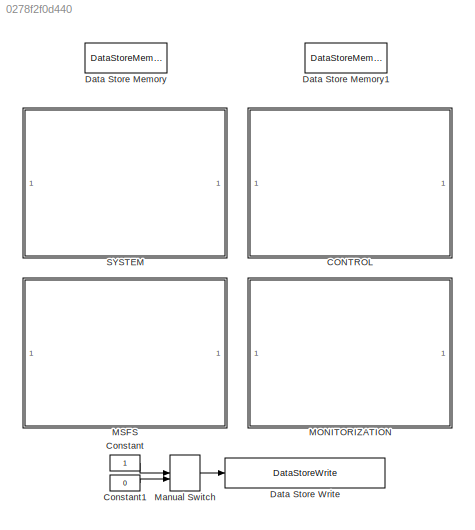
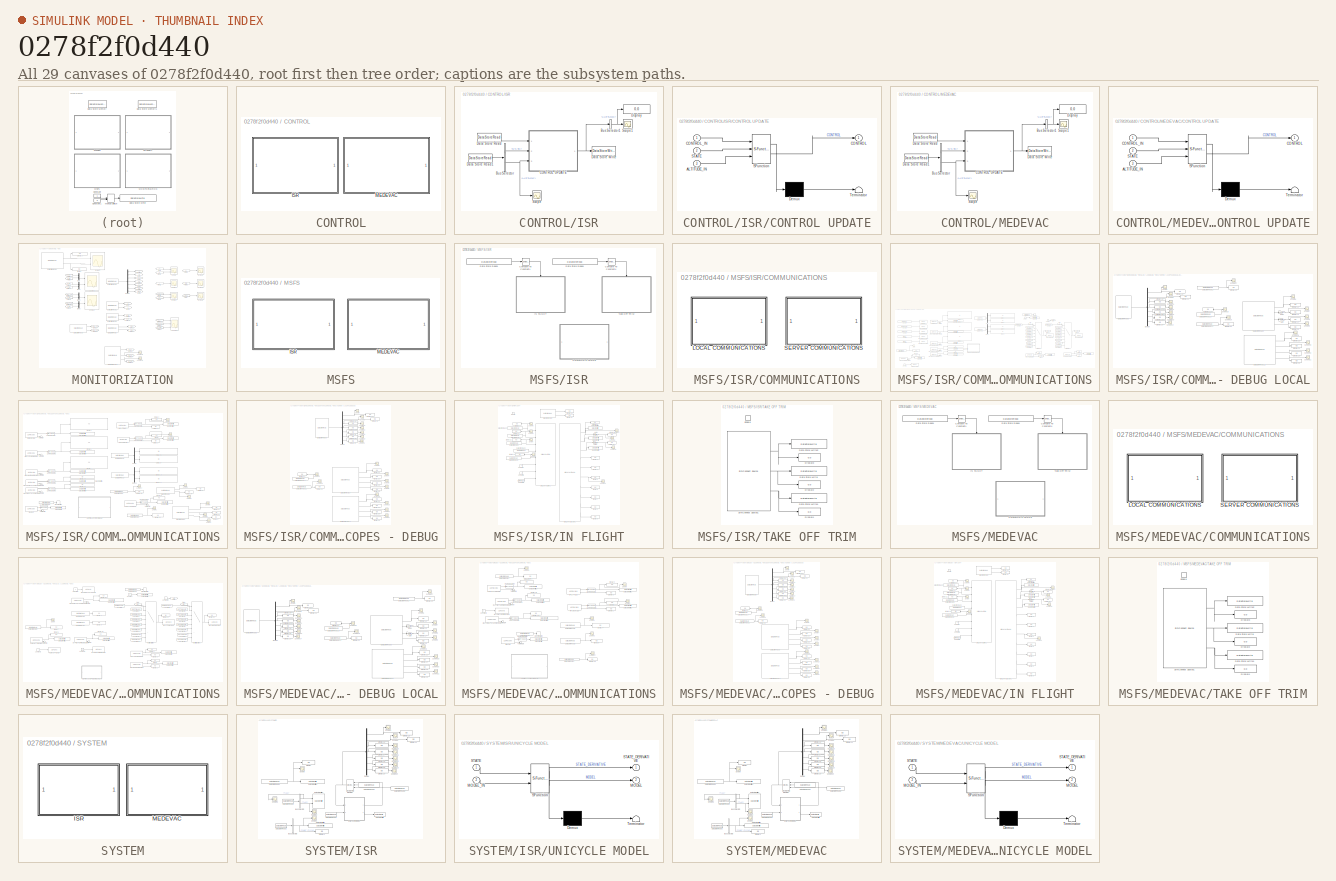
[diagram: thumbnail index - all 29 canvases of the model, root first then tree order]
MODEL slx_0278f2f0d440
KIND model
CONFIG AbsTol = auto
CONFIG EnableMultiTasking = off
CONFIG FixedStep = 0.03
CONFIG MaxStep = auto
CONFIG MinStep = auto
CONFIG RelTol = 1e-3
CONFIG SampleTimeConstraint = Unconstrained
CONFIG SolverName = FixedStepAuto
CONFIG StartTime = 0.0
CONFIG StopTime = 2000
BLOCK [SubSystem] CONTROL
  Ports = []
  RequestExecContextInheritance = off
BLOCK [SubSystem] CONTROL/ISR
  Ports = []
  RequestExecContextInheritance = off
BLOCK [BusSelector] CONTROL/ISR/Bus Selector
  OutputSignals = STATE,INPUT.ALTITUDE
  Ports = [1, 2]
BLOCK [BusSelector] CONTROL/ISR/Bus Selector1
  OutputSignals = PARAM.ALTITUDE
  Ports = [1, 1]
BLOCK [SubSystem] CONTROL/ISR/CONTROL UPDATE
  ErrorFcn = Stateflow.Translate.translate
  PermitHierarchicalResolution = ExplicitOnly
  Ports = [3, 1]
  RequestExecContextInheritance = off
  SFBlockType = MATLAB Function
  TreatAsAtomicUnit = on
BLOCK [Demux] CONTROL/ISR/CONTROL UPDATE/ Demux 
  Outputs = 1
  Ports = [1, 1]
BLOCK [S-Function] CONTROL/ISR/CONTROL UPDATE/ SFunction 
  EnableBusSupport = on
  FunctionName = sf_sfun
  PortCounts = [3 2]
  Ports = [3, 2]
  SFcnIsStateOwnerBlock = off
  SFunctionDeploymentMode = off
  Tag = Stateflow S-Function 1
BLOCK [Terminator] CONTROL/ISR/CONTROL UPDATE/ Terminator 
BLOCK [Inport] CONTROL/ISR/CONTROL UPDATE/ALTITUDE_IN
  Port = 3
BLOCK [Outport] CONTROL/ISR/CONTROL UPDATE/CONTROL
BLOCK [Inport] CONTROL/ISR/CONTROL UPDATE/CONTROL_IN
BLOCK [Inport] CONTROL/ISR/CONTROL UPDATE/STATE
  Port = 2
BLOCK [DataStoreRead] CONTROL/ISR/Data Store Read
  DataStoreName = CONTROL
  IndexOptions = Index vector (dialog)
  Indices = 1
  OutputSizes = 1
  Ports = [0, 1]
  SampleTime = MODEL_INI.PARAM.SIM_SAMPLING_TIME
BLOCK [DataStoreRead] CONTROL/ISR/Data Store Read1
  DataStoreName = MODEL
  IndexOptions = Index vector (dialog)
  Indices = 1
  OutputSizes = 1
  Ports = [0, 1]
  SampleTime = MODEL_INI.PARAM.SIM_SAMPLING_TIME
BLOCK [DataStoreWrite] CONTROL/ISR/Data Store Write
  DataStoreName = CONTROL
  IndexOptions = Index vector (dialog)
  Indices = 1
  OutputSizes = 1
  Ports = [1]
BLOCK [Display] CONTROL/ISR/Display
  Decimation = 1
  Ports = [1]
BLOCK [Scope] CONTROL/ISR/Scope
  Floating = off
  NumInputPorts = 1
  Ports = [1]
  ScopeSpecificationString = Simulink.scopes.TimeScopeBlockCfg('CurrentConfiguration', extmgr.ConfigurationSet(extmgr.Configuration('Core','General UI',true),extmgr.Configuration('Core','Source UI',true),extmgr.Configuration('Sources','WiredSimulink',true,'DataLoggingVariableName','ScopeData13'),extmgr.Configuration('Visuals','Time Domain',true,'SerializedDisplays',{struct('MinYLimReal','-187.5','MaxYLimReal','1687.5','YLabel...<+1437ch>
BLOCK [Scope] CONTROL/ISR/Scope1
  Floating = off
  NumInputPorts = 1
  Ports = [1]
  ScopeSpecificationString = Simulink.scopes.TimeScopeBlockCfg('CurrentConfiguration', extmgr.ConfigurationSet(extmgr.Configuration('Core','General UI',true),extmgr.Configuration('Core','Source UI',true),extmgr.Configuration('Sources','WiredSimulink',true,'DataLoggingVariableName','ScopeData14'),extmgr.Configuration('Visuals','Time Domain',true,'SerializedDisplays',{struct('MinYLimReal','-187.5','MaxYLimReal','1687.5','YLabel...<+1437ch>
BLOCK [SubSystem] CONTROL/MEDEVAC
  Commented = on
  Ports = []
  RequestExecContextInheritance = off
BLOCK [BusSelector] CONTROL/MEDEVAC/Bus Selector
  OutputSignals = STATE,INPUT.ALTITUDE
  Ports = [1, 2]
BLOCK [BusSelector] CONTROL/MEDEVAC/Bus Selector1
  OutputSignals = PARAM.ALTITUDE
  Ports = [1, 1]
BLOCK [SubSystem] CONTROL/MEDEVAC/CONTROL UPDATE
  ErrorFcn = Stateflow.Translate.translate
  PermitHierarchicalResolution = ExplicitOnly
  Ports = [3, 1]
  RequestExecContextInheritance = off
  SFBlockType = MATLAB Function
  TreatAsAtomicUnit = on
BLOCK [Demux] CONTROL/MEDEVAC/CONTROL UPDATE/ Demux 
  Outputs = 1
  Ports = [1, 1]
BLOCK [S-Function] CONTROL/MEDEVAC/CONTROL UPDATE/ SFunction 
  EnableBusSupport = on
  FunctionName = sf_sfun
  PortCounts = [3 2]
  Ports = [3, 2]
  SFcnIsStateOwnerBlock = off
  SFunctionDeploymentMode = off
  Tag = Stateflow S-Function 4
BLOCK [Terminator] CONTROL/MEDEVAC/CONTROL UPDATE/ Terminator 
BLOCK [Inport] CONTROL/MEDEVAC/CONTROL UPDATE/ALTITUDE_IN
  Port = 3
BLOCK [Outport] CONTROL/MEDEVAC/CONTROL UPDATE/CONTROL
BLOCK [Inport] CONTROL/MEDEVAC/CONTROL UPDATE/CONTROL_IN
BLOCK [Inport] CONTROL/MEDEVAC/CONTROL UPDATE/STATE
  Port = 2
BLOCK [DataStoreRead] CONTROL/MEDEVAC/Data Store Read
  DataStoreName = CONTROL
  IndexOptions = Index vector (dialog)
  Indices = 1
  OutputSizes = 1
  Ports = [0, 1]
  SampleTime = MODEL_INI.PARAM.SIM_SAMPLING_TIME
BLOCK [DataStoreRead] CONTROL/MEDEVAC/Data Store Read1
  DataStoreName = MODEL
  IndexOptions = Index vector (dialog)
  Indices = 1
  OutputSizes = 1
  Ports = [0, 1]
  SampleTime = MODEL_INI.PARAM.SIM_SAMPLING_TIME
BLOCK [DataStoreWrite] CONTROL/MEDEVAC/Data Store Write
  DataStoreName = CONTROL
  IndexOptions = Index vector (dialog)
  Indices = 1
  OutputSizes = 1
  Ports = [1]
BLOCK [Display] CONTROL/MEDEVAC/Display
  Decimation = 1
  Ports = [1]
BLOCK [Scope] CONTROL/MEDEVAC/Scope
  Floating = off
  NumInputPorts = 1
  Ports = [1]
  ScopeSpecificationString = Simulink.scopes.TimeScopeBlockCfg('CurrentConfiguration', extmgr.ConfigurationSet(extmgr.Configuration('Core','General UI',true),extmgr.Configuration('Core','Source UI',true),extmgr.Configuration('Sources','WiredSimulink',true,'DataLoggingVariableName','ScopeData13'),extmgr.Configuration('Visuals','Time Domain',true,'SerializedDisplays',{struct('MinYLimReal','-187.5','MaxYLimReal','1687.5','YLabel...<+1437ch>
BLOCK [Scope] CONTROL/MEDEVAC/Scope1
  Floating = off
  NumInputPorts = 1
  Ports = [1]
  ScopeSpecificationString = Simulink.scopes.TimeScopeBlockCfg('CurrentConfiguration', extmgr.ConfigurationSet(extmgr.Configuration('Core','General UI',true),extmgr.Configuration('Core','Source UI',true),extmgr.Configuration('Sources','WiredSimulink',true,'DataLoggingVariableName','ScopeData14'),extmgr.Configuration('Visuals','Time Domain',true,'SerializedDisplays',{struct('MinYLimReal','-187.5','MaxYLimReal','1687.5','YLabel...<+1437ch>
BLOCK [Constant] Constant
  SampleTime = -1
BLOCK [Constant] Constant1
  SampleTime = -1
  Value = 0
BLOCK [DataStoreMemory] Data Store Memory
  DataStoreName = MODEL
  InitialValue = MODEL_INI
  OutDataTypeStr = Bus: MODEL_Bus
  ReadBeforeWriteMsg = warning
  ShowAdditionalParam = off
  WriteAfterReadMsg = warning
  WriteAfterWriteMsg = warning
BLOCK [DataStoreMemory] Data Store Memory1
  DataStoreName = CONTROL
  InitialValue = CONTROL_INI
  OutDataTypeStr = Bus: CONTROL_Bus
  ReadBeforeWriteMsg = warning
  ShowAdditionalParam = off
  WriteAfterReadMsg = warning
  WriteAfterWriteMsg = warning
BLOCK [DataStoreWrite] Data Store Write
  DataStoreElements = MODEL.PARAM.RESET_POS
  DataStoreName = MODEL
  IndexOptions = Index vector (dialog)
  Indices = 1
  OutputSizes = 1
  Ports = [1]
BLOCK [SubSystem] MONITORIZATION
  Ports = []
  RequestExecContextInheritance = off
BLOCK [DataStoreRead] MONITORIZATION/Data Store Read
  DataStoreElements = CONTROL.OUTPUT.TAU1#CONTROL.OUTPUT.TAU2
  DataStoreName = CONTROL
  IndexOptions = Index vector (dialog)
  Indices = 1
  OutputSizes = 1
  Ports = [0, 2]
BLOCK [DataStoreRead] MONITORIZATION/Data Store Read1
  DataStoreElements = MODEL.OUTPUT.X#MODEL.OUTPUT.Y
  DataStoreName = MODEL
  IndexOptions = Index vector (dialog)
  Indices = 1
  OutputSizes = 1
  Ports = [0, 2]
  SampleTime = MODEL_INI.PARAM.SIM_SAMPLING_TIME
BLOCK [DataStoreRead] MONITORIZATION/Data Store Read2
  DataStoreElements = MODEL.STATE(:,:)
  DataStoreName = MODEL
  IndexOptions = Index vector (dialog)
  Indices = 1
  OutputSizes = 1
  Ports = [0, 1]
  SampleTime = MODEL_INI.PARAM.SIM_SAMPLING_TIME
BLOCK [DataStoreRead] MONITORIZATION/Data Store Read3
  DataStoreElements = MODEL.INPUT.TAU1#MODEL.INPUT.TAU2
  DataStoreName = MODEL
  IndexOptions = Index vector (dialog)
  Indices = 1
  OutputSizes = 1
  Ports = [0, 2]
  SampleTime = MODEL_INI.PARAM.SIM_SAMPLING_TIME
BLOCK [DataStoreRead] MONITORIZATION/Data Store Read4
  DataStoreElements = CONTROL.OUTPUT.UA#CONTROL.OUTPUT.UALPHA
  DataStoreName = CONTROL
  IndexOptions = Index vector (dialog)
  Indices = 1
  OutputSizes = 1
  Ports = [0, 2]
BLOCK [DataStoreRead] MONITORIZATION/Data Store Read5
  DataStoreElements = MODEL.INPUT.ALTITUDE#MODEL.INPUT.LATITUDE#MODEL.INPUT.LONGITUDE
  DataStoreName = MODEL
  IndexOptions = Index vector (dialog)
  Indices = 1
  OutputSizes = 1
  Ports = [0, 3]
  SampleTime = MODEL_INI.PARAM.SIM_SAMPLING_TIME
BLOCK [DataStoreRead] MONITORIZATION/Data Store Read6
  DataStoreElements = CONTROL.OUTPUT.TAU1_NOM#CONTROL.OUTPUT.TAU2_NOM
  DataStoreName = CONTROL
  IndexOptions = Index vector (dialog)
  Indices = 1
  OutputSizes = 1
  Ports = [0, 2]
BLOCK [Demux] MONITORIZATION/Demux
  Outputs = 7
  Ports = [1, 7]
BLOCK [Display] MONITORIZATION/Display
  Decimation = 1
  Format = long
  Ports = [1]
BLOCK [Display] MONITORIZATION/Display1
  Decimation = 1
  Format = long
  Ports = [1]
BLOCK [From] MONITORIZATION/From
  GotoTag = y1
BLOCK [From] MONITORIZATION/From1
  GotoTag = y2
BLOCK [From] MONITORIZATION/From10
  GotoTag = M_tau2
BLOCK [From] MONITORIZATION/From11
  GotoTag = C_tau2
BLOCK [From] MONITORIZATION/From14
  GotoTag = M_ALT
BLOCK [From] MONITORIZATION/From15
  GotoTag = M_LAT
BLOCK [From] MONITORIZATION/From16
  GotoTag = M_LONG
BLOCK [From] MONITORIZATION/From17
  GotoTag = C_tau1_nom
BLOCK [From] MONITORIZATION/From18
  GotoTag = C_tau2_nom
BLOCK [From] MONITORIZATION/From19
  GotoTag = C_tau1
BLOCK [From] MONITORIZATION/From2
  GotoTag = Y
BLOCK [From] MONITORIZATION/From20
  GotoTag = C_tau2
BLOCK [From] MONITORIZATION/From3
  GotoTag = vy1
BLOCK [From] MONITORIZATION/From4
  GotoTag = vy2
BLOCK [From] MONITORIZATION/From5
  GotoTag = s
BLOCK [From] MONITORIZATION/From6
  GotoTag = theta
BLOCK [From] MONITORIZATION/From7
  GotoTag = omega
BLOCK [From] MONITORIZATION/From8
  GotoTag = M_tau1
BLOCK [From] MONITORIZATION/From9
  GotoTag = C_tau1
BLOCK [Goto] MONITORIZATION/Goto
  GotoTag = y1
BLOCK [Goto] MONITORIZATION/Goto1
  GotoTag = y2
BLOCK [Goto] MONITORIZATION/Goto10
  GotoTag = M_tau2
BLOCK [Goto] MONITORIZATION/Goto11
  GotoTag = C_tau2
BLOCK [Goto] MONITORIZATION/Goto12
  GotoTag = C_tau1
BLOCK [Goto] MONITORIZATION/Goto15
  GotoTag = M_ALT
BLOCK [Goto] MONITORIZATION/Goto16
  GotoTag = M_LAT
BLOCK [Goto] MONITORIZATION/Goto17
  GotoTag = M_LONG
BLOCK [Goto] MONITORIZATION/Goto18
  GotoTag = C_tau2_nom
BLOCK [Goto] MONITORIZATION/Goto19
  GotoTag = C_tau1_nom
BLOCK [Goto] MONITORIZATION/Goto2
  GotoTag = vy1
BLOCK [Goto] MONITORIZATION/Goto3
  GotoTag = vy2
BLOCK [Goto] MONITORIZATION/Goto4
  GotoTag = s
BLOCK [Goto] MONITORIZATION/Goto5
  GotoTag = theta
BLOCK [Goto] MONITORIZATION/Goto6
  GotoTag = omega
BLOCK [Goto] MONITORIZATION/Goto7
  GotoTag = X
BLOCK [Goto] MONITORIZATION/Goto8
  GotoTag = Y
BLOCK [Goto] MONITORIZATION/Goto9
  GotoTag = M_tau1
BLOCK [Mux] MONITORIZATION/Mux
  DisplayOption = bar
  Inputs = 2
  Ports = [2, 1]
BLOCK [Mux] MONITORIZATION/Mux1
  DisplayOption = bar
  Inputs = 2
  Ports = [2, 1]
BLOCK [Mux] MONITORIZATION/Mux2
  DisplayOption = bar
  Inputs = 2
  Ports = [2, 1]
BLOCK [Mux] MONITORIZATION/Mux3
  DisplayOption = bar
  Inputs = 2
  Ports = [2, 1]
BLOCK [Scope] MONITORIZATION/Scope
  Floating = off
  NumInputPorts = 2
  Ports = [2]
  ScopeSpecificationString = Simulink.scopes.TimeScopeBlockCfg('CurrentConfiguration', extmgr.ConfigurationSet(extmgr.Configuration('Core','General UI',true),extmgr.Configuration('Core','Source UI',true),extmgr.Configuration('Sources','WiredSimulink',true,'DataLoggingVariableName','DISP_COORDINATES','DataLogging',true,'DataLoggingSaveFormat','Structure'),extmgr.Configuration('Visuals','Time Domain',true,'SerializedDisplays',{...<+2137ch>
BLOCK [Scope] MONITORIZATION/Scope1
  Floating = off
  NumInputPorts = 1
  Ports = [1]
  ScopeSpecificationString = Simulink.scopes.TimeScopeBlockCfg('CurrentConfiguration', extmgr.ConfigurationSet(extmgr.Configuration('Core','General UI',true),extmgr.Configuration('Core','Source UI',true),extmgr.Configuration('Sources','WiredSimulink',true,'DataLoggingVariableName','DISP_OUTPUT','DataLogging',true,'DataLoggingSaveFormat','Structure'),extmgr.Configuration('Visuals','Time Domain',true,'SerializedDisplays',{struc...<+1606ch>
BLOCK [Scope] MONITORIZATION/Scope18
  Floating = off
  NumInputPorts = 1
  Ports = [1]
  ScopeSpecificationString = Simulink.scopes.TimeScopeBlockCfg('CurrentConfiguration', extmgr.ConfigurationSet(extmgr.Configuration('Core','General UI',true),extmgr.Configuration('Core','Source UI',true),extmgr.Configuration('Sources','WiredSimulink',true,'DataLoggingVariableName','LAT_DATA','DataLogging',true,'DataLoggingSaveFormat','Structure'),extmgr.Configuration('Visuals','Time Domain',true,'SerializedDisplays',{struct('...<+1497ch>
BLOCK [Scope] MONITORIZATION/Scope19
  Floating = off
  NumInputPorts = 1
  Ports = [1]
  ScopeSpecificationString = Simulink.scopes.TimeScopeBlockCfg('CurrentConfiguration', extmgr.ConfigurationSet(extmgr.Configuration('Core','General UI',true),extmgr.Configuration('Core','Source UI',true),extmgr.Configuration('Sources','WiredSimulink',true,'DataLoggingVariableName','LONG_DATA','DataLogging',true,'DataLoggingSaveFormat','Structure'),extmgr.Configuration('Visuals','Time Domain',true,'SerializedDisplays',{struct(...<+1507ch>
BLOCK [Scope] MONITORIZATION/Scope2
  Floating = off
  NumInputPorts = 2
  Ports = [2]
  ScopeSpecificationString = Simulink.scopes.TimeScopeBlockCfg('CurrentConfiguration', extmgr.ConfigurationSet(extmgr.Configuration('Core','General UI',true),extmgr.Configuration('Core','Source UI',true),extmgr.Configuration('Sources','WiredSimulink',true,'DataLoggingVariableName','ScopeData1','DataLoggingSaveFormat','Structure'),extmgr.Configuration('Visuals','Time Domain',true,'SerializedDisplays',{struct('MinYLimReal','-37...<+2067ch>
BLOCK [Scope] MONITORIZATION/Scope3
  Floating = off
  NumInputPorts = 1
  Ports = [1]
  ScopeSpecificationString = Simulink.scopes.TimeScopeBlockCfg('CurrentConfiguration', extmgr.ConfigurationSet(extmgr.Configuration('Core','General UI',true),extmgr.Configuration('Core','Source UI',true),extmgr.Configuration('Sources','WiredSimulink',true,'DataLoggingVariableName','ScopeData2','DataLoggingSaveFormat','Structure'),extmgr.Configuration('Visuals','Time Domain',true,'SerializedDisplays',{struct('MinYLimReal','-50...<+3705ch>
BLOCK [Scope] MONITORIZATION/Scope4
  Floating = off
  NumInputPorts = 1
  Ports = [1]
  ScopeSpecificationString = Simulink.scopes.TimeScopeBlockCfg('CurrentConfiguration', extmgr.ConfigurationSet(extmgr.Configuration('Core','General UI',true),extmgr.Configuration('Core','Source UI',true),extmgr.Configuration('Sources','WiredSimulink',true,'DataLoggingVariableName','ScopeData3','DataLoggingSaveFormat','Structure'),extmgr.Configuration('Visuals','Time Domain',true,'SerializedDisplays',{struct('MinYLimReal','-57...<+2841ch>
BLOCK [Scope] MONITORIZATION/Scope5
  Floating = off
  NumInputPorts = 1
  Ports = [1]
  ScopeSpecificationString = Simulink.scopes.TimeScopeBlockCfg('CurrentConfiguration', extmgr.ConfigurationSet(extmgr.Configuration('Core','General UI',true),extmgr.Configuration('Core','Source UI',true),extmgr.Configuration('Sources','WiredSimulink',true,'DataLoggingVariableName','ScopeData4','DataLoggingSaveFormat','Structure'),extmgr.Configuration('Visuals','Time Domain',true,'SerializedDisplays',{struct('MinYLimReal','-18...<+2855ch>
BLOCK [Scope] MONITORIZATION/Scope6
  Floating = off
  NumInputPorts = 2
  Ports = [2]
  ScopeSpecificationString = Simulink.scopes.TimeScopeBlockCfg('CurrentConfiguration', extmgr.ConfigurationSet(extmgr.Configuration('Core','General UI',true),extmgr.Configuration('Core','Source UI',true),extmgr.Configuration('Sources','WiredSimulink',true,'DataLoggingVariableName','INPUT','DataLogging',true,'DataLoggingSaveFormat','Structure'),extmgr.Configuration('Visuals','Time Domain',true,'SerializedDisplays',{struct('Min...<+2137ch>
BLOCK [Scope] MONITORIZATION/Scope7
  Floating = off
  NumInputPorts = 2
  Ports = [2]
  ScopeSpecificationString = Simulink.scopes.TimeScopeBlockCfg('CurrentConfiguration', extmgr.ConfigurationSet(extmgr.Configuration('Core','General UI',true),extmgr.Configuration('Core','Source UI',true),extmgr.Configuration('Sources','WiredSimulink',true,'DataLoggingVariableName','ScopeData1','DataLoggingSaveFormat','Structure'),extmgr.Configuration('Visuals','Time Domain',true,'SerializedDisplays',{struct('MinYLimReal','163...<+3350ch>
BLOCK [Scope] MONITORIZATION/Scope8
  Floating = off
  NumInputPorts = 3
  Ports = [3]
  ScopeSpecificationString = Simulink.scopes.TimeScopeBlockCfg('CurrentConfiguration', extmgr.ConfigurationSet(extmgr.Configuration('Core','General UI',true),extmgr.Configuration('Core','Source UI',true),extmgr.Configuration('Sources','WiredSimulink',true,'DataLoggingVariableName','ScopeData2','DataLoggingSaveFormat','Structure'),extmgr.Configuration('Visuals','Time Domain',true,'SerializedDisplays',{struct('MinYLimReal','-18...<+2788ch>
BLOCK [Scope] MONITORIZATION/Scope9
  Floating = off
  NumInputPorts = 2
  Ports = [2]
  ScopeSpecificationString = Simulink.scopes.TimeScopeBlockCfg('CurrentConfiguration', extmgr.ConfigurationSet(extmgr.Configuration('Core','General UI',true),extmgr.Configuration('Core','Source UI',true),extmgr.Configuration('Sources','WiredSimulink',true,'DataLoggingVariableName','ScopeData1','DataLogging',true,'DataLoggingSaveFormat','Structure'),extmgr.Configuration('Visuals','Time Domain',true,'SerializedDisplays',{struct...<+2171ch>
BLOCK [SubSystem] MSFS
  Ports = []
  RequestExecContextInheritance = off
BLOCK [SubSystem] MSFS/ISR
  Ports = []
  RequestExecContextInheritance = off
BLOCK [SubSystem] MSFS/ISR/COMMUNICATIONS
  Ports = []
  RequestExecContextInheritance = off
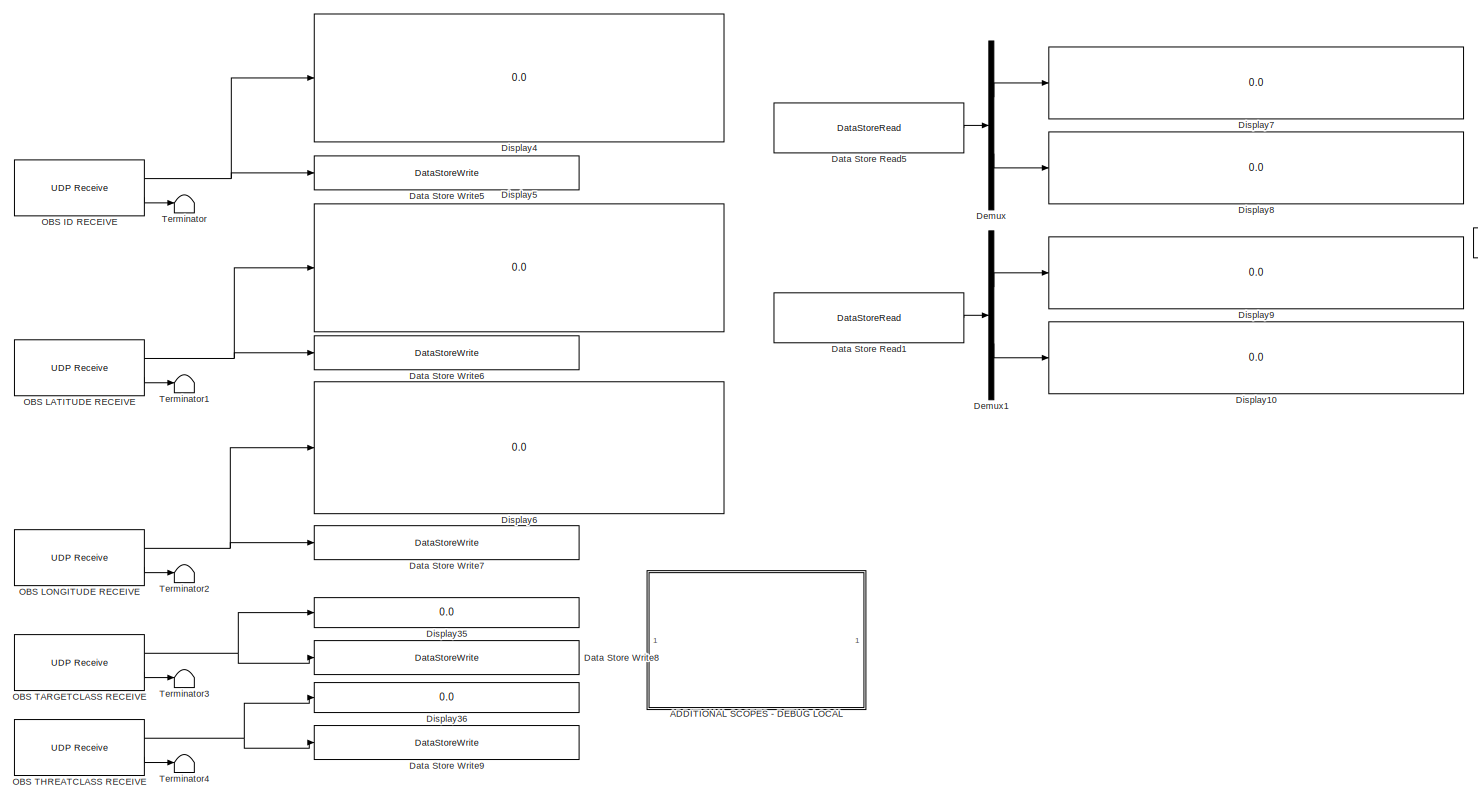
[diagram: MSFS/ISR/COMMUNICATIONS/LOCAL COMMUNICATIONS - part 1/3, center side, full height]
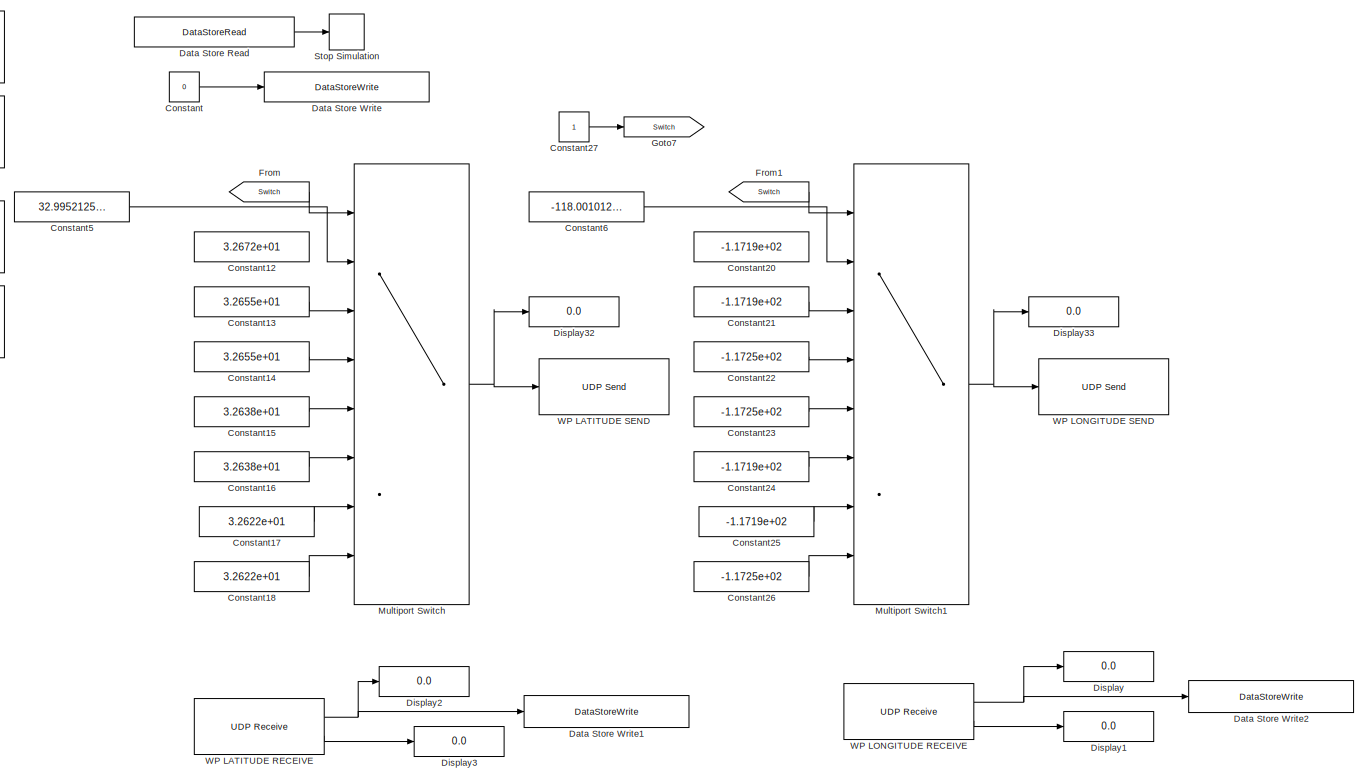
[diagram: MSFS/ISR/COMMUNICATIONS/LOCAL COMMUNICATIONS - part 2/3, right side, full height]
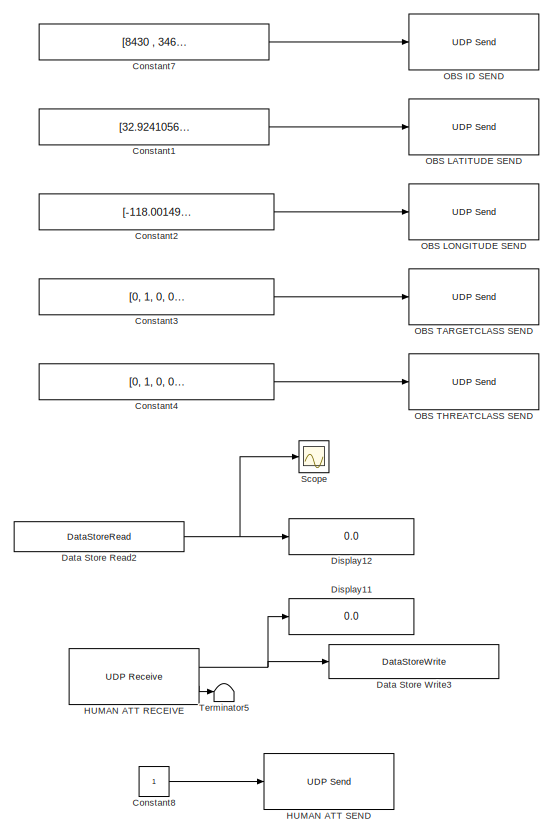
[diagram: MSFS/ISR/COMMUNICATIONS/LOCAL COMMUNICATIONS - part 3/3, left side, full height]
BLOCK [SubSystem] MSFS/ISR/COMMUNICATIONS/LOCAL COMMUNICATIONS
  Commented = on
  Ports = []
  RequestExecContextInheritance = off
BLOCK [SubSystem] MSFS/ISR/COMMUNICATIONS/LOCAL COMMUNICATIONS/ADDITIONAL SCOPES - DEBUG LOCAL
  Ports = []
  RequestExecContextInheritance = off
BLOCK [DataStoreRead] MSFS/ISR/COMMUNICATIONS/LOCAL COMMUNICATIONS/ADDITIONAL SCOPES - DEBUG LOCAL/Data Store Read10
  DataStoreElements = MODEL.OUTPUT.ALTITUDE
  DataStoreName = MODEL
  IndexOptions = Index vector (dialog)
  Indices = 1
  OutputSizes = 1
  Ports = [0, 1]
BLOCK [DataStoreRead] MSFS/ISR/COMMUNICATIONS/LOCAL COMMUNICATIONS/ADDITIONAL SCOPES - DEBUG LOCAL/Data Store Read11
  DataStoreElements = CONTROL.PARAM.ALTITUDE
  DataStoreName = CONTROL
  IndexOptions = Index vector (dialog)
  Indices = 1
  OutputSizes = 1
  Ports = [0, 1]
BLOCK [DataStoreRead] MSFS/ISR/COMMUNICATIONS/LOCAL COMMUNICATIONS/ADDITIONAL SCOPES - DEBUG LOCAL/Data Store Read12
  DataStoreElements = MODEL.OUTPUT.ALTITUDE#MODEL.OUTPUT.LATITUDE#MODEL.OUTPUT.LONGITUDE#MODEL.PARAM.FLIGHT_STATUS
  DataStoreName = MODEL
  IndexOptions = Index vector (dialog)
  Indices = 1
  OutputSizes = 1
  Ports = [0, 4]
BLOCK [DataStoreRead] MSFS/ISR/COMMUNICATIONS/LOCAL COMMUNICATIONS/ADDITIONAL SCOPES - DEBUG LOCAL/Data Store Read2
  DataStoreElements = CONTROL.PARAM.FLIGHT_STATUS
  DataStoreName = CONTROL
  IndexOptions = Index vector (dialog)
  Indices = 1
  OutputSizes = 1
  Ports = [0, 1]
BLOCK [DataStoreRead] MSFS/ISR/COMMUNICATIONS/LOCAL COMMUNICATIONS/ADDITIONAL SCOPES - DEBUG LOCAL/Data Store Read8
  DataStoreElements = MODEL.STATE(:,:)
  DataStoreName = MODEL
  IndexOptions = Index vector (dialog)
  Indices = 1
  OutputSizes = 1
  Ports = [0, 1]
  SampleTime = MODEL_INI.PARAM.SIM_SAMPLING_TIME
BLOCK [DataStoreRead] MSFS/ISR/COMMUNICATIONS/LOCAL COMMUNICATIONS/ADDITIONAL SCOPES - DEBUG LOCAL/Data Store Read9
  DataStoreElements = MODEL.INPUT.ALTITUDE#MODEL.INPUT.LATITUDE#MODEL.INPUT.LONGITUDE#MODEL.PARAM.FLIGHT_STATUS
  DataStoreName = MODEL
  IndexOptions = Index vector (dialog)
  Indices = 1
  OutputSizes = 1
  Ports = [0, 4]
BLOCK [Demux] MSFS/ISR/COMMUNICATIONS/LOCAL COMMUNICATIONS/ADDITIONAL SCOPES - DEBUG LOCAL/Demux
  Outputs = 7
  Ports = [1, 7]
BLOCK [Display] MSFS/ISR/COMMUNICATIONS/LOCAL COMMUNICATIONS/ADDITIONAL SCOPES - DEBUG LOCAL/Display10
  Decimation = 1
  Format = long
  Ports = [1]
BLOCK [Display] MSFS/ISR/COMMUNICATIONS/LOCAL COMMUNICATIONS/ADDITIONAL SCOPES - DEBUG LOCAL/Display11
  Decimation = 1
  Format = long
  Ports = [1]
BLOCK [Display] MSFS/ISR/COMMUNICATIONS/LOCAL COMMUNICATIONS/ADDITIONAL SCOPES - DEBUG LOCAL/Display12
  Decimation = 1
  Ports = [1]
BLOCK [Display] MSFS/ISR/COMMUNICATIONS/LOCAL COMMUNICATIONS/ADDITIONAL SCOPES - DEBUG LOCAL/Display13
  Decimation = 1
  Format = long
  Ports = [1]
BLOCK [Display] MSFS/ISR/COMMUNICATIONS/LOCAL COMMUNICATIONS/ADDITIONAL SCOPES - DEBUG LOCAL/Display14
  Decimation = 1
  Format = long
  Ports = [1]
BLOCK [Display] MSFS/ISR/COMMUNICATIONS/LOCAL COMMUNICATIONS/ADDITIONAL SCOPES - DEBUG LOCAL/Display15
  Decimation = 1
  Ports = [1]
BLOCK [Display] MSFS/ISR/COMMUNICATIONS/LOCAL COMMUNICATIONS/ADDITIONAL SCOPES - DEBUG LOCAL/Display16
  Decimation = 1
  Ports = [1]
BLOCK [Display] MSFS/ISR/COMMUNICATIONS/LOCAL COMMUNICATIONS/ADDITIONAL SCOPES - DEBUG LOCAL/Display17
  Decimation = 1
  Ports = [1]
BLOCK [Display] MSFS/ISR/COMMUNICATIONS/LOCAL COMMUNICATIONS/ADDITIONAL SCOPES - DEBUG LOCAL/Display18
  Decimation = 1
  Ports = [1]
BLOCK [Display] MSFS/ISR/COMMUNICATIONS/LOCAL COMMUNICATIONS/ADDITIONAL SCOPES - DEBUG LOCAL/Display19
  Decimation = 1
  Ports = [1]
BLOCK [Display] MSFS/ISR/COMMUNICATIONS/LOCAL COMMUNICATIONS/ADDITIONAL SCOPES - DEBUG LOCAL/Display20
  Decimation = 1
  Ports = [1]
BLOCK [Display] MSFS/ISR/COMMUNICATIONS/LOCAL COMMUNICATIONS/ADDITIONAL SCOPES - DEBUG LOCAL/Display21
  Decimation = 1
  Ports = [1]
BLOCK [Display] MSFS/ISR/COMMUNICATIONS/LOCAL COMMUNICATIONS/ADDITIONAL SCOPES - DEBUG LOCAL/Display22
  Decimation = 1
  Ports = [1]
BLOCK [Display] MSFS/ISR/COMMUNICATIONS/LOCAL COMMUNICATIONS/ADDITIONAL SCOPES - DEBUG LOCAL/Display23
  Decimation = 1
  Ports = [1]
BLOCK [Display] MSFS/ISR/COMMUNICATIONS/LOCAL COMMUNICATIONS/ADDITIONAL SCOPES - DEBUG LOCAL/Display24
  Decimation = 1
  Ports = [1]
BLOCK [Display] MSFS/ISR/COMMUNICATIONS/LOCAL COMMUNICATIONS/ADDITIONAL SCOPES - DEBUG LOCAL/Display25
  Decimation = 1
  Ports = [1]
BLOCK [Display] MSFS/ISR/COMMUNICATIONS/LOCAL COMMUNICATIONS/ADDITIONAL SCOPES - DEBUG LOCAL/Display26
  Decimation = 1
  Ports = [1]
BLOCK [Display] MSFS/ISR/COMMUNICATIONS/LOCAL COMMUNICATIONS/ADDITIONAL SCOPES - DEBUG LOCAL/Display29
  Decimation = 1
  Ports = [1]
BLOCK [Gain] MSFS/ISR/COMMUNICATIONS/LOCAL COMMUNICATIONS/ADDITIONAL SCOPES - DEBUG LOCAL/Gain
  Gain = 180/pi
BLOCK [Gain] MSFS/ISR/COMMUNICATIONS/LOCAL COMMUNICATIONS/ADDITIONAL SCOPES - DEBUG LOCAL/Gain1
  Gain = 180/pi
BLOCK [Scope] MSFS/ISR/COMMUNICATIONS/LOCAL COMMUNICATIONS/ADDITIONAL SCOPES - DEBUG LOCAL/Scope
  Floating = off
  NumInputPorts = 1
  Ports = [1]
  ScopeSpecificationString = Simulink.scopes.TimeScopeBlockCfg('CurrentConfiguration', extmgr.ConfigurationSet(extmgr.Configuration('Core','General UI',true),extmgr.Configuration('Core','Source UI',true),extmgr.Configuration('Sources','WiredSimulink',true,'DataLoggingVariableName','ScopeData1'),extmgr.Configuration('Visuals','Time Domain',true,'SerializedDisplays',{struct('MinYLimReal','-11872610.44536','MaxYLimReal','2454529...<+1493ch>
BLOCK [Scope] MSFS/ISR/COMMUNICATIONS/LOCAL COMMUNICATIONS/ADDITIONAL SCOPES - DEBUG LOCAL/Scope10
  Floating = off
  NumInputPorts = 1
  Ports = [1]
  ScopeSpecificationString = Simulink.scopes.TimeScopeBlockCfg('CurrentConfiguration', extmgr.ConfigurationSet(extmgr.Configuration('Core','General UI',true),extmgr.Configuration('Core','Source UI',true),extmgr.Configuration('Sources','WiredSimulink',true,'DataLoggingVariableName','ScopeData5'),extmgr.Configuration('Visuals','Time Domain',true,'SerializedDisplays',{struct('MinYLimReal','-17.83255','MaxYLimReal','1.98139','YLa...<+1443ch>
BLOCK [Scope] MSFS/ISR/COMMUNICATIONS/LOCAL COMMUNICATIONS/ADDITIONAL SCOPES - DEBUG LOCAL/Scope11
  Floating = off
  NumInputPorts = 1
  Ports = [1]
  ScopeSpecificationString = Simulink.scopes.TimeScopeBlockCfg('CurrentConfiguration', extmgr.ConfigurationSet(extmgr.Configuration('Core','General UI',true),extmgr.Configuration('Core','Source UI',true),extmgr.Configuration('Sources','WiredSimulink',true,'DataLoggingVariableName','ScopeData6'),extmgr.Configuration('Visuals','Time Domain',true,'SerializedDisplays',{struct('MinYLimReal','-39.55086','MaxYLimReal','4.39454','YLa...<+1414ch>  <repeated x4 — deduplicated; at blocks: Scope11>
BLOCK [Scope] MSFS/ISR/COMMUNICATIONS/LOCAL COMMUNICATIONS/ADDITIONAL SCOPES - DEBUG LOCAL/Scope12
  Floating = off
  NumInputPorts = 1
  Ports = [1]
  ScopeSpecificationString = Simulink.scopes.TimeScopeBlockCfg('CurrentConfiguration', extmgr.ConfigurationSet(extmgr.Configuration('Core','General UI',true),extmgr.Configuration('Core','Source UI',true),extmgr.Configuration('Sources','WiredSimulink',true,'DataLoggingVariableName','ScopeData7'),extmgr.Configuration('Visuals','Time Domain',true,'SerializedDisplays',{struct('MinYLimReal','-50002583680937852004657343516256990906...<+3590ch>  <repeated x4 — deduplicated; at blocks: Scope12>
BLOCK [Scope] MSFS/ISR/COMMUNICATIONS/LOCAL COMMUNICATIONS/ADDITIONAL SCOPES - DEBUG LOCAL/Scope13
  Floating = off
  NumInputPorts = 1
  Ports = [1]
  ScopeSpecificationString = Simulink.scopes.TimeScopeBlockCfg('CurrentConfiguration', extmgr.ConfigurationSet(extmgr.Configuration('Core','General UI',true),extmgr.Configuration('Core','Source UI',true),extmgr.Configuration('Sources','WiredSimulink',true,'DataLoggingVariableName','ScopeData8'),extmgr.Configuration('Visuals','Time Domain',true,'SerializedDisplays',{struct('MinYLimReal','-15647657.00476','MaxYLimReal','-156468...<+1466ch>
BLOCK [Scope] MSFS/ISR/COMMUNICATIONS/LOCAL COMMUNICATIONS/ADDITIONAL SCOPES - DEBUG LOCAL/Scope14
  Floating = off
  NumInputPorts = 1
  Ports = [1]
  ScopeSpecificationString = Simulink.scopes.TimeScopeBlockCfg('CurrentConfiguration', extmgr.ConfigurationSet(extmgr.Configuration('Core','General UI',true),extmgr.Configuration('Core','Source UI',true),extmgr.Configuration('Sources','WiredSimulink',true,'DataLoggingVariableName','ScopeData9'),extmgr.Configuration('Visuals','Time Domain',true,'SerializedDisplays',{struct('MinYLimReal','-15647657.00476','MaxYLimReal','-156468...<+1466ch>
BLOCK [Scope] MSFS/ISR/COMMUNICATIONS/LOCAL COMMUNICATIONS/ADDITIONAL SCOPES - DEBUG LOCAL/Scope15
  Floating = off
  NumInputPorts = 1
  Ports = [1]
  ScopeSpecificationString = Simulink.scopes.TimeScopeBlockCfg('CurrentConfiguration', extmgr.ConfigurationSet(extmgr.Configuration('Core','General UI',true),extmgr.Configuration('Core','Source UI',true),extmgr.Configuration('Sources','WiredSimulink',true,'DataLoggingVariableName','ScopeData10'),extmgr.Configuration('Visuals','Time Domain',true,'SerializedDisplays',{struct('MinYLimReal','-187.5','MaxYLimReal','1687.5','YLabel...<+1396ch>
BLOCK [Scope] MSFS/ISR/COMMUNICATIONS/LOCAL COMMUNICATIONS/ADDITIONAL SCOPES - DEBUG LOCAL/Scope16
  Floating = off
  NumInputPorts = 1
  Ports = [1]
  ScopeSpecificationString = Simulink.scopes.TimeScopeBlockCfg('CurrentConfiguration', extmgr.ConfigurationSet(extmgr.Configuration('Core','General UI',true),extmgr.Configuration('Core','Source UI',true),extmgr.Configuration('Sources','WiredSimulink',true,'DataLoggingVariableName','ScopeData11'),extmgr.Configuration('Visuals','Time Domain',true,'SerializedDisplays',{struct('MinYLimReal','500.00000','MaxYLimReal','2500.00000',...<+1439ch>  <repeated x4 — deduplicated; at blocks: Scope16>
BLOCK [Scope] MSFS/ISR/COMMUNICATIONS/LOCAL COMMUNICATIONS/ADDITIONAL SCOPES - DEBUG LOCAL/Scope17
  Floating = off
  NumInputPorts = 1
  Ports = [1]
  ScopeSpecificationString = Simulink.scopes.TimeScopeBlockCfg('CurrentConfiguration', extmgr.ConfigurationSet(extmgr.Configuration('Core','General UI',true),extmgr.Configuration('Core','Source UI',true),extmgr.Configuration('Sources','WiredSimulink',true,'DataLoggingVariableName','ScopeData2'),extmgr.Configuration('Visuals','Time Domain',true,'SerializedDisplays',{struct('MinYLimReal','-0.25','MaxYLimReal','2.25','YLabelReal...<+1401ch>  <repeated x4 — deduplicated; at blocks: Scope17>
BLOCK [Scope] MSFS/ISR/COMMUNICATIONS/LOCAL COMMUNICATIONS/ADDITIONAL SCOPES - DEBUG LOCAL/Scope18
  Floating = off
  NumInputPorts = 1
  Ports = [1]
  ScopeSpecificationString = Simulink.scopes.TimeScopeBlockCfg('CurrentConfiguration', extmgr.ConfigurationSet(extmgr.Configuration('Core','General UI',true),extmgr.Configuration('Core','Source UI',true),extmgr.Configuration('Sources','WiredSimulink',true,'DataLoggingVariableName','ScopeData25'),extmgr.Configuration('Visuals','Time Domain',true,'SerializedDisplays',{struct('MinYLimReal','-187.5','MaxYLimReal','1687.5','YLabel...<+1417ch>  <repeated x4 — deduplicated; at blocks: Scope18>
BLOCK [Scope] MSFS/ISR/COMMUNICATIONS/LOCAL COMMUNICATIONS/ADDITIONAL SCOPES - DEBUG LOCAL/Scope19
  Floating = off
  NumInputPorts = 1
  Ports = [1]
  ScopeSpecificationString = Simulink.scopes.TimeScopeBlockCfg('CurrentConfiguration', extmgr.ConfigurationSet(extmgr.Configuration('Core','General UI',true),extmgr.Configuration('Core','Source UI',true),extmgr.Configuration('Sources','WiredSimulink',true,'DataLoggingVariableName','ScopeData26'),extmgr.Configuration('Visuals','Time Domain',true,'SerializedDisplays',{struct('MinYLimReal','0.55233','MaxYLimReal','0.58735','YLab...<+1450ch>  <repeated x4 — deduplicated; at blocks: Scope19>
BLOCK [Scope] MSFS/ISR/COMMUNICATIONS/LOCAL COMMUNICATIONS/ADDITIONAL SCOPES - DEBUG LOCAL/Scope20
  Floating = off
  NumInputPorts = 1
  Ports = [1]
  ScopeSpecificationString = Simulink.scopes.TimeScopeBlockCfg('CurrentConfiguration', extmgr.ConfigurationSet(extmgr.Configuration('Core','General UI',true),extmgr.Configuration('Core','Source UI',true),extmgr.Configuration('Sources','WiredSimulink',true,'DataLoggingVariableName','ScopeData27'),extmgr.Configuration('Visuals','Time Domain',true,'SerializedDisplays',{struct('MinYLimReal','-2.83158','MaxYLimReal','5.02346','YLa...<+1423ch>
BLOCK [Scope] MSFS/ISR/COMMUNICATIONS/LOCAL COMMUNICATIONS/ADDITIONAL SCOPES - DEBUG LOCAL/Scope21
  Floating = off
  NumInputPorts = 1
  Ports = [1]
  ScopeSpecificationString = Simulink.scopes.TimeScopeBlockCfg('CurrentConfiguration', extmgr.ConfigurationSet(extmgr.Configuration('Core','General UI',true),extmgr.Configuration('Core','Source UI',true),extmgr.Configuration('Sources','WiredSimulink',true,'DataLoggingVariableName','ScopeData28'),extmgr.Configuration('Visuals','Time Domain',true,'SerializedDisplays',{struct('MinYLimReal','-0.25','MaxYLimReal','2.25','YLabelRea...<+1405ch>
BLOCK [Scope] MSFS/ISR/COMMUNICATIONS/LOCAL COMMUNICATIONS/ADDITIONAL SCOPES - DEBUG LOCAL/Scope5
  Floating = off
  NumInputPorts = 1
  Ports = [1]
  ScopeSpecificationString = Simulink.scopes.TimeScopeBlockCfg('CurrentConfiguration', extmgr.ConfigurationSet(extmgr.Configuration('Core','General UI',true),extmgr.Configuration('Core','Source UI',true),extmgr.Configuration('Sources','WiredSimulink',true,'DataLoggingVariableName','ScopeData2'),extmgr.Configuration('Visuals','Time Domain',true,'SerializedDisplays',{struct('MinYLimReal','-15881155.88024','MaxYLimReal','-150591...<+1493ch>
BLOCK [Scope] MSFS/ISR/COMMUNICATIONS/LOCAL COMMUNICATIONS/ADDITIONAL SCOPES - DEBUG LOCAL/Scope6
  Floating = off
  NumInputPorts = 1
  Ports = [1]
  ScopeSpecificationString = Simulink.scopes.TimeScopeBlockCfg('CurrentConfiguration', extmgr.ConfigurationSet(extmgr.Configuration('Core','General UI',true),extmgr.Configuration('Core','Source UI',true),extmgr.Configuration('Sources','WiredSimulink',true,'DataLoggingVariableName','ScopeData1'),extmgr.Configuration('Visuals','Time Domain',true,'SerializedDisplays',{struct('MinYLimReal','-187.5','MaxYLimReal','1687.5','YLabelR...<+1415ch>  <repeated x4 — deduplicated; at blocks: Scope6>
BLOCK [Scope] MSFS/ISR/COMMUNICATIONS/LOCAL COMMUNICATIONS/ADDITIONAL SCOPES - DEBUG LOCAL/Scope7
  Floating = off
  NumInputPorts = 1
  Ports = [1]
  ScopeSpecificationString = Simulink.scopes.TimeScopeBlockCfg('CurrentConfiguration', extmgr.ConfigurationSet(extmgr.Configuration('Core','General UI',true),extmgr.Configuration('Core','Source UI',true),extmgr.Configuration('Sources','WiredSimulink',true,'DataLoggingVariableName','ScopeData2'),extmgr.Configuration('Visuals','Time Domain',true,'SerializedDisplays',{struct('MinYLimReal','32.95634','MaxYLimReal','33.0227','YLab...<+1440ch>
BLOCK [Scope] MSFS/ISR/COMMUNICATIONS/LOCAL COMMUNICATIONS/ADDITIONAL SCOPES - DEBUG LOCAL/Scope8
  Floating = off
  NumInputPorts = 1
  Ports = [1]
  ScopeSpecificationString = Simulink.scopes.TimeScopeBlockCfg('CurrentConfiguration', extmgr.ConfigurationSet(extmgr.Configuration('Core','General UI',true),extmgr.Configuration('Core','Source UI',true),extmgr.Configuration('Sources','WiredSimulink',true,'DataLoggingVariableName','ScopeData3'),extmgr.Configuration('Visuals','Time Domain',true,'SerializedDisplays',{struct('MinYLimReal','-2.046049469627295','MaxYLimReal','-2.0...<+1503ch>
BLOCK [Scope] MSFS/ISR/COMMUNICATIONS/LOCAL COMMUNICATIONS/ADDITIONAL SCOPES - DEBUG LOCAL/Scope9
  Floating = off
  NumInputPorts = 1
  Ports = [1]
  ScopeSpecificationString = Simulink.scopes.TimeScopeBlockCfg('CurrentConfiguration', extmgr.ConfigurationSet(extmgr.Configuration('Core','General UI',true),extmgr.Configuration('Core','Source UI',true),extmgr.Configuration('Sources','WiredSimulink',true,'DataLoggingVariableName','ScopeData4'),extmgr.Configuration('Visuals','Time Domain',true,'SerializedDisplays',{struct('MinYLimReal','-0.25','MaxYLimReal','2.25','YLabelReal...<+1403ch>
BLOCK [Constant] MSFS/ISR/COMMUNICATIONS/LOCAL COMMUNICATIONS/Constant
  SampleTime = -1
  Value = 0
BLOCK [Constant] MSFS/ISR/COMMUNICATIONS/LOCAL COMMUNICATIONS/Constant1
  SampleTime = -1
  Value = [32.924105688862504, 32.99521259959415, 33.02158942564577, 32.91934321241453, 33.03164479405805, 33.006944746948776, 33.04647050546855, 33.04913481714204, 33.0301654991582, 32.99895800903812, 32.4211, 33.1321, 33.3959, 32.3734, 33.4964, 33.2494, 33.6447, 33.6713, 33.4817, 33.1696]
  VectorParams1D = off
BLOCK [Constant] MSFS/ISR/COMMUNICATIONS/LOCAL COMMUNICATIONS/Constant12
  SampleTime = 0.03
  Value = 3.2672e+01
BLOCK [Constant] MSFS/ISR/COMMUNICATIONS/LOCAL COMMUNICATIONS/Constant13
  SampleTime = 0.03
  Value = 3.2655e+01
BLOCK [Constant] MSFS/ISR/COMMUNICATIONS/LOCAL COMMUNICATIONS/Constant14
  SampleTime = 0.03
  Value = 3.2655e+01
BLOCK [Constant] MSFS/ISR/COMMUNICATIONS/LOCAL COMMUNICATIONS/Constant15
  SampleTime = 0.03
  Value = 3.2638e+01
BLOCK [Constant] MSFS/ISR/COMMUNICATIONS/LOCAL COMMUNICATIONS/Constant16
  SampleTime = 0.03
  Value = 3.2638e+01
BLOCK [Constant] MSFS/ISR/COMMUNICATIONS/LOCAL COMMUNICATIONS/Constant17
  SampleTime = 0.03
  Value = 3.2622e+01
BLOCK [Constant] MSFS/ISR/COMMUNICATIONS/LOCAL COMMUNICATIONS/Constant18
  SampleTime = 0.03
  Value = 3.2622e+01
BLOCK [Constant] MSFS/ISR/COMMUNICATIONS/LOCAL COMMUNICATIONS/Constant2
  SampleTime = -1
  Value = [-118.00149611952529, -118.00101280849427, -117.96213226450607, -117.99775003148243, -117.9950188692361, -118.05377736883983, -118.02695832792669, -118.03747541511804, -117.91067889321968, -118.01150525972992, -118.1950, -118.1901, -117.8013, -118.1575, -118.1302, -118.7178, -118.4496, -118.5548, -117.2868, -118.2951]
BLOCK [Constant] MSFS/ISR/COMMUNICATIONS/LOCAL COMMUNICATIONS/Constant20
  SampleTime = 0.03
  Value = -1.1719e+02
BLOCK [Constant] MSFS/ISR/COMMUNICATIONS/LOCAL COMMUNICATIONS/Constant21
  SampleTime = 0.03
  Value = -1.1719e+02
BLOCK [Constant] MSFS/ISR/COMMUNICATIONS/LOCAL COMMUNICATIONS/Constant22
  SampleTime = 0.03
  Value = -1.1725e+02
BLOCK [Constant] MSFS/ISR/COMMUNICATIONS/LOCAL COMMUNICATIONS/Constant23
  SampleTime = 0.03
  Value = -1.1725e+02
BLOCK [Constant] MSFS/ISR/COMMUNICATIONS/LOCAL COMMUNICATIONS/Constant24
  SampleTime = 0.03
  Value = -1.1719e+02
BLOCK [Constant] MSFS/ISR/COMMUNICATIONS/LOCAL COMMUNICATIONS/Constant25
  SampleTime = 0.03
  Value = -1.1719e+02
BLOCK [Constant] MSFS/ISR/COMMUNICATIONS/LOCAL COMMUNICATIONS/Constant26
  SampleTime = 0.03
  Value = -1.1725e+02
BLOCK [Constant] MSFS/ISR/COMMUNICATIONS/LOCAL COMMUNICATIONS/Constant27
  SampleTime = -1
BLOCK [Constant] MSFS/ISR/COMMUNICATIONS/LOCAL COMMUNICATIONS/Constant3
  SampleTime = -1
  Value = [0, 1, 0, 0, 0, 0, 0, 0, 0, 1, 0, 1, 0, 0, 0, 0, 0, 0, 0, 1]
BLOCK [Constant] MSFS/ISR/COMMUNICATIONS/LOCAL COMMUNICATIONS/Constant4
  SampleTime = -1
  Value = [0, 1, 0, 0, 0, 0, 0, 1, 0, 2, 0, 1, 0, 0, 0, 0, 0, 0, 0, 1]
BLOCK [Constant] MSFS/ISR/COMMUNICATIONS/LOCAL COMMUNICATIONS/Constant5
  SampleTime = 0.03
  Value = 32.99521259959415
BLOCK [Constant] MSFS/ISR/COMMUNICATIONS/LOCAL COMMUNICATIONS/Constant6
  SampleTime = 0.03
  Value = -118.00101280849427
BLOCK [Constant] MSFS/ISR/COMMUNICATIONS/LOCAL COMMUNICATIONS/Constant7
  SampleTime = -1
  Value = [8430 , 3461, 2854, 9664, 3142, 7935, 5415, 4454, 6043, 8592, 7430 , 2461, 1854, 8664, 2142, 6935, 4415, 3454, 5043, 7592]
BLOCK [Constant] MSFS/ISR/COMMUNICATIONS/LOCAL COMMUNICATIONS/Constant8
  SampleTime = -1
BLOCK [DataStoreRead] MSFS/ISR/COMMUNICATIONS/LOCAL COMMUNICATIONS/Data Store Read
  DataStoreElements = CONTROL.TARGET.SIMU_END
  DataStoreName = CONTROL
  IndexOptions = Index vector (dialog)
  Indices = 1
  OutputSizes = 1
  Ports = [0, 1]
BLOCK [DataStoreRead] MSFS/ISR/COMMUNICATIONS/LOCAL COMMUNICATIONS/Data Store Read1
  DataStoreElements = CONTROL.PARAM.CBF_PSI(:,:)
  DataStoreName = CONTROL
  IndexOptions = Index vector (dialog)
  Indices = 1
  OutputSizes = 1
  Ports = [0, 1]
BLOCK [DataStoreRead] MSFS/ISR/COMMUNICATIONS/LOCAL COMMUNICATIONS/Data Store Read2
  DataStoreElements = MODEL.STATE(8,1)
  DataStoreName = MODEL
  IndexOptions = Index vector (dialog)
  Indices = 1
  OutputSizes = 1
  Ports = [0, 1]
BLOCK [DataStoreRead] MSFS/ISR/COMMUNICATIONS/LOCAL COMMUNICATIONS/Data Store Read5
  DataStoreElements = CONTROL.PARAM.CBF_H(:,:)
  DataStoreName = CONTROL
  IndexOptions = Index vector (dialog)
  Indices = 1
  OutputSizes = 1
  Ports = [0, 1]
BLOCK [DataStoreWrite] MSFS/ISR/COMMUNICATIONS/LOCAL COMMUNICATIONS/Data Store Write
  DataStoreElements = CONTROL.TARGET.SIMU_END
  DataStoreName = CONTROL
  IndexOptions = Index vector (dialog)
  Indices = 1
  OutputSizes = 1
  Ports = [1]
BLOCK [DataStoreWrite] MSFS/ISR/COMMUNICATIONS/LOCAL COMMUNICATIONS/Data Store Write1
  DataStoreElements = CONTROL.TARGET.LATITUDE
  DataStoreName = CONTROL
  IndexOptions = Index vector (dialog)
  Indices = 1
  OutputSizes = 1
  Ports = [1]
BLOCK [DataStoreWrite] MSFS/ISR/COMMUNICATIONS/LOCAL COMMUNICATIONS/Data Store Write2
  DataStoreElements = CONTROL.TARGET.LONGITUDE
  DataStoreName = CONTROL
  IndexOptions = Index vector (dialog)
  Indices = 1
  OutputSizes = 1
  Ports = [1]
BLOCK [DataStoreWrite] MSFS/ISR/COMMUNICATIONS/LOCAL COMMUNICATIONS/Data Store Write3
  DataStoreElements = MODEL.INPUT.ATT_VALUE
  DataStoreName = MODEL
  IndexOptions = Index vector (dialog)
  Indices = 1
  OutputSizes = 1
  Ports = [1]
BLOCK [DataStoreWrite] MSFS/ISR/COMMUNICATIONS/LOCAL COMMUNICATIONS/Data Store Write5
  DataStoreElements = CONTROL.TARGET.OBSTACLE_ID(:,:)
  DataStoreName = CONTROL
  IndexOptions = Index vector (dialog)
  Indices = 1
  OutputSizes = 1
  Ports = [1]
BLOCK [DataStoreWrite] MSFS/ISR/COMMUNICATIONS/LOCAL COMMUNICATIONS/Data Store Write6
  DataStoreElements = CONTROL.TARGET.OBSTACLE_LATITUDE(:,:)
  DataStoreName = CONTROL
  IndexOptions = Index vector (dialog)
  Indices = 1
  OutputSizes = 1
  Ports = [1]
BLOCK [DataStoreWrite] MSFS/ISR/COMMUNICATIONS/LOCAL COMMUNICATIONS/Data Store Write7
  DataStoreElements = CONTROL.TARGET.OBSTACLE_LONGITUDE(:,:)
  DataStoreName = CONTROL
  IndexOptions = Index vector (dialog)
  Indices = 1
  OutputSizes = 1
  Ports = [1]
BLOCK [DataStoreWrite] MSFS/ISR/COMMUNICATIONS/LOCAL COMMUNICATIONS/Data Store Write8
  DataStoreElements = CONTROL.TARGET.OBSTACLE_TARGETCLASS(:,:)
  DataStoreName = CONTROL
  IndexOptions = Index vector (dialog)
  Indices = 1
  OutputSizes = 1
  Ports = [1]
BLOCK [DataStoreWrite] MSFS/ISR/COMMUNICATIONS/LOCAL COMMUNICATIONS/Data Store Write9
  DataStoreElements = CONTROL.TARGET.OBSTACLE_THREATCLASS(:,:)
  DataStoreName = CONTROL
  IndexOptions = Index vector (dialog)
  Indices = 1
  OutputSizes = 1
  Ports = [1]
BLOCK [Demux] MSFS/ISR/COMMUNICATIONS/LOCAL COMMUNICATIONS/Demux
  Outputs = 2
  Ports = [1, 2]
BLOCK [Demux] MSFS/ISR/COMMUNICATIONS/LOCAL COMMUNICATIONS/Demux1
  Outputs = 2
  Ports = [1, 2]
BLOCK [Display] MSFS/ISR/COMMUNICATIONS/LOCAL COMMUNICATIONS/Display
  Decimation = 1
  Format = long
  Ports = [1]
BLOCK [Display] MSFS/ISR/COMMUNICATIONS/LOCAL COMMUNICATIONS/Display1
  Decimation = 1
  Ports = [1]
BLOCK [Display] MSFS/ISR/COMMUNICATIONS/LOCAL COMMUNICATIONS/Display10
  Decimation = 1
  Ports = [1]
BLOCK [Display] MSFS/ISR/COMMUNICATIONS/LOCAL COMMUNICATIONS/Display11
  Decimation = 1
  Ports = [1]
BLOCK [Display] MSFS/ISR/COMMUNICATIONS/LOCAL COMMUNICATIONS/Display12
  Decimation = 1
  Format = long
  Ports = [1]
BLOCK [Display] MSFS/ISR/COMMUNICATIONS/LOCAL COMMUNICATIONS/Display2
  Decimation = 1
  Format = long
  Ports = [1]
BLOCK [Display] MSFS/ISR/COMMUNICATIONS/LOCAL COMMUNICATIONS/Display3
  Decimation = 1
  Ports = [1]
BLOCK [Display] MSFS/ISR/COMMUNICATIONS/LOCAL COMMUNICATIONS/Display32
  Decimation = 1
  Format = long
  Ports = [1]
BLOCK [Display] MSFS/ISR/COMMUNICATIONS/LOCAL COMMUNICATIONS/Display33
  Decimation = 1
  Format = long
  Ports = [1]
BLOCK [Display] MSFS/ISR/COMMUNICATIONS/LOCAL COMMUNICATIONS/Display35
  Decimation = 1
  Format = long
  Ports = [1]
BLOCK [Display] MSFS/ISR/COMMUNICATIONS/LOCAL COMMUNICATIONS/Display36
  Decimation = 1
  Format = long
  Ports = [1]
BLOCK [Display] MSFS/ISR/COMMUNICATIONS/LOCAL COMMUNICATIONS/Display4
  Decimation = 1
  Format = long
  Ports = [1]
BLOCK [Display] MSFS/ISR/COMMUNICATIONS/LOCAL COMMUNICATIONS/Display5
  Decimation = 1
  Format = long
  Ports = [1]
BLOCK [Display] MSFS/ISR/COMMUNICATIONS/LOCAL COMMUNICATIONS/Display6
  Decimation = 1
  Format = long
  Ports = [1]
BLOCK [Display] MSFS/ISR/COMMUNICATIONS/LOCAL COMMUNICATIONS/Display7
  Decimation = 1
  Ports = [1]
BLOCK [Display] MSFS/ISR/COMMUNICATIONS/LOCAL COMMUNICATIONS/Display8
  Decimation = 1
  Ports = [1]
BLOCK [Display] MSFS/ISR/COMMUNICATIONS/LOCAL COMMUNICATIONS/Display9
  Decimation = 1
  Ports = [1]
BLOCK [From] MSFS/ISR/COMMUNICATIONS/LOCAL COMMUNICATIONS/From
  GotoTag = Switch
BLOCK [From] MSFS/ISR/COMMUNICATIONS/LOCAL COMMUNICATIONS/From1
  GotoTag = Switch
BLOCK [Goto] MSFS/ISR/COMMUNICATIONS/LOCAL COMMUNICATIONS/Goto7
  GotoTag = Switch
BLOCK [Reference] MSFS/ISR/COMMUNICATIONS/LOCAL COMMUNICATIONS/HUMAN ATT RECEIVE  REF=instrumentlib/UDP Receive
  Ports = [0, 2]
  SourceBlock = instrumentlib/UDP Receive
  SourceProductBaseCode = IC
  SourceType = UDP Receive
BLOCK [Reference] MSFS/ISR/COMMUNICATIONS/LOCAL COMMUNICATIONS/HUMAN ATT SEND  REF=instrumentlib/UDP Send
  Ports = [1]
  SourceBlock = instrumentlib/UDP Send
  SourceProductBaseCode = IC
  SourceType = UDP Send
BLOCK [MultiPortSwitch] MSFS/ISR/COMMUNICATIONS/LOCAL COMMUNICATIONS/Multiport Switch
  InputSameDT = off
  Inputs = 7
  Ports = [8, 1]
  SaturateOnIntegerOverflow = off
BLOCK [MultiPortSwitch] MSFS/ISR/COMMUNICATIONS/LOCAL COMMUNICATIONS/Multiport Switch1
  InputSameDT = off
  Inputs = 7
  Ports = [8, 1]
  SaturateOnIntegerOverflow = off
BLOCK [Reference] MSFS/ISR/COMMUNICATIONS/LOCAL COMMUNICATIONS/OBS ID RECEIVE  REF=instrumentlib/UDP Receive
  Ports = [0, 2]
  SourceBlock = instrumentlib/UDP Receive
  SourceProductBaseCode = IC
  SourceType = UDP Receive
BLOCK [Reference] MSFS/ISR/COMMUNICATIONS/LOCAL COMMUNICATIONS/OBS ID SEND  REF=instrumentlib/UDP Send
  Ports = [1]
  SourceBlock = instrumentlib/UDP Send
  SourceProductBaseCode = IC
  SourceType = UDP Send
BLOCK [Reference] MSFS/ISR/COMMUNICATIONS/LOCAL COMMUNICATIONS/OBS LATITUDE RECEIVE  REF=instrumentlib/UDP Receive
  Ports = [0, 2]
  SourceBlock = instrumentlib/UDP Receive
  SourceProductBaseCode = IC
  SourceType = UDP Receive
BLOCK [Reference] MSFS/ISR/COMMUNICATIONS/LOCAL COMMUNICATIONS/OBS LATITUDE SEND  REF=instrumentlib/UDP Send
  Ports = [1]
  SourceBlock = instrumentlib/UDP Send
  SourceProductBaseCode = IC
  SourceType = UDP Send
BLOCK [Reference] MSFS/ISR/COMMUNICATIONS/LOCAL COMMUNICATIONS/OBS LONGITUDE RECEIVE  REF=instrumentlib/UDP Receive
  Ports = [0, 2]
  SourceBlock = instrumentlib/UDP Receive
  SourceProductBaseCode = IC
  SourceType = UDP Receive
BLOCK [Reference] MSFS/ISR/COMMUNICATIONS/LOCAL COMMUNICATIONS/OBS LONGITUDE SEND  REF=instrumentlib/UDP Send
  Ports = [1]
  SourceBlock = instrumentlib/UDP Send
  SourceProductBaseCode = IC
  SourceType = UDP Send
BLOCK [Reference] MSFS/ISR/COMMUNICATIONS/LOCAL COMMUNICATIONS/OBS TARGETCLASS RECEIVE  REF=instrumentlib/UDP Receive
  Ports = [0, 2]
  SourceBlock = instrumentlib/UDP Receive
  SourceProductBaseCode = IC
  SourceType = UDP Receive
BLOCK [Reference] MSFS/ISR/COMMUNICATIONS/LOCAL COMMUNICATIONS/OBS TARGETCLASS SEND  REF=instrumentlib/UDP Send
  Ports = [1]
  SourceBlock = instrumentlib/UDP Send
  SourceProductBaseCode = IC
  SourceType = UDP Send
BLOCK [Reference] MSFS/ISR/COMMUNICATIONS/LOCAL COMMUNICATIONS/OBS THREATCLASS RECEIVE  REF=instrumentlib/UDP Receive
  Ports = [0, 2]
  SourceBlock = instrumentlib/UDP Receive
  SourceProductBaseCode = IC
  SourceType = UDP Receive
BLOCK [Reference] MSFS/ISR/COMMUNICATIONS/LOCAL COMMUNICATIONS/OBS THREATCLASS SEND  REF=instrumentlib/UDP Send
  Ports = [1]
  SourceBlock = instrumentlib/UDP Send
  SourceProductBaseCode = IC
  SourceType = UDP Send
BLOCK [Scope] MSFS/ISR/COMMUNICATIONS/LOCAL COMMUNICATIONS/Scope
  Floating = off
  NumInputPorts = 1
  Ports = [1]
  ScopeSpecificationString = Simulink.scopes.TimeScopeBlockCfg('CurrentConfiguration', extmgr.ConfigurationSet(extmgr.Configuration('Core','General UI',true),extmgr.Configuration('Core','Source UI',true),extmgr.Configuration('Sources','WiredSimulink',true,'DataLoggingVariableName','ScopeData3'),extmgr.Configuration('Visuals','Time Domain',true,'SerializedDisplays',{struct('MinYLimReal','-0.5','MaxYLimReal','4.5','YLabelReal',...<+1379ch>
BLOCK [Stop] MSFS/ISR/COMMUNICATIONS/LOCAL COMMUNICATIONS/Stop Simulation
BLOCK [Terminator] MSFS/ISR/COMMUNICATIONS/LOCAL COMMUNICATIONS/Terminator
BLOCK [Terminator] MSFS/ISR/COMMUNICATIONS/LOCAL COMMUNICATIONS/Terminator1
BLOCK [Terminator] MSFS/ISR/COMMUNICATIONS/LOCAL COMMUNICATIONS/Terminator2
BLOCK [Terminator] MSFS/ISR/COMMUNICATIONS/LOCAL COMMUNICATIONS/Terminator3
BLOCK [Terminator] MSFS/ISR/COMMUNICATIONS/LOCAL COMMUNICATIONS/Terminator4
BLOCK [Terminator] MSFS/ISR/COMMUNICATIONS/LOCAL COMMUNICATIONS/Terminator5
BLOCK [Reference] MSFS/ISR/COMMUNICATIONS/LOCAL COMMUNICATIONS/WP LATITUDE RECEIVE  REF=instrumentlib/UDP Receive
  Ports = [0, 2]
  SourceBlock = instrumentlib/UDP Receive
  SourceProductBaseCode = IC
  SourceType = UDP Receive
BLOCK [Reference] MSFS/ISR/COMMUNICATIONS/LOCAL COMMUNICATIONS/WP LATITUDE SEND  REF=instrumentlib/UDP Send
  Ports = [1]
  SourceBlock = instrumentlib/UDP Send
  SourceProductBaseCode = IC
  SourceType = UDP Send
BLOCK [Reference] MSFS/ISR/COMMUNICATIONS/LOCAL COMMUNICATIONS/WP LONGITUDE RECEIVE  REF=instrumentlib/UDP Receive
  Ports = [0, 2]
  SourceBlock = instrumentlib/UDP Receive
  SourceProductBaseCode = IC
  SourceType = UDP Receive
BLOCK [Reference] MSFS/ISR/COMMUNICATIONS/LOCAL COMMUNICATIONS/WP LONGITUDE SEND  REF=instrumentlib/UDP Send
  Ports = [1]
  SourceBlock = instrumentlib/UDP Send
  SourceProductBaseCode = IC
  SourceType = UDP Send
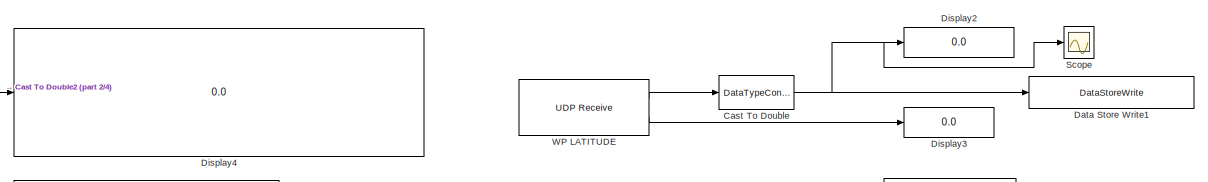
[diagram: MSFS/ISR/COMMUNICATIONS/SERVER COMMUNICATIONS - part 1/4, top center region]
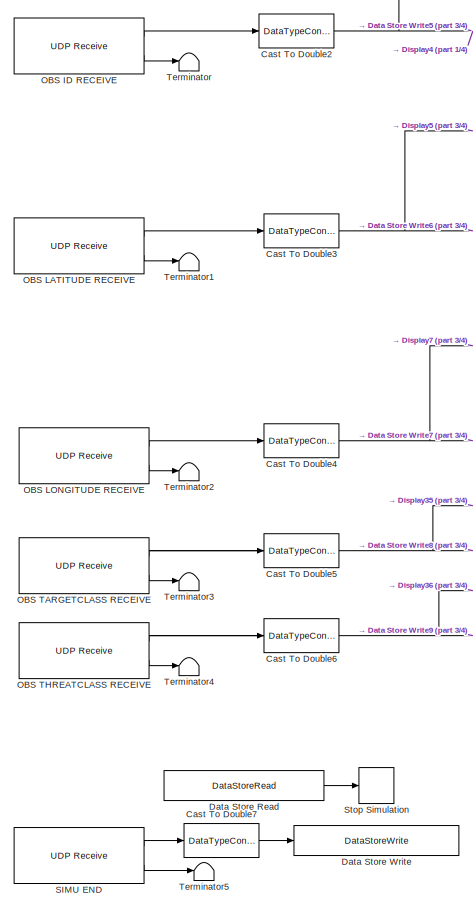
[diagram: MSFS/ISR/COMMUNICATIONS/SERVER COMMUNICATIONS - part 2/4, left side, full height]
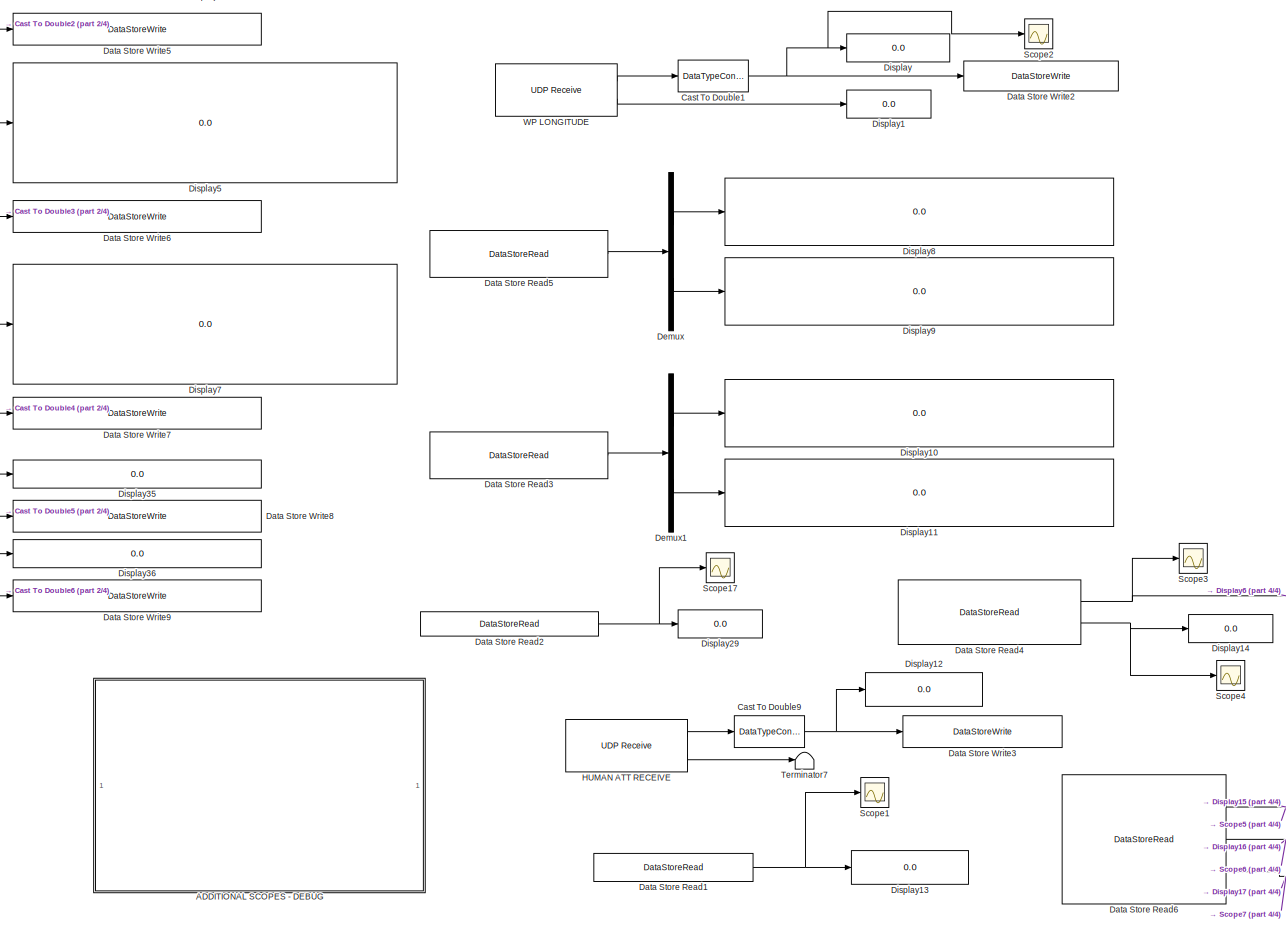
[diagram: MSFS/ISR/COMMUNICATIONS/SERVER COMMUNICATIONS - part 3/4, center side, full height]
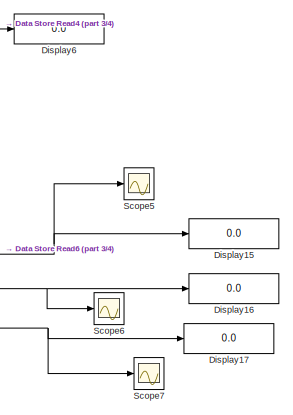
[diagram: MSFS/ISR/COMMUNICATIONS/SERVER COMMUNICATIONS - part 4/4, bottom right region]
BLOCK [SubSystem] MSFS/ISR/COMMUNICATIONS/SERVER COMMUNICATIONS
  Ports = []
  RequestExecContextInheritance = off
BLOCK [SubSystem] MSFS/ISR/COMMUNICATIONS/SERVER COMMUNICATIONS/ADDITIONAL SCOPES - DEBUG
  Ports = []
  RequestExecContextInheritance = off
BLOCK [DataStoreRead] MSFS/ISR/COMMUNICATIONS/SERVER COMMUNICATIONS/ADDITIONAL SCOPES - DEBUG/Data Store Read10
  DataStoreElements = MODEL.OUTPUT.ALTITUDE
  DataStoreName = MODEL
  IndexOptions = Index vector (dialog)
  Indices = 1
  OutputSizes = 1
  Ports = [0, 1]
BLOCK [DataStoreRead] MSFS/ISR/COMMUNICATIONS/SERVER COMMUNICATIONS/ADDITIONAL SCOPES - DEBUG/Data Store Read11
  DataStoreElements = CONTROL.PARAM.ALTITUDE
  DataStoreName = CONTROL
  IndexOptions = Index vector (dialog)
  Indices = 1
  OutputSizes = 1
  Ports = [0, 1]
BLOCK [DataStoreRead] MSFS/ISR/COMMUNICATIONS/SERVER COMMUNICATIONS/ADDITIONAL SCOPES - DEBUG/Data Store Read12
  DataStoreElements = MODEL.OUTPUT.ALTITUDE#MODEL.OUTPUT.LATITUDE#MODEL.OUTPUT.LONGITUDE#MODEL.PARAM.FLIGHT_STATUS
  DataStoreName = MODEL
  IndexOptions = Index vector (dialog)
  Indices = 1
  OutputSizes = 1
  Ports = [0, 4]
BLOCK [DataStoreRead] MSFS/ISR/COMMUNICATIONS/SERVER COMMUNICATIONS/ADDITIONAL SCOPES - DEBUG/Data Store Read8
  DataStoreElements = MODEL.STATE(:,:)
  DataStoreName = MODEL
  IndexOptions = Index vector (dialog)
  Indices = 1
  OutputSizes = 1
  Ports = [0, 1]
  SampleTime = MODEL_INI.PARAM.SIM_SAMPLING_TIME
BLOCK [DataStoreRead] MSFS/ISR/COMMUNICATIONS/SERVER COMMUNICATIONS/ADDITIONAL SCOPES - DEBUG/Data Store Read9
  DataStoreElements = MODEL.INPUT.ALTITUDE#MODEL.INPUT.LATITUDE#MODEL.INPUT.LONGITUDE#MODEL.PARAM.FLIGHT_STATUS
  DataStoreName = MODEL
  IndexOptions = Index vector (dialog)
  Indices = 1
  OutputSizes = 1
  Ports = [0, 4]
BLOCK [Demux] MSFS/ISR/COMMUNICATIONS/SERVER COMMUNICATIONS/ADDITIONAL SCOPES - DEBUG/Demux
  Outputs = 7
  Ports = [1, 7]
BLOCK [Display] MSFS/ISR/COMMUNICATIONS/SERVER COMMUNICATIONS/ADDITIONAL SCOPES - DEBUG/Display10
  Decimation = 1
  Ports = [1]
BLOCK [Display] MSFS/ISR/COMMUNICATIONS/SERVER COMMUNICATIONS/ADDITIONAL SCOPES - DEBUG/Display11
  Decimation = 1
  Ports = [1]
BLOCK [Display] MSFS/ISR/COMMUNICATIONS/SERVER COMMUNICATIONS/ADDITIONAL SCOPES - DEBUG/Display12
  Decimation = 1
  Ports = [1]
BLOCK [Display] MSFS/ISR/COMMUNICATIONS/SERVER COMMUNICATIONS/ADDITIONAL SCOPES - DEBUG/Display13
  Decimation = 1
  Ports = [1]
BLOCK [Display] MSFS/ISR/COMMUNICATIONS/SERVER COMMUNICATIONS/ADDITIONAL SCOPES - DEBUG/Display14
  Decimation = 1
  Ports = [1]
BLOCK [Display] MSFS/ISR/COMMUNICATIONS/SERVER COMMUNICATIONS/ADDITIONAL SCOPES - DEBUG/Display15
  Decimation = 1
  Ports = [1]
BLOCK [Display] MSFS/ISR/COMMUNICATIONS/SERVER COMMUNICATIONS/ADDITIONAL SCOPES - DEBUG/Display16
  Decimation = 1
  Ports = [1]
BLOCK [Display] MSFS/ISR/COMMUNICATIONS/SERVER COMMUNICATIONS/ADDITIONAL SCOPES - DEBUG/Display17
  Decimation = 1
  Ports = [1]
BLOCK [Display] MSFS/ISR/COMMUNICATIONS/SERVER COMMUNICATIONS/ADDITIONAL SCOPES - DEBUG/Display18
  Decimation = 1
  Ports = [1]
BLOCK [Display] MSFS/ISR/COMMUNICATIONS/SERVER COMMUNICATIONS/ADDITIONAL SCOPES - DEBUG/Display19
  Decimation = 1
  Ports = [1]
BLOCK [Display] MSFS/ISR/COMMUNICATIONS/SERVER COMMUNICATIONS/ADDITIONAL SCOPES - DEBUG/Display20
  Decimation = 1
  Ports = [1]
BLOCK [Display] MSFS/ISR/COMMUNICATIONS/SERVER COMMUNICATIONS/ADDITIONAL SCOPES - DEBUG/Display21
  Decimation = 1
  Ports = [1]
BLOCK [Display] MSFS/ISR/COMMUNICATIONS/SERVER COMMUNICATIONS/ADDITIONAL SCOPES - DEBUG/Display22
  Decimation = 1
  Ports = [1]
BLOCK [Display] MSFS/ISR/COMMUNICATIONS/SERVER COMMUNICATIONS/ADDITIONAL SCOPES - DEBUG/Display23
  Decimation = 1
  Ports = [1]
BLOCK [Display] MSFS/ISR/COMMUNICATIONS/SERVER COMMUNICATIONS/ADDITIONAL SCOPES - DEBUG/Display24
  Decimation = 1
  Ports = [1]
BLOCK [Display] MSFS/ISR/COMMUNICATIONS/SERVER COMMUNICATIONS/ADDITIONAL SCOPES - DEBUG/Display25
  Decimation = 1
  Ports = [1]
BLOCK [Display] MSFS/ISR/COMMUNICATIONS/SERVER COMMUNICATIONS/ADDITIONAL SCOPES - DEBUG/Display26
  Decimation = 1
  Ports = [1]
BLOCK [Scope] MSFS/ISR/COMMUNICATIONS/SERVER COMMUNICATIONS/ADDITIONAL SCOPES - DEBUG/Scope
  Floating = off
  NumInputPorts = 1
  Ports = [1]
  ScopeSpecificationString = Simulink.scopes.TimeScopeBlockCfg('CurrentConfiguration', extmgr.ConfigurationSet(extmgr.Configuration('Core','General UI',true),extmgr.Configuration('Core','Source UI',true),extmgr.Configuration('Sources','WiredSimulink',true,'DataLoggingVariableName','ScopeData1'),extmgr.Configuration('Visuals','Time Domain',true,'SerializedDisplays',{struct('MinYLimReal','-9089227.54699','MaxYLimReal','22343313...<+1489ch>
BLOCK [Scope] MSFS/ISR/COMMUNICATIONS/SERVER COMMUNICATIONS/ADDITIONAL SCOPES - DEBUG/Scope10
  Floating = off
  NumInputPorts = 1
  Ports = [1]
  ScopeSpecificationString = Simulink.scopes.TimeScopeBlockCfg('CurrentConfiguration', extmgr.ConfigurationSet(extmgr.Configuration('Core','General UI',true),extmgr.Configuration('Core','Source UI',true),extmgr.Configuration('Sources','WiredSimulink',true,'DataLoggingVariableName','ScopeData5'),extmgr.Configuration('Visuals','Time Domain',true,'SerializedDisplays',{struct('MinYLimReal','-41.10414','MaxYLimReal','4.56713','YLa...<+1443ch>
BLOCK [Scope] MSFS/ISR/COMMUNICATIONS/SERVER COMMUNICATIONS/ADDITIONAL SCOPES - DEBUG/Scope11
  Floating = off
  NumInputPorts = 1
  Ports = [1]
BLOCK [Scope] MSFS/ISR/COMMUNICATIONS/SERVER COMMUNICATIONS/ADDITIONAL SCOPES - DEBUG/Scope12
  Floating = off
  NumInputPorts = 1
  Ports = [1]
BLOCK [Scope] MSFS/ISR/COMMUNICATIONS/SERVER COMMUNICATIONS/ADDITIONAL SCOPES - DEBUG/Scope13
  Floating = off
  NumInputPorts = 1
  Ports = [1]
  ScopeSpecificationString = Simulink.scopes.TimeScopeBlockCfg('CurrentConfiguration', extmgr.ConfigurationSet(extmgr.Configuration('Core','General UI',true),extmgr.Configuration('Core','Source UI',true),extmgr.Configuration('Sources','WiredSimulink',true,'DataLoggingVariableName','ScopeData8'),extmgr.Configuration('Visuals','Time Domain',true,'SerializedDisplays',{struct('MinYLimReal','-15647657.00476','MaxYLimReal','-156468...<+1459ch>
BLOCK [Scope] MSFS/ISR/COMMUNICATIONS/SERVER COMMUNICATIONS/ADDITIONAL SCOPES - DEBUG/Scope14
  Floating = off
  NumInputPorts = 1
  Ports = [1]
  ScopeSpecificationString = Simulink.scopes.TimeScopeBlockCfg('CurrentConfiguration', extmgr.ConfigurationSet(extmgr.Configuration('Core','General UI',true),extmgr.Configuration('Core','Source UI',true),extmgr.Configuration('Sources','WiredSimulink',true,'DataLoggingVariableName','ScopeData9'),extmgr.Configuration('Visuals','Time Domain',true,'SerializedDisplays',{struct('MinYLimReal','-15647657.00476','MaxYLimReal','-156468...<+1459ch>
BLOCK [Scope] MSFS/ISR/COMMUNICATIONS/SERVER COMMUNICATIONS/ADDITIONAL SCOPES - DEBUG/Scope15
  Floating = off
  NumInputPorts = 1
  Ports = [1]
  ScopeSpecificationString = Simulink.scopes.TimeScopeBlockCfg('CurrentConfiguration', extmgr.ConfigurationSet(extmgr.Configuration('Core','General UI',true),extmgr.Configuration('Core','Source UI',true),extmgr.Configuration('Sources','WiredSimulink',true,'DataLoggingVariableName','ScopeData10'),extmgr.Configuration('Visuals','Time Domain',true,'SerializedDisplays',{struct('MinYLimReal','65.84743','MaxYLimReal','85.84743','YL...<+1391ch>
BLOCK [Scope] MSFS/ISR/COMMUNICATIONS/SERVER COMMUNICATIONS/ADDITIONAL SCOPES - DEBUG/Scope16
  Floating = off
  NumInputPorts = 1
  Ports = [1]
BLOCK [Scope] MSFS/ISR/COMMUNICATIONS/SERVER COMMUNICATIONS/ADDITIONAL SCOPES - DEBUG/Scope18
  Floating = off
  NumInputPorts = 1
  Ports = [1]
BLOCK [Scope] MSFS/ISR/COMMUNICATIONS/SERVER COMMUNICATIONS/ADDITIONAL SCOPES - DEBUG/Scope19
  Floating = off
  NumInputPorts = 1
  Ports = [1]
BLOCK [Scope] MSFS/ISR/COMMUNICATIONS/SERVER COMMUNICATIONS/ADDITIONAL SCOPES - DEBUG/Scope20
  Floating = off
  NumInputPorts = 1
  Ports = [1]
  ScopeSpecificationString = Simulink.scopes.TimeScopeBlockCfg('CurrentConfiguration', extmgr.ConfigurationSet(extmgr.Configuration('Core','General UI',true),extmgr.Configuration('Core','Source UI',true),extmgr.Configuration('Sources','WiredSimulink',true,'DataLoggingVariableName','ScopeData27'),extmgr.Configuration('Visuals','Time Domain',true,'SerializedDisplays',{struct('MinYLimReal','-2.83158','MaxYLimReal','5.02346','YLa...<+1404ch>
BLOCK [Scope] MSFS/ISR/COMMUNICATIONS/SERVER COMMUNICATIONS/ADDITIONAL SCOPES - DEBUG/Scope21
  Floating = off
  NumInputPorts = 1
  Ports = [1]
  ScopeSpecificationString = Simulink.scopes.TimeScopeBlockCfg('CurrentConfiguration', extmgr.ConfigurationSet(extmgr.Configuration('Core','General UI',true),extmgr.Configuration('Core','Source UI',true),extmgr.Configuration('Sources','WiredSimulink',true,'DataLoggingVariableName','ScopeData28'),extmgr.Configuration('Visuals','Time Domain',true,'SerializedDisplays',{struct('MinYLimReal','-0.25','MaxYLimReal','2.25','YLabelRea...<+1386ch>
BLOCK [Scope] MSFS/ISR/COMMUNICATIONS/SERVER COMMUNICATIONS/ADDITIONAL SCOPES - DEBUG/Scope5
  Floating = off
  NumInputPorts = 1
  Ports = [1]
  ScopeSpecificationString = Simulink.scopes.TimeScopeBlockCfg('CurrentConfiguration', extmgr.ConfigurationSet(extmgr.Configuration('Core','General UI',true),extmgr.Configuration('Core','Source UI',true),extmgr.Configuration('Sources','WiredSimulink',true,'DataLoggingVariableName','ScopeData2'),extmgr.Configuration('Visuals','Time Domain',true,'SerializedDisplays',{struct('MinYLimReal','-15647669.41462','MaxYLimReal','-156468...<+1495ch>
BLOCK [Scope] MSFS/ISR/COMMUNICATIONS/SERVER COMMUNICATIONS/ADDITIONAL SCOPES - DEBUG/Scope6
  Floating = off
  NumInputPorts = 1
  Ports = [1]
BLOCK [Scope] MSFS/ISR/COMMUNICATIONS/SERVER COMMUNICATIONS/ADDITIONAL SCOPES - DEBUG/Scope7
  Floating = off
  NumInputPorts = 1
  Ports = [1]
  ScopeSpecificationString = Simulink.scopes.TimeScopeBlockCfg('CurrentConfiguration', extmgr.ConfigurationSet(extmgr.Configuration('Core','General UI',true),extmgr.Configuration('Core','Source UI',true),extmgr.Configuration('Sources','WiredSimulink',true,'DataLoggingVariableName','ScopeData2'),extmgr.Configuration('Visuals','Time Domain',true,'SerializedDisplays',{struct('MinYLimReal','-0.07135','MaxYLimReal','0.64215','YLab...<+1451ch>
BLOCK [Scope] MSFS/ISR/COMMUNICATIONS/SERVER COMMUNICATIONS/ADDITIONAL SCOPES - DEBUG/Scope8
  Floating = off
  NumInputPorts = 1
  Ports = [1]
  ScopeSpecificationString = Simulink.scopes.TimeScopeBlockCfg('CurrentConfiguration', extmgr.ConfigurationSet(extmgr.Configuration('Core','General UI',true),extmgr.Configuration('Core','Source UI',true),extmgr.Configuration('Sources','WiredSimulink',true,'DataLoggingVariableName','ScopeData3'),extmgr.Configuration('Visuals','Time Domain',true,'SerializedDisplays',{struct('MinYLimReal','-2.046078087','MaxYLimReal','-2.0460780...<+1441ch>
BLOCK [Scope] MSFS/ISR/COMMUNICATIONS/SERVER COMMUNICATIONS/ADDITIONAL SCOPES - DEBUG/Scope9
  Floating = off
  NumInputPorts = 1
  Ports = [1]
  ScopeSpecificationString = Simulink.scopes.TimeScopeBlockCfg('CurrentConfiguration', extmgr.ConfigurationSet(extmgr.Configuration('Core','General UI',true),extmgr.Configuration('Core','Source UI',true),extmgr.Configuration('Sources','WiredSimulink',true,'DataLoggingVariableName','ScopeData4'),extmgr.Configuration('Visuals','Time Domain',true,'SerializedDisplays',{struct('MinYLimReal','-0.25','MaxYLimReal','2.25','YLabelReal...<+1385ch>
BLOCK [DataTypeConversion] MSFS/ISR/COMMUNICATIONS/SERVER COMMUNICATIONS/Cast To Double
  OutDataTypeStr = double
  RndMeth = Floor
  SaturateOnIntegerOverflow = off
BLOCK [DataTypeConversion] MSFS/ISR/COMMUNICATIONS/SERVER COMMUNICATIONS/Cast To Double1
  OutDataTypeStr = double
  RndMeth = Floor
  SaturateOnIntegerOverflow = off
BLOCK [DataTypeConversion] MSFS/ISR/COMMUNICATIONS/SERVER COMMUNICATIONS/Cast To Double2
  OutDataTypeStr = double
  RndMeth = Floor
  SaturateOnIntegerOverflow = off
BLOCK [DataTypeConversion] MSFS/ISR/COMMUNICATIONS/SERVER COMMUNICATIONS/Cast To Double3
  OutDataTypeStr = double
  RndMeth = Floor
  SaturateOnIntegerOverflow = off
BLOCK [DataTypeConversion] MSFS/ISR/COMMUNICATIONS/SERVER COMMUNICATIONS/Cast To Double4
  OutDataTypeStr = double
  RndMeth = Floor
  SaturateOnIntegerOverflow = off
BLOCK [DataTypeConversion] MSFS/ISR/COMMUNICATIONS/SERVER COMMUNICATIONS/Cast To Double5
  OutDataTypeStr = double
  RndMeth = Floor
  SaturateOnIntegerOverflow = off
BLOCK [DataTypeConversion] MSFS/ISR/COMMUNICATIONS/SERVER COMMUNICATIONS/Cast To Double6
  OutDataTypeStr = double
  RndMeth = Floor
  SaturateOnIntegerOverflow = off
BLOCK [DataTypeConversion] MSFS/ISR/COMMUNICATIONS/SERVER COMMUNICATIONS/Cast To Double7
  OutDataTypeStr = double
  RndMeth = Floor
  SaturateOnIntegerOverflow = off
BLOCK [DataTypeConversion] MSFS/ISR/COMMUNICATIONS/SERVER COMMUNICATIONS/Cast To Double9
  OutDataTypeStr = double
  RndMeth = Floor
  SaturateOnIntegerOverflow = off
BLOCK [DataStoreRead] MSFS/ISR/COMMUNICATIONS/SERVER COMMUNICATIONS/Data Store Read
  DataStoreElements = CONTROL.TARGET.SIMU_END
  DataStoreName = CONTROL
  IndexOptions = Index vector (dialog)
  Indices = 1
  OutputSizes = 1
  Ports = [0, 1]
BLOCK [DataStoreRead] MSFS/ISR/COMMUNICATIONS/SERVER COMMUNICATIONS/Data Store Read1
  DataStoreElements = MODEL.STATE(8,1)
  DataStoreName = MODEL
  IndexOptions = Index vector (dialog)
  Indices = 1
  OutputSizes = 1
  Ports = [0, 1]
BLOCK [DataStoreRead] MSFS/ISR/COMMUNICATIONS/SERVER COMMUNICATIONS/Data Store Read2
  DataStoreElements = CONTROL.PARAM.FLIGHT_STATUS
  DataStoreName = CONTROL
  IndexOptions = Index vector (dialog)
  Indices = 1
  OutputSizes = 1
  Ports = [0, 1]
BLOCK [DataStoreRead] MSFS/ISR/COMMUNICATIONS/SERVER COMMUNICATIONS/Data Store Read3
  DataStoreElements = CONTROL.PARAM.CBF_PSI(:,:)
  DataStoreName = CONTROL
  IndexOptions = Index vector (dialog)
  Indices = 1
  OutputSizes = 1
  Ports = [0, 1]
BLOCK [DataStoreRead] MSFS/ISR/COMMUNICATIONS/SERVER COMMUNICATIONS/Data Store Read4
  DataStoreElements = CONTROL.PARAM.CBF_CONST#CONTROL.PARAM.CBF_CONST_ATT
  DataStoreName = CONTROL
  IndexOptions = Index vector (dialog)
  Indices = 1
  OutputSizes = 1
  Ports = [0, 2]
BLOCK [DataStoreRead] MSFS/ISR/COMMUNICATIONS/SERVER COMMUNICATIONS/Data Store Read5
  DataStoreElements = CONTROL.PARAM.CBF_H(:,:)
  DataStoreName = CONTROL
  IndexOptions = Index vector (dialog)
  Indices = 1
  OutputSizes = 1
  Ports = [0, 1]
BLOCK [DataStoreRead] MSFS/ISR/COMMUNICATIONS/SERVER COMMUNICATIONS/Data Store Read6
  DataStoreElements = MODEL.AUX.ALPHA_DOT#MODEL.AUX.ALPHA#MODEL.AUX.PATH_FOLLOWED
  DataStoreName = MODEL
  IndexOptions = Index vector (dialog)
  Indices = 1
  OutputSizes = 1
  Ports = [0, 3]
BLOCK [DataStoreWrite] MSFS/ISR/COMMUNICATIONS/SERVER COMMUNICATIONS/Data Store Write
  DataStoreElements = CONTROL.TARGET.SIMU_END
  DataStoreName = CONTROL
  IndexOptions = Index vector (dialog)
  Indices = 1
  OutputSizes = 1
  Ports = [1]
BLOCK [DataStoreWrite] MSFS/ISR/COMMUNICATIONS/SERVER COMMUNICATIONS/Data Store Write1
  DataStoreElements = CONTROL.TARGET.LATITUDE
  DataStoreName = CONTROL
  IndexOptions = Index vector (dialog)
  Indices = 1
  OutputSizes = 1
  Ports = [1]
BLOCK [DataStoreWrite] MSFS/ISR/COMMUNICATIONS/SERVER COMMUNICATIONS/Data Store Write2
  DataStoreElements = CONTROL.TARGET.LONGITUDE
  DataStoreName = CONTROL
  IndexOptions = Index vector (dialog)
  Indices = 1
  OutputSizes = 1
  Ports = [1]
BLOCK [DataStoreWrite] MSFS/ISR/COMMUNICATIONS/SERVER COMMUNICATIONS/Data Store Write3
  DataStoreElements = MODEL.INPUT.ATT_VALUE
  DataStoreName = MODEL
  IndexOptions = Index vector (dialog)
  Indices = 1
  OutputSizes = 1
  Ports = [1]
BLOCK [DataStoreWrite] MSFS/ISR/COMMUNICATIONS/SERVER COMMUNICATIONS/Data Store Write5
  DataStoreElements = CONTROL.TARGET.OBSTACLE_ID(:,:)
  DataStoreName = CONTROL
  IndexOptions = Index vector (dialog)
  Indices = 1
  OutputSizes = 1
  Ports = [1]
BLOCK [DataStoreWrite] MSFS/ISR/COMMUNICATIONS/SERVER COMMUNICATIONS/Data Store Write6
  DataStoreElements = CONTROL.TARGET.OBSTACLE_LATITUDE(:,:)
  DataStoreName = CONTROL
  IndexOptions = Index vector (dialog)
  Indices = 1
  OutputSizes = 1
  Ports = [1]
BLOCK [DataStoreWrite] MSFS/ISR/COMMUNICATIONS/SERVER COMMUNICATIONS/Data Store Write7
  DataStoreElements = CONTROL.TARGET.OBSTACLE_LONGITUDE(:,:)
  DataStoreName = CONTROL
  IndexOptions = Index vector (dialog)
  Indices = 1
  OutputSizes = 1
  Ports = [1]
BLOCK [DataStoreWrite] MSFS/ISR/COMMUNICATIONS/SERVER COMMUNICATIONS/Data Store Write8
  DataStoreElements = CONTROL.TARGET.OBSTACLE_TARGETCLASS(:,:)
  DataStoreName = CONTROL
  IndexOptions = Index vector (dialog)
  Indices = 1
  OutputSizes = 1
  Ports = [1]
BLOCK [DataStoreWrite] MSFS/ISR/COMMUNICATIONS/SERVER COMMUNICATIONS/Data Store Write9
  DataStoreElements = CONTROL.TARGET.OBSTACLE_THREATCLASS(:,:)
  DataStoreName = CONTROL
  IndexOptions = Index vector (dialog)
  Indices = 1
  OutputSizes = 1
  Ports = [1]
BLOCK [Demux] MSFS/ISR/COMMUNICATIONS/SERVER COMMUNICATIONS/Demux
  Outputs = 2
  Ports = [1, 2]
BLOCK [Demux] MSFS/ISR/COMMUNICATIONS/SERVER COMMUNICATIONS/Demux1
  Outputs = 2
  Ports = [1, 2]
BLOCK [Display] MSFS/ISR/COMMUNICATIONS/SERVER COMMUNICATIONS/Display
  Decimation = 1
  Format = long
  Ports = [1]
BLOCK [Display] MSFS/ISR/COMMUNICATIONS/SERVER COMMUNICATIONS/Display1
  Decimation = 1
  Ports = [1]
BLOCK [Display] MSFS/ISR/COMMUNICATIONS/SERVER COMMUNICATIONS/Display10
  Decimation = 1
  Ports = [1]
BLOCK [Display] MSFS/ISR/COMMUNICATIONS/SERVER COMMUNICATIONS/Display11
  Decimation = 1
  Ports = [1]
BLOCK [Display] MSFS/ISR/COMMUNICATIONS/SERVER COMMUNICATIONS/Display12
  Decimation = 1
  Ports = [1]
BLOCK [Display] MSFS/ISR/COMMUNICATIONS/SERVER COMMUNICATIONS/Display13
  Decimation = 1
  Format = long
  Ports = [1]
BLOCK [Display] MSFS/ISR/COMMUNICATIONS/SERVER COMMUNICATIONS/Display14
  Decimation = 1
  Ports = [1]
BLOCK [Display] MSFS/ISR/COMMUNICATIONS/SERVER COMMUNICATIONS/Display15
  Decimation = 1
  Ports = [1]
BLOCK [Display] MSFS/ISR/COMMUNICATIONS/SERVER COMMUNICATIONS/Display16
  Decimation = 1
  Ports = [1]
BLOCK [Display] MSFS/ISR/COMMUNICATIONS/SERVER COMMUNICATIONS/Display17
  Decimation = 1
  Ports = [1]
BLOCK [Display] MSFS/ISR/COMMUNICATIONS/SERVER COMMUNICATIONS/Display2
  Decimation = 1
  Format = long
  Ports = [1]
BLOCK [Display] MSFS/ISR/COMMUNICATIONS/SERVER COMMUNICATIONS/Display29
  Decimation = 1
  Ports = [1]
BLOCK [Display] MSFS/ISR/COMMUNICATIONS/SERVER COMMUNICATIONS/Display3
  Decimation = 1
  Ports = [1]
BLOCK [Display] MSFS/ISR/COMMUNICATIONS/SERVER COMMUNICATIONS/Display35
  Decimation = 1
  Ports = [1]
BLOCK [Display] MSFS/ISR/COMMUNICATIONS/SERVER COMMUNICATIONS/Display36
  Decimation = 1
  Ports = [1]
BLOCK [Display] MSFS/ISR/COMMUNICATIONS/SERVER COMMUNICATIONS/Display4
  Decimation = 1
  Format = long
  Ports = [1]
BLOCK [Display] MSFS/ISR/COMMUNICATIONS/SERVER COMMUNICATIONS/Display5
  Decimation = 1
  Format = long
  Ports = [1]
BLOCK [Display] MSFS/ISR/COMMUNICATIONS/SERVER COMMUNICATIONS/Display6
  Decimation = 1
  Ports = [1]
BLOCK [Display] MSFS/ISR/COMMUNICATIONS/SERVER COMMUNICATIONS/Display7
  Decimation = 1
  Format = long
  Ports = [1]
BLOCK [Display] MSFS/ISR/COMMUNICATIONS/SERVER COMMUNICATIONS/Display8
  Decimation = 1
  Ports = [1]
BLOCK [Display] MSFS/ISR/COMMUNICATIONS/SERVER COMMUNICATIONS/Display9
  Decimation = 1
  Ports = [1]
BLOCK [Reference] MSFS/ISR/COMMUNICATIONS/SERVER COMMUNICATIONS/HUMAN ATT RECEIVE  REF=instrumentlib/UDP Receive
  Ports = [0, 2]
  SourceBlock = instrumentlib/UDP Receive
  SourceProductBaseCode = IC
  SourceType = UDP Receive
BLOCK [Reference] MSFS/ISR/COMMUNICATIONS/SERVER COMMUNICATIONS/OBS ID RECEIVE  REF=instrumentlib/UDP Receive
  Ports = [0, 2]
  SourceBlock = instrumentlib/UDP Receive
  SourceProductBaseCode = IC
  SourceType = UDP Receive
BLOCK [Reference] MSFS/ISR/COMMUNICATIONS/SERVER COMMUNICATIONS/OBS LATITUDE RECEIVE  REF=instrumentlib/UDP Receive
  Ports = [0, 2]
  SourceBlock = instrumentlib/UDP Receive
  SourceProductBaseCode = IC
  SourceType = UDP Receive
BLOCK [Reference] MSFS/ISR/COMMUNICATIONS/SERVER COMMUNICATIONS/OBS LONGITUDE RECEIVE  REF=instrumentlib/UDP Receive
  Ports = [0, 2]
  SourceBlock = instrumentlib/UDP Receive
  SourceProductBaseCode = IC
  SourceType = UDP Receive
BLOCK [Reference] MSFS/ISR/COMMUNICATIONS/SERVER COMMUNICATIONS/OBS TARGETCLASS RECEIVE  REF=instrumentlib/UDP Receive
  Ports = [0, 2]
  SourceBlock = instrumentlib/UDP Receive
  SourceProductBaseCode = IC
  SourceType = UDP Receive
BLOCK [Reference] MSFS/ISR/COMMUNICATIONS/SERVER COMMUNICATIONS/OBS THREATCLASS RECEIVE  REF=instrumentlib/UDP Receive
  Ports = [0, 2]
  SourceBlock = instrumentlib/UDP Receive
  SourceProductBaseCode = IC
  SourceType = UDP Receive
BLOCK [Reference] MSFS/ISR/COMMUNICATIONS/SERVER COMMUNICATIONS/SIMU END  REF=instrumentlib/UDP Receive
  Ports = [0, 2]
  SourceBlock = instrumentlib/UDP Receive
  SourceProductBaseCode = IC
  SourceType = UDP Receive
BLOCK [Scope] MSFS/ISR/COMMUNICATIONS/SERVER COMMUNICATIONS/Scope
  Floating = off
  NumInputPorts = 1
  Ports = [1]
  ScopeSpecificationString = Simulink.scopes.TimeScopeBlockCfg('CurrentConfiguration', extmgr.ConfigurationSet(extmgr.Configuration('Core','General UI',true),extmgr.Configuration('Core','Source UI',true),extmgr.Configuration('Sources','WiredSimulink',true,'DataLoggingVariableName','ScopeData1'),extmgr.Configuration('Visuals','Time Domain',true),extmgr.Configuration('Tools','Plot Navigation',true),extmgr.Configuration('Tools',...<+40ch>  <repeated x3 — deduplicated; at blocks: Scope, Scope1>
BLOCK [Scope] MSFS/ISR/COMMUNICATIONS/SERVER COMMUNICATIONS/Scope1
  Floating = off
  NumInputPorts = 1
  Ports = [1]
  ScopeSpecificationString = Simulink.scopes.TimeScopeBlockCfg('CurrentConfiguration', extmgr.ConfigurationSet(extmgr.Configuration('Core','General UI',true),extmgr.Configuration('Core','Source UI',true),extmgr.Configuration('Sources','WiredSimulink',true,'DataLoggingVariableName','ScopeData2'),extmgr.Configuration('Visuals','Time Domain',true,'SerializedDisplays',{struct('MinYLimReal','-0.5','MaxYLimReal','4.5','YLabelReal',...<+1379ch>
BLOCK [Scope] MSFS/ISR/COMMUNICATIONS/SERVER COMMUNICATIONS/Scope17
  Floating = off
  NumInputPorts = 1
  Ports = [1]
BLOCK [Scope] MSFS/ISR/COMMUNICATIONS/SERVER COMMUNICATIONS/Scope2
  Floating = off
  NumInputPorts = 1
  Ports = [1]
  ScopeSpecificationString = Simulink.scopes.TimeScopeBlockCfg('CurrentConfiguration', extmgr.ConfigurationSet(extmgr.Configuration('Core','General UI',true),extmgr.Configuration('Core','Source UI',true),extmgr.Configuration('Sources','WiredSimulink',true,'DataLoggingVariableName','ScopeData2'),extmgr.Configuration('Visuals','Time Domain',true),extmgr.Configuration('Tools','Plot Navigation',true),extmgr.Configuration('Tools',...<+40ch>  <repeated x3 — deduplicated; at blocks: Scope2, Scope3>
BLOCK [Scope] MSFS/ISR/COMMUNICATIONS/SERVER COMMUNICATIONS/Scope3
  Floating = off
  NumInputPorts = 1
  Ports = [1]
  ScopeSpecificationString = Simulink.scopes.TimeScopeBlockCfg('CurrentConfiguration', extmgr.ConfigurationSet(extmgr.Configuration('Core','General UI',true),extmgr.Configuration('Core','Source UI',true),extmgr.Configuration('Sources','WiredSimulink',true,'DataLoggingVariableName','ScopeData1'),extmgr.Configuration('Visuals','Time Domain',true,'SerializedDisplays',{struct('MinYLimReal','-0.25','MaxYLimReal','2.25','YLabelReal...<+1401ch>
BLOCK [Scope] MSFS/ISR/COMMUNICATIONS/SERVER COMMUNICATIONS/Scope4
  Floating = off
  NumInputPorts = 1
  Ports = [1]
  ScopeSpecificationString = Simulink.scopes.TimeScopeBlockCfg('CurrentConfiguration', extmgr.ConfigurationSet(extmgr.Configuration('Core','General UI',true),extmgr.Configuration('Core','Source UI',true),extmgr.Configuration('Sources','WiredSimulink',true,'DataLoggingVariableName','ScopeData2'),extmgr.Configuration('Visuals','Time Domain',true,'SerializedDisplays',{struct('MinYLimReal','1.88456','MaxYLimReal','2.17145','YLabe...<+1445ch>
BLOCK [Scope] MSFS/ISR/COMMUNICATIONS/SERVER COMMUNICATIONS/Scope5
  Floating = off
  NumInputPorts = 1
  Ports = [1]
  ScopeSpecificationString = Simulink.scopes.TimeScopeBlockCfg('CurrentConfiguration', extmgr.ConfigurationSet(extmgr.Configuration('Core','General UI',true),extmgr.Configuration('Core','Source UI',true),extmgr.Configuration('Sources','WiredSimulink',true,'DataLoggingVariableName','ScopeData3'),extmgr.Configuration('Visuals','Time Domain',true,'SerializedDisplays',{struct('MinYLimReal','-0.00104','MaxYLimReal','0.00027','YLab...<+1447ch>
BLOCK [Scope] MSFS/ISR/COMMUNICATIONS/SERVER COMMUNICATIONS/Scope6
  Floating = off
  NumInputPorts = 1
  Ports = [1]
  ScopeSpecificationString = Simulink.scopes.TimeScopeBlockCfg('CurrentConfiguration', extmgr.ConfigurationSet(extmgr.Configuration('Core','General UI',true),extmgr.Configuration('Core','Source UI',true),extmgr.Configuration('Sources','WiredSimulink',true,'DataLoggingVariableName','ScopeData4'),extmgr.Configuration('Visuals','Time Domain',true,'SerializedDisplays',{struct('MinYLimReal','0.99762','MaxYLimReal','1.00525','YLabe...<+1474ch>
BLOCK [Scope] MSFS/ISR/COMMUNICATIONS/SERVER COMMUNICATIONS/Scope7
  Floating = off
  NumInputPorts = 1
  Ports = [1]
  ScopeSpecificationString = Simulink.scopes.TimeScopeBlockCfg('CurrentConfiguration', extmgr.ConfigurationSet(extmgr.Configuration('Core','General UI',true),extmgr.Configuration('Core','Source UI',true),extmgr.Configuration('Sources','WiredSimulink',true,'DataLoggingVariableName','ScopeData5'),extmgr.Configuration('Visuals','Time Domain',true,'SerializedDisplays',{struct('MinYLimReal','1.99582','MaxYLimReal','2.00215','YLabe...<+1474ch>
BLOCK [Stop] MSFS/ISR/COMMUNICATIONS/SERVER COMMUNICATIONS/Stop Simulation
BLOCK [Terminator] MSFS/ISR/COMMUNICATIONS/SERVER COMMUNICATIONS/Terminator
BLOCK [Terminator] MSFS/ISR/COMMUNICATIONS/SERVER COMMUNICATIONS/Terminator1
BLOCK [Terminator] MSFS/ISR/COMMUNICATIONS/SERVER COMMUNICATIONS/Terminator2
BLOCK [Terminator] MSFS/ISR/COMMUNICATIONS/SERVER COMMUNICATIONS/Terminator3
BLOCK [Terminator] MSFS/ISR/COMMUNICATIONS/SERVER COMMUNICATIONS/Terminator4
BLOCK [Terminator] MSFS/ISR/COMMUNICATIONS/SERVER COMMUNICATIONS/Terminator5
BLOCK [Terminator] MSFS/ISR/COMMUNICATIONS/SERVER COMMUNICATIONS/Terminator7
BLOCK [Reference] MSFS/ISR/COMMUNICATIONS/SERVER COMMUNICATIONS/WP LATITUDE  REF=instrumentlib/UDP Receive
  Ports = [0, 2]
  SourceBlock = instrumentlib/UDP Receive
  SourceProductBaseCode = IC
  SourceType = UDP Receive
BLOCK [Reference] MSFS/ISR/COMMUNICATIONS/SERVER COMMUNICATIONS/WP LONGITUDE  REF=instrumentlib/UDP Receive
  Ports = [0, 2]
  SourceBlock = instrumentlib/UDP Receive
  SourceProductBaseCode = IC
  SourceType = UDP Receive
BLOCK [Reference] MSFS/ISR/Compare To Constant1  REF=simulink/Logic and Bit
Operations/Compare
To Constant
  Ports = [1, 1]
  SourceBlock = simulink/Logic and Bit\nOperations/Compare\nTo Constant
  SourceProductBaseCode = SL
  SourceType = Compare To Constant
BLOCK [Reference] MSFS/ISR/Compare To Constant4  REF=simulink/Logic and Bit
Operations/Compare
To Constant
  Ports = [1, 1]
  SourceBlock = simulink/Logic and Bit\nOperations/Compare\nTo Constant
  SourceProductBaseCode = SL
  SourceType = Compare To Constant
BLOCK [DataStoreRead] MSFS/ISR/Data Store Read1
  DataStoreElements = CONTROL.PARAM.FLIGHT_STATUS
  DataStoreName = CONTROL
  IndexOptions = Index vector (dialog)
  Indices = 1
  OutputSizes = 1
  Ports = [0, 1]
BLOCK [DataStoreRead] MSFS/ISR/Data Store Read4
  DataStoreElements = CONTROL.PARAM.FLIGHT_STATUS
  DataStoreName = CONTROL
  IndexOptions = Index vector (dialog)
  Indices = 1
  OutputSizes = 1
  Ports = [0, 1]
BLOCK [SubSystem] MSFS/ISR/IN FLIGHT
  Ports = [0, 0, 1]
  RequestExecContextInheritance = off
BLOCK [Constant] MSFS/ISR/IN FLIGHT/Constant
  SampleTime = -1
  Value = 0
BLOCK [Constant] MSFS/ISR/IN FLIGHT/Constant1
  SampleTime = -1
  Value = 0
BLOCK [Constant] MSFS/ISR/IN FLIGHT/Constant2
  SampleTime = -1
  Value = zeros(3,1)
BLOCK [DataStoreRead] MSFS/ISR/IN FLIGHT/Data Store Read
  DataStoreElements = MODEL.OUTPUT.LATITUDE
  DataStoreName = MODEL
  IndexOptions = Index vector (dialog)
  Indices = 1
  OutputSizes = 1
  Ports = [0, 1]
BLOCK [DataStoreRead] MSFS/ISR/IN FLIGHT/Data Store Read1
  DataStoreElements = MODEL.OUTPUT.LONGITUDE
  DataStoreName = MODEL
  IndexOptions = Index vector (dialog)
  Indices = 1
  OutputSizes = 1
  Ports = [0, 1]
BLOCK [DataStoreRead] MSFS/ISR/IN FLIGHT/Data Store Read2
  DataStoreElements = MODEL.OUTPUT.ALTITUDE
  DataStoreName = MODEL
  IndexOptions = Index vector (dialog)
  Indices = 1
  OutputSizes = 1
  Ports = [0, 1]
BLOCK [DataStoreRead] MSFS/ISR/IN FLIGHT/Data Store Read3
  DataStoreElements = MODEL.OUTPUT.HEADING_NED
  DataStoreName = MODEL
  IndexOptions = Index vector (dialog)
  Indices = 1
  OutputSizes = 1
  Ports = [0, 1]
BLOCK [DataStoreRead] MSFS/ISR/IN FLIGHT/Data Store Read4
  DataStoreElements = MODEL.OUTPUT.PITCH
  DataStoreName = MODEL
  IndexOptions = Index vector (dialog)
  Indices = 1
  OutputSizes = 1
  Ports = [0, 1]
BLOCK [DataStoreRead] MSFS/ISR/IN FLIGHT/Data Store Read9
  DataStoreElements = CONTROL.PARAM.SIM_TIME#CONTROL.PARAM.TIMER
  DataStoreName = CONTROL
  IndexOptions = Index vector (dialog)
  Indices = 1
  OutputSizes = 1
  Ports = [0, 2]
BLOCK [DataStoreWrite] MSFS/ISR/IN FLIGHT/Data Store Write
  DataStoreElements = MODEL.INPUT.LATITUDE
  DataStoreName = MODEL
  IndexOptions = Index vector (dialog)
  Indices = 1
  OutputSizes = 1
  Ports = [1]
BLOCK [DataStoreWrite] MSFS/ISR/IN FLIGHT/Data Store Write1
  DataStoreElements = MODEL.INPUT.LONGITUDE
  DataStoreName = MODEL
  IndexOptions = Index vector (dialog)
  Indices = 1
  OutputSizes = 1
  Ports = [1]
BLOCK [DataStoreWrite] MSFS/ISR/IN FLIGHT/Data Store Write3
  DataStoreElements = MODEL.INPUT.ALTITUDE
  DataStoreName = MODEL
  IndexOptions = Index vector (dialog)
  Indices = 1
  OutputSizes = 1
  Ports = [1]
BLOCK [Display] MSFS/ISR/IN FLIGHT/Display
  Decimation = 1
  Ports = [1]
BLOCK [Display] MSFS/ISR/IN FLIGHT/Display1
  Decimation = 1
  Ports = [1]
BLOCK [Display] MSFS/ISR/IN FLIGHT/Display10
  Decimation = 1
  Ports = [1]
BLOCK [Display] MSFS/ISR/IN FLIGHT/Display14
  Decimation = 1
  Ports = [1]
BLOCK [Display] MSFS/ISR/IN FLIGHT/Display15
  Decimation = 1
  Ports = [1]
BLOCK [Display] MSFS/ISR/IN FLIGHT/Display2
  Decimation = 1
  Ports = [1]
BLOCK [Display] MSFS/ISR/IN FLIGHT/Display20
  Decimation = 1
  Ports = [1]
BLOCK [Display] MSFS/ISR/IN FLIGHT/Display21
  Decimation = 1
  Ports = [1]
BLOCK [Display] MSFS/ISR/IN FLIGHT/Display23
  Decimation = 1
  Ports = [1]
BLOCK [Display] MSFS/ISR/IN FLIGHT/Display3
  Decimation = 1
  Ports = [1]
BLOCK [Display] MSFS/ISR/IN FLIGHT/Display4
  Decimation = 1
  Ports = [1]
BLOCK [Display] MSFS/ISR/IN FLIGHT/Display5
  Decimation = 1
  Ports = [1]
BLOCK [Display] MSFS/ISR/IN FLIGHT/Display6
  Decimation = 1
  Ports = [1]
BLOCK [Display] MSFS/ISR/IN FLIGHT/Display7
  Decimation = 1
  Ports = [1]
BLOCK [Display] MSFS/ISR/IN FLIGHT/Display8
  Decimation = 1
  Ports = [1]
BLOCK [Display] MSFS/ISR/IN FLIGHT/Display9
  Decimation = 1
  Ports = [1]
BLOCK [EnablePort] MSFS/ISR/IN FLIGHT/Enable
  Ports = []
BLOCK [Gain] MSFS/ISR/IN FLIGHT/Gain1
  Gain = 180/pi
BLOCK [Gain] MSFS/ISR/IN FLIGHT/Gain2
  Gain = 180/pi
BLOCK [Scope] MSFS/ISR/IN FLIGHT/Scope
  Floating = off
  NumInputPorts = 1
  Ports = [1]
  ScopeSpecificationString = Simulink.scopes.TimeScopeBlockCfg('CurrentConfiguration', extmgr.ConfigurationSet(extmgr.Configuration('Core','General UI',true),extmgr.Configuration('Core','Source UI',true),extmgr.Configuration('Sources','WiredSimulink',true,'DataLoggingVariableName','ScopeData1'),extmgr.Configuration('Visuals','Time Domain',true,'SerializedDisplays',{struct('MinYLimReal','-2.83149','MaxYLimReal','5.02267','YLab...<+1400ch>
BLOCK [Scope] MSFS/ISR/IN FLIGHT/Scope13
  Floating = off
  NumInputPorts = 1
  Ports = [1]
  ScopeSpecificationString = Simulink.scopes.TimeScopeBlockCfg('CurrentConfiguration', extmgr.ConfigurationSet(extmgr.Configuration('Core','General UI',true),extmgr.Configuration('Core','Source UI',true),extmgr.Configuration('Sources','WiredSimulink',true,'DataLoggingVariableName','ScopeData1'),extmgr.Configuration('Visuals','Time Domain',true,'SerializedDisplays',{struct('MinYLimReal','-0.78536','MaxYLimReal','7.0682','YLabe...<+1448ch>
BLOCK [Scope] MSFS/ISR/IN FLIGHT/Scope17
  Floating = off
  NumInputPorts = 1
  Ports = [1]
  ScopeSpecificationString = Simulink.scopes.TimeScopeBlockCfg('CurrentConfiguration', extmgr.ConfigurationSet(extmgr.Configuration('Core','General UI',true),extmgr.Configuration('Core','Source UI',true),extmgr.Configuration('Sources','WiredSimulink',true,'DataLoggingVariableName','ScopeData32'),extmgr.Configuration('Visuals','Time Domain',true,'SerializedDisplays',{struct('MinYLimReal','1346.82377','MaxYLimReal','1536.37295'...<+1446ch>
BLOCK [Scope] MSFS/ISR/IN FLIGHT/Scope18
  Floating = off
  NumInputPorts = 1
  Ports = [1]
  ScopeSpecificationString = Simulink.scopes.TimeScopeBlockCfg('CurrentConfiguration', extmgr.ConfigurationSet(extmgr.Configuration('Core','General UI',true),extmgr.Configuration('Core','Source UI',true),extmgr.Configuration('Sources','WiredSimulink',true,'DataLoggingVariableName','ScopeData33'),extmgr.Configuration('Visuals','Time Domain',true,'SerializedDisplays',{struct('MinYLimReal','32.62419','MaxYLimReal','33.97665','YL...<+1443ch>
BLOCK [Scope] MSFS/ISR/IN FLIGHT/Scope19
  Floating = off
  NumInputPorts = 1
  Ports = [1]
  ScopeSpecificationString = Simulink.scopes.TimeScopeBlockCfg('CurrentConfiguration', extmgr.ConfigurationSet(extmgr.Configuration('Core','General UI',true),extmgr.Configuration('Core','Source UI',true),extmgr.Configuration('Sources','WiredSimulink',true,'DataLoggingVariableName','ScopeData34'),extmgr.Configuration('Visuals','Time Domain',true,'SerializedDisplays',{struct('MinYLimReal','-132.75','MaxYLimReal','14.75','YLabel...<+1431ch>
BLOCK [Scope] MSFS/ISR/IN FLIGHT/Scope4
  Floating = off
  NumInputPorts = 1
  Ports = [1]
  ScopeSpecificationString = Simulink.scopes.TimeScopeBlockCfg('CurrentConfiguration', extmgr.ConfigurationSet(extmgr.Configuration('Core','General UI',true),extmgr.Configuration('Core','Source UI',true),extmgr.Configuration('Sources','WiredSimulink',true,'DataLoggingVariableName','ScopeData2'),extmgr.Configuration('Visuals','Time Domain',true,'SerializedDisplays',{struct('MinYLimReal','-0.07131','MaxYLimReal','0.64176','YLab...<+1399ch>
BLOCK [Scope] MSFS/ISR/IN FLIGHT/Scope5
  Floating = off
  NumInputPorts = 1
  Ports = [1]
  ScopeSpecificationString = Simulink.scopes.TimeScopeBlockCfg('CurrentConfiguration', extmgr.ConfigurationSet(extmgr.Configuration('Core','General UI',true),extmgr.Configuration('Core','Source UI',true),extmgr.Configuration('Sources','WiredSimulink',true,'DataLoggingVariableName','ScopeData3'),extmgr.Configuration('Visuals','Time Domain',true,'SerializedDisplays',{struct('MinYLimReal','-102.17175','MaxYLimReal','1678.01908',...<+1418ch>
BLOCK [Scope] MSFS/ISR/IN FLIGHT/Scope6
  Floating = off
  NumInputPorts = 1
  Ports = [1]
  ScopeSpecificationString = Simulink.scopes.TimeScopeBlockCfg('CurrentConfiguration', extmgr.ConfigurationSet(extmgr.Configuration('Core','General UI',true),extmgr.Configuration('Core','Source UI',true),extmgr.Configuration('Sources','WiredSimulink',true,'DataLoggingVariableName','ScopeData4'),extmgr.Configuration('Visuals','Time Domain',true,'SerializedDisplays',{struct('MinYLimReal','-1.78082','MaxYLimReal','2.03081','YLab...<+1400ch>
BLOCK [Reference] MSFS/ISR/IN FLIGHT/SimConnect Sink1  REF=SimConnectToolbox/SimConnect Sink
  Ports = [8]
  SourceBlock = SimConnectToolbox/SimConnect Sink
  SourceProductName = SimConnect Toolbox
BLOCK [Reference] MSFS/ISR/IN FLIGHT/SimConnect Source1  REF=SimConnectToolbox/SimConnect Source
  Ports = [0, 10]
  SourceBlock = SimConnectToolbox/SimConnect Source
  SourceProductName = SimConnect Toolbox
BLOCK [SubSystem] MSFS/ISR/TAKE OFF TRIM
  Ports = [0, 0, 1]
  RequestExecContextInheritance = off
BLOCK [DataStoreWrite] MSFS/ISR/TAKE OFF TRIM/Data Store Write
  DataStoreElements = MODEL.INPUT.LATITUDE
  DataStoreName = MODEL
  IndexOptions = Index vector (dialog)
  Indices = 1
  OutputSizes = 1
  Ports = [1]
BLOCK [DataStoreWrite] MSFS/ISR/TAKE OFF TRIM/Data Store Write1
  DataStoreElements = MODEL.INPUT.LONGITUDE
  DataStoreName = MODEL
  IndexOptions = Index vector (dialog)
  Indices = 1
  OutputSizes = 1
  Ports = [1]
BLOCK [DataStoreWrite] MSFS/ISR/TAKE OFF TRIM/Data Store Write2
  DataStoreElements = MODEL.INPUT.ALTITUDE
  DataStoreName = MODEL
  IndexOptions = Index vector (dialog)
  Indices = 1
  OutputSizes = 1
  Ports = [1]
BLOCK [Display] MSFS/ISR/TAKE OFF TRIM/Display1
  Decimation = 1
  Ports = [1]
BLOCK [Display] MSFS/ISR/TAKE OFF TRIM/Display2
  Decimation = 1
  Ports = [1]
BLOCK [Display] MSFS/ISR/TAKE OFF TRIM/Display3
  Decimation = 1
  Ports = [1]
BLOCK [EnablePort] MSFS/ISR/TAKE OFF TRIM/Enable
  Ports = []
BLOCK [Reference] MSFS/ISR/TAKE OFF TRIM/SimConnect Source1  REF=SimConnectToolbox/SimConnect Source
  Ports = [0, 3]
  SourceBlock = SimConnectToolbox/SimConnect Source
  SourceProductName = SimConnect Toolbox
BLOCK [SubSystem] MSFS/MEDEVAC
  Commented = on
  Ports = []
  RequestExecContextInheritance = off
BLOCK [SubSystem] MSFS/MEDEVAC/COMMUNICATIONS
  Ports = []
  RequestExecContextInheritance = off
BLOCK [SubSystem] MSFS/MEDEVAC/COMMUNICATIONS/LOCAL COMMUNICATIONS
  Commented = on
  Ports = []
  RequestExecContextInheritance = off
BLOCK [SubSystem] MSFS/MEDEVAC/COMMUNICATIONS/LOCAL COMMUNICATIONS/ADDITIONAL SCOPES - DEBUG LOCAL
  Ports = []
  RequestExecContextInheritance = off
BLOCK [DataStoreRead] MSFS/MEDEVAC/COMMUNICATIONS/LOCAL COMMUNICATIONS/ADDITIONAL SCOPES - DEBUG LOCAL/Data Store Read10
  DataStoreElements = MODEL.OUTPUT.ALTITUDE
  DataStoreName = MODEL
  IndexOptions = Index vector (dialog)
  Indices = 1
  OutputSizes = 1
  Ports = [0, 1]
BLOCK [DataStoreRead] MSFS/MEDEVAC/COMMUNICATIONS/LOCAL COMMUNICATIONS/ADDITIONAL SCOPES - DEBUG LOCAL/Data Store Read11
  DataStoreElements = CONTROL.PARAM.ALTITUDE
  DataStoreName = CONTROL
  IndexOptions = Index vector (dialog)
  Indices = 1
  OutputSizes = 1
  Ports = [0, 1]
BLOCK [DataStoreRead] MSFS/MEDEVAC/COMMUNICATIONS/LOCAL COMMUNICATIONS/ADDITIONAL SCOPES - DEBUG LOCAL/Data Store Read12
  DataStoreElements = MODEL.OUTPUT.ALTITUDE#MODEL.OUTPUT.LATITUDE#MODEL.OUTPUT.LONGITUDE#MODEL.PARAM.FLIGHT_STATUS
  DataStoreName = MODEL
  IndexOptions = Index vector (dialog)
  Indices = 1
  OutputSizes = 1
  Ports = [0, 4]
BLOCK [DataStoreRead] MSFS/MEDEVAC/COMMUNICATIONS/LOCAL COMMUNICATIONS/ADDITIONAL SCOPES - DEBUG LOCAL/Data Store Read2
  DataStoreElements = CONTROL.PARAM.FLIGHT_STATUS
  DataStoreName = CONTROL
  IndexOptions = Index vector (dialog)
  Indices = 1
  OutputSizes = 1
  Ports = [0, 1]
BLOCK [DataStoreRead] MSFS/MEDEVAC/COMMUNICATIONS/LOCAL COMMUNICATIONS/ADDITIONAL SCOPES - DEBUG LOCAL/Data Store Read8
  DataStoreElements = MODEL.STATE(:,:)
  DataStoreName = MODEL
  IndexOptions = Index vector (dialog)
  Indices = 1
  OutputSizes = 1
  Ports = [0, 1]
  SampleTime = MODEL_INI.PARAM.SIM_SAMPLING_TIME
BLOCK [DataStoreRead] MSFS/MEDEVAC/COMMUNICATIONS/LOCAL COMMUNICATIONS/ADDITIONAL SCOPES - DEBUG LOCAL/Data Store Read9
  DataStoreElements = MODEL.INPUT.ALTITUDE#MODEL.INPUT.LATITUDE#MODEL.INPUT.LONGITUDE#MODEL.PARAM.FLIGHT_STATUS
  DataStoreName = MODEL
  IndexOptions = Index vector (dialog)
  Indices = 1
  OutputSizes = 1
  Ports = [0, 4]
BLOCK [Demux] MSFS/MEDEVAC/COMMUNICATIONS/LOCAL COMMUNICATIONS/ADDITIONAL SCOPES - DEBUG LOCAL/Demux
  Outputs = 7
  Ports = [1, 7]
BLOCK [Display] MSFS/MEDEVAC/COMMUNICATIONS/LOCAL COMMUNICATIONS/ADDITIONAL SCOPES - DEBUG LOCAL/Display10
  Decimation = 1
  Format = long
  Ports = [1]
BLOCK [Display] MSFS/MEDEVAC/COMMUNICATIONS/LOCAL COMMUNICATIONS/ADDITIONAL SCOPES - DEBUG LOCAL/Display11
  Decimation = 1
  Format = long
  Ports = [1]
BLOCK [Display] MSFS/MEDEVAC/COMMUNICATIONS/LOCAL COMMUNICATIONS/ADDITIONAL SCOPES - DEBUG LOCAL/Display12
  Decimation = 1
  Ports = [1]
BLOCK [Display] MSFS/MEDEVAC/COMMUNICATIONS/LOCAL COMMUNICATIONS/ADDITIONAL SCOPES - DEBUG LOCAL/Display13
  Decimation = 1
  Format = long
  Ports = [1]
BLOCK [Display] MSFS/MEDEVAC/COMMUNICATIONS/LOCAL COMMUNICATIONS/ADDITIONAL SCOPES - DEBUG LOCAL/Display14
  Decimation = 1
  Format = long
  Ports = [1]
BLOCK [Display] MSFS/MEDEVAC/COMMUNICATIONS/LOCAL COMMUNICATIONS/ADDITIONAL SCOPES - DEBUG LOCAL/Display15
  Decimation = 1
  Ports = [1]
BLOCK [Display] MSFS/MEDEVAC/COMMUNICATIONS/LOCAL COMMUNICATIONS/ADDITIONAL SCOPES - DEBUG LOCAL/Display16
  Decimation = 1
  Ports = [1]
BLOCK [Display] MSFS/MEDEVAC/COMMUNICATIONS/LOCAL COMMUNICATIONS/ADDITIONAL SCOPES - DEBUG LOCAL/Display17
  Decimation = 1
  Ports = [1]
BLOCK [Display] MSFS/MEDEVAC/COMMUNICATIONS/LOCAL COMMUNICATIONS/ADDITIONAL SCOPES - DEBUG LOCAL/Display18
  Decimation = 1
  Ports = [1]
BLOCK [Display] MSFS/MEDEVAC/COMMUNICATIONS/LOCAL COMMUNICATIONS/ADDITIONAL SCOPES - DEBUG LOCAL/Display19
  Decimation = 1
  Ports = [1]
BLOCK [Display] MSFS/MEDEVAC/COMMUNICATIONS/LOCAL COMMUNICATIONS/ADDITIONAL SCOPES - DEBUG LOCAL/Display20
  Decimation = 1
  Ports = [1]
BLOCK [Display] MSFS/MEDEVAC/COMMUNICATIONS/LOCAL COMMUNICATIONS/ADDITIONAL SCOPES - DEBUG LOCAL/Display21
  Decimation = 1
  Ports = [1]
BLOCK [Display] MSFS/MEDEVAC/COMMUNICATIONS/LOCAL COMMUNICATIONS/ADDITIONAL SCOPES - DEBUG LOCAL/Display22
  Decimation = 1
  Ports = [1]
BLOCK [Display] MSFS/MEDEVAC/COMMUNICATIONS/LOCAL COMMUNICATIONS/ADDITIONAL SCOPES - DEBUG LOCAL/Display23
  Decimation = 1
  Ports = [1]
BLOCK [Display] MSFS/MEDEVAC/COMMUNICATIONS/LOCAL COMMUNICATIONS/ADDITIONAL SCOPES - DEBUG LOCAL/Display24
  Decimation = 1
  Ports = [1]
BLOCK [Display] MSFS/MEDEVAC/COMMUNICATIONS/LOCAL COMMUNICATIONS/ADDITIONAL SCOPES - DEBUG LOCAL/Display25
  Decimation = 1
  Ports = [1]
BLOCK [Display] MSFS/MEDEVAC/COMMUNICATIONS/LOCAL COMMUNICATIONS/ADDITIONAL SCOPES - DEBUG LOCAL/Display26
  Decimation = 1
  Ports = [1]
BLOCK [Display] MSFS/MEDEVAC/COMMUNICATIONS/LOCAL COMMUNICATIONS/ADDITIONAL SCOPES - DEBUG LOCAL/Display29
  Decimation = 1
  Ports = [1]
BLOCK [Gain] MSFS/MEDEVAC/COMMUNICATIONS/LOCAL COMMUNICATIONS/ADDITIONAL SCOPES - DEBUG LOCAL/Gain
  Gain = 180/pi
BLOCK [Gain] MSFS/MEDEVAC/COMMUNICATIONS/LOCAL COMMUNICATIONS/ADDITIONAL SCOPES - DEBUG LOCAL/Gain1
  Gain = 180/pi
BLOCK [Scope] MSFS/MEDEVAC/COMMUNICATIONS/LOCAL COMMUNICATIONS/ADDITIONAL SCOPES - DEBUG LOCAL/Scope
  Floating = off
  NumInputPorts = 1
  Ports = [1]
  ScopeSpecificationString = Simulink.scopes.TimeScopeBlockCfg('CurrentConfiguration', extmgr.ConfigurationSet(extmgr.Configuration('Core','General UI',true),extmgr.Configuration('Core','Source UI',true),extmgr.Configuration('Sources','WiredSimulink',true,'DataLoggingVariableName','ScopeData1'),extmgr.Configuration('Visuals','Time Domain',true,'SerializedDisplays',{struct('MinYLimReal','-11872610.44536','MaxYLimReal','2454529...<+1493ch>
BLOCK [Scope] MSFS/MEDEVAC/COMMUNICATIONS/LOCAL COMMUNICATIONS/ADDITIONAL SCOPES - DEBUG LOCAL/Scope10
  Floating = off
  NumInputPorts = 1
  Ports = [1]
  ScopeSpecificationString = Simulink.scopes.TimeScopeBlockCfg('CurrentConfiguration', extmgr.ConfigurationSet(extmgr.Configuration('Core','General UI',true),extmgr.Configuration('Core','Source UI',true),extmgr.Configuration('Sources','WiredSimulink',true,'DataLoggingVariableName','ScopeData5'),extmgr.Configuration('Visuals','Time Domain',true,'SerializedDisplays',{struct('MinYLimReal','-17.83255','MaxYLimReal','1.98139','YLa...<+1443ch>
BLOCK [Scope] MSFS/MEDEVAC/COMMUNICATIONS/LOCAL COMMUNICATIONS/ADDITIONAL SCOPES - DEBUG LOCAL/Scope11
  Floating = off
  NumInputPorts = 1
  Ports = [1]
BLOCK [Scope] MSFS/MEDEVAC/COMMUNICATIONS/LOCAL COMMUNICATIONS/ADDITIONAL SCOPES - DEBUG LOCAL/Scope12
  Floating = off
  NumInputPorts = 1
  Ports = [1]
BLOCK [Scope] MSFS/MEDEVAC/COMMUNICATIONS/LOCAL COMMUNICATIONS/ADDITIONAL SCOPES - DEBUG LOCAL/Scope13
  Floating = off
  NumInputPorts = 1
  Ports = [1]
  ScopeSpecificationString = Simulink.scopes.TimeScopeBlockCfg('CurrentConfiguration', extmgr.ConfigurationSet(extmgr.Configuration('Core','General UI',true),extmgr.Configuration('Core','Source UI',true),extmgr.Configuration('Sources','WiredSimulink',true,'DataLoggingVariableName','ScopeData8'),extmgr.Configuration('Visuals','Time Domain',true,'SerializedDisplays',{struct('MinYLimReal','-15647657.00476','MaxYLimReal','-156468...<+1466ch>
BLOCK [Scope] MSFS/MEDEVAC/COMMUNICATIONS/LOCAL COMMUNICATIONS/ADDITIONAL SCOPES - DEBUG LOCAL/Scope14
  Floating = off
  NumInputPorts = 1
  Ports = [1]
  ScopeSpecificationString = Simulink.scopes.TimeScopeBlockCfg('CurrentConfiguration', extmgr.ConfigurationSet(extmgr.Configuration('Core','General UI',true),extmgr.Configuration('Core','Source UI',true),extmgr.Configuration('Sources','WiredSimulink',true,'DataLoggingVariableName','ScopeData9'),extmgr.Configuration('Visuals','Time Domain',true,'SerializedDisplays',{struct('MinYLimReal','-15647657.00476','MaxYLimReal','-156468...<+1466ch>
BLOCK [Scope] MSFS/MEDEVAC/COMMUNICATIONS/LOCAL COMMUNICATIONS/ADDITIONAL SCOPES - DEBUG LOCAL/Scope15
  Floating = off
  NumInputPorts = 1
  Ports = [1]
  ScopeSpecificationString = Simulink.scopes.TimeScopeBlockCfg('CurrentConfiguration', extmgr.ConfigurationSet(extmgr.Configuration('Core','General UI',true),extmgr.Configuration('Core','Source UI',true),extmgr.Configuration('Sources','WiredSimulink',true,'DataLoggingVariableName','ScopeData10'),extmgr.Configuration('Visuals','Time Domain',true,'SerializedDisplays',{struct('MinYLimReal','-187.5','MaxYLimReal','1687.5','YLabel...<+1396ch>
BLOCK [Scope] MSFS/MEDEVAC/COMMUNICATIONS/LOCAL COMMUNICATIONS/ADDITIONAL SCOPES - DEBUG LOCAL/Scope16
  Floating = off
  NumInputPorts = 1
  Ports = [1]
BLOCK [Scope] MSFS/MEDEVAC/COMMUNICATIONS/LOCAL COMMUNICATIONS/ADDITIONAL SCOPES - DEBUG LOCAL/Scope17
  Floating = off
  NumInputPorts = 1
  Ports = [1]
BLOCK [Scope] MSFS/MEDEVAC/COMMUNICATIONS/LOCAL COMMUNICATIONS/ADDITIONAL SCOPES - DEBUG LOCAL/Scope18
  Floating = off
  NumInputPorts = 1
  Ports = [1]
BLOCK [Scope] MSFS/MEDEVAC/COMMUNICATIONS/LOCAL COMMUNICATIONS/ADDITIONAL SCOPES - DEBUG LOCAL/Scope19
  Floating = off
  NumInputPorts = 1
  Ports = [1]
BLOCK [Scope] MSFS/MEDEVAC/COMMUNICATIONS/LOCAL COMMUNICATIONS/ADDITIONAL SCOPES - DEBUG LOCAL/Scope20
  Floating = off
  NumInputPorts = 1
  Ports = [1]
  ScopeSpecificationString = Simulink.scopes.TimeScopeBlockCfg('CurrentConfiguration', extmgr.ConfigurationSet(extmgr.Configuration('Core','General UI',true),extmgr.Configuration('Core','Source UI',true),extmgr.Configuration('Sources','WiredSimulink',true,'DataLoggingVariableName','ScopeData27'),extmgr.Configuration('Visuals','Time Domain',true,'SerializedDisplays',{struct('MinYLimReal','-2.83158','MaxYLimReal','5.02346','YLa...<+1423ch>
BLOCK [Scope] MSFS/MEDEVAC/COMMUNICATIONS/LOCAL COMMUNICATIONS/ADDITIONAL SCOPES - DEBUG LOCAL/Scope21
  Floating = off
  NumInputPorts = 1
  Ports = [1]
  ScopeSpecificationString = Simulink.scopes.TimeScopeBlockCfg('CurrentConfiguration', extmgr.ConfigurationSet(extmgr.Configuration('Core','General UI',true),extmgr.Configuration('Core','Source UI',true),extmgr.Configuration('Sources','WiredSimulink',true,'DataLoggingVariableName','ScopeData28'),extmgr.Configuration('Visuals','Time Domain',true,'SerializedDisplays',{struct('MinYLimReal','-0.25','MaxYLimReal','2.25','YLabelRea...<+1405ch>
BLOCK [Scope] MSFS/MEDEVAC/COMMUNICATIONS/LOCAL COMMUNICATIONS/ADDITIONAL SCOPES - DEBUG LOCAL/Scope5
  Floating = off
  NumInputPorts = 1
  Ports = [1]
  ScopeSpecificationString = Simulink.scopes.TimeScopeBlockCfg('CurrentConfiguration', extmgr.ConfigurationSet(extmgr.Configuration('Core','General UI',true),extmgr.Configuration('Core','Source UI',true),extmgr.Configuration('Sources','WiredSimulink',true,'DataLoggingVariableName','ScopeData2'),extmgr.Configuration('Visuals','Time Domain',true,'SerializedDisplays',{struct('MinYLimReal','-15881155.88024','MaxYLimReal','-150591...<+1493ch>
BLOCK [Scope] MSFS/MEDEVAC/COMMUNICATIONS/LOCAL COMMUNICATIONS/ADDITIONAL SCOPES - DEBUG LOCAL/Scope6
  Floating = off
  NumInputPorts = 1
  Ports = [1]
BLOCK [Scope] MSFS/MEDEVAC/COMMUNICATIONS/LOCAL COMMUNICATIONS/ADDITIONAL SCOPES - DEBUG LOCAL/Scope7
  Floating = off
  NumInputPorts = 1
  Ports = [1]
  ScopeSpecificationString = Simulink.scopes.TimeScopeBlockCfg('CurrentConfiguration', extmgr.ConfigurationSet(extmgr.Configuration('Core','General UI',true),extmgr.Configuration('Core','Source UI',true),extmgr.Configuration('Sources','WiredSimulink',true,'DataLoggingVariableName','ScopeData2'),extmgr.Configuration('Visuals','Time Domain',true,'SerializedDisplays',{struct('MinYLimReal','32.95634','MaxYLimReal','33.0227','YLab...<+1440ch>
BLOCK [Scope] MSFS/MEDEVAC/COMMUNICATIONS/LOCAL COMMUNICATIONS/ADDITIONAL SCOPES - DEBUG LOCAL/Scope8
  Floating = off
  NumInputPorts = 1
  Ports = [1]
  ScopeSpecificationString = Simulink.scopes.TimeScopeBlockCfg('CurrentConfiguration', extmgr.ConfigurationSet(extmgr.Configuration('Core','General UI',true),extmgr.Configuration('Core','Source UI',true),extmgr.Configuration('Sources','WiredSimulink',true,'DataLoggingVariableName','ScopeData3'),extmgr.Configuration('Visuals','Time Domain',true,'SerializedDisplays',{struct('MinYLimReal','-2.046049469627295','MaxYLimReal','-2.0...<+1503ch>
BLOCK [Scope] MSFS/MEDEVAC/COMMUNICATIONS/LOCAL COMMUNICATIONS/ADDITIONAL SCOPES - DEBUG LOCAL/Scope9
  Floating = off
  NumInputPorts = 1
  Ports = [1]
  ScopeSpecificationString = Simulink.scopes.TimeScopeBlockCfg('CurrentConfiguration', extmgr.ConfigurationSet(extmgr.Configuration('Core','General UI',true),extmgr.Configuration('Core','Source UI',true),extmgr.Configuration('Sources','WiredSimulink',true,'DataLoggingVariableName','ScopeData4'),extmgr.Configuration('Visuals','Time Domain',true,'SerializedDisplays',{struct('MinYLimReal','-0.25','MaxYLimReal','2.25','YLabelReal...<+1403ch>
BLOCK [Constant] MSFS/MEDEVAC/COMMUNICATIONS/LOCAL COMMUNICATIONS/Constant
  SampleTime = -1
  Value = 0
BLOCK [Constant] MSFS/MEDEVAC/COMMUNICATIONS/LOCAL COMMUNICATIONS/Constant1
  SampleTime = -1
  Value = 0
BLOCK [Constant] MSFS/MEDEVAC/COMMUNICATIONS/LOCAL COMMUNICATIONS/Constant12
  SampleTime = 0.03
  Value = 3.2672e+01
BLOCK [Constant] MSFS/MEDEVAC/COMMUNICATIONS/LOCAL COMMUNICATIONS/Constant13
  SampleTime = 0.03
  Value = 3.2655e+01
BLOCK [Constant] MSFS/MEDEVAC/COMMUNICATIONS/LOCAL COMMUNICATIONS/Constant14
  SampleTime = 0.03
  Value = 3.2655e+01
BLOCK [Constant] MSFS/MEDEVAC/COMMUNICATIONS/LOCAL COMMUNICATIONS/Constant15
  SampleTime = 0.03
  Value = 3.2638e+01
BLOCK [Constant] MSFS/MEDEVAC/COMMUNICATIONS/LOCAL COMMUNICATIONS/Constant16
  SampleTime = 0.03
  Value = 3.2638e+01
BLOCK [Constant] MSFS/MEDEVAC/COMMUNICATIONS/LOCAL COMMUNICATIONS/Constant17
  SampleTime = 0.03
  Value = 3.2622e+01
BLOCK [Constant] MSFS/MEDEVAC/COMMUNICATIONS/LOCAL COMMUNICATIONS/Constant18
  SampleTime = 0.03
  Value = 3.2622e+01
BLOCK [Constant] MSFS/MEDEVAC/COMMUNICATIONS/LOCAL COMMUNICATIONS/Constant2
  SampleTime = -1
BLOCK [Constant] MSFS/MEDEVAC/COMMUNICATIONS/LOCAL COMMUNICATIONS/Constant20
  SampleTime = 0.03
  Value = -1.1719e+02
BLOCK [Constant] MSFS/MEDEVAC/COMMUNICATIONS/LOCAL COMMUNICATIONS/Constant21
  SampleTime = 0.03
  Value = -1.1719e+02
BLOCK [Constant] MSFS/MEDEVAC/COMMUNICATIONS/LOCAL COMMUNICATIONS/Constant22
  SampleTime = 0.03
  Value = -1.1725e+02
BLOCK [Constant] MSFS/MEDEVAC/COMMUNICATIONS/LOCAL COMMUNICATIONS/Constant23
  SampleTime = 0.03
  Value = -1.1725e+02
BLOCK [Constant] MSFS/MEDEVAC/COMMUNICATIONS/LOCAL COMMUNICATIONS/Constant24
  SampleTime = 0.03
  Value = -1.1719e+02
BLOCK [Constant] MSFS/MEDEVAC/COMMUNICATIONS/LOCAL COMMUNICATIONS/Constant25
  SampleTime = 0.03
  Value = -1.1719e+02
BLOCK [Constant] MSFS/MEDEVAC/COMMUNICATIONS/LOCAL COMMUNICATIONS/Constant26
  SampleTime = 0.03
  Value = -1.1725e+02
BLOCK [Constant] MSFS/MEDEVAC/COMMUNICATIONS/LOCAL COMMUNICATIONS/Constant27
  SampleTime = -1
BLOCK [Constant] MSFS/MEDEVAC/COMMUNICATIONS/LOCAL COMMUNICATIONS/Constant4
  SampleTime = -1
BLOCK [Constant] MSFS/MEDEVAC/COMMUNICATIONS/LOCAL COMMUNICATIONS/Constant5
  SampleTime = 0.03
  Value = 32.99521259959415
BLOCK [Constant] MSFS/MEDEVAC/COMMUNICATIONS/LOCAL COMMUNICATIONS/Constant6
  SampleTime = 0.03
  Value = -118.00101280849427
BLOCK [DataStoreRead] MSFS/MEDEVAC/COMMUNICATIONS/LOCAL COMMUNICATIONS/Data Store Read
  DataStoreElements = CONTROL.TARGET.SIMU_END
  DataStoreName = CONTROL
  IndexOptions = Index vector (dialog)
  Indices = 1
  OutputSizes = 1
  Ports = [0, 1]
BLOCK [DataStoreRead] MSFS/MEDEVAC/COMMUNICATIONS/LOCAL COMMUNICATIONS/Data Store Read1
  DataStoreElements = CONTROL.PARAM.CBF_PSI(:,:)
  DataStoreName = CONTROL
  IndexOptions = Index vector (dialog)
  Indices = 1
  OutputSizes = 1
  Ports = [0, 1]
BLOCK [DataStoreRead] MSFS/MEDEVAC/COMMUNICATIONS/LOCAL COMMUNICATIONS/Data Store Read2
  DataStoreElements = MODEL.STATE(8,1)
  DataStoreName = MODEL
  IndexOptions = Index vector (dialog)
  Indices = 1
  OutputSizes = 1
  Ports = [0, 1]
BLOCK [DataStoreRead] MSFS/MEDEVAC/COMMUNICATIONS/LOCAL COMMUNICATIONS/Data Store Read5
  DataStoreElements = CONTROL.PARAM.CBF_H(:,:)
  DataStoreName = CONTROL
  IndexOptions = Index vector (dialog)
  Indices = 1
  OutputSizes = 1
  Ports = [0, 1]
BLOCK [DataStoreWrite] MSFS/MEDEVAC/COMMUNICATIONS/LOCAL COMMUNICATIONS/Data Store Write
  DataStoreElements = CONTROL.TARGET.SIMU_END
  DataStoreName = CONTROL
  IndexOptions = Index vector (dialog)
  Indices = 1
  OutputSizes = 1
  Ports = [1]
BLOCK [DataStoreWrite] MSFS/MEDEVAC/COMMUNICATIONS/LOCAL COMMUNICATIONS/Data Store Write1
  DataStoreElements = CONTROL.TARGET.LATITUDE
  DataStoreName = CONTROL
  IndexOptions = Index vector (dialog)
  Indices = 1
  OutputSizes = 1
  Ports = [1]
BLOCK [DataStoreWrite] MSFS/MEDEVAC/COMMUNICATIONS/LOCAL COMMUNICATIONS/Data Store Write2
  DataStoreElements = CONTROL.TARGET.LONGITUDE
  DataStoreName = CONTROL
  IndexOptions = Index vector (dialog)
  Indices = 1
  OutputSizes = 1
  Ports = [1]
BLOCK [DataStoreWrite] MSFS/MEDEVAC/COMMUNICATIONS/LOCAL COMMUNICATIONS/Data Store Write3
  DataStoreElements = MODEL.INPUT.ATT_VALUE
  DataStoreName = MODEL
  IndexOptions = Index vector (dialog)
  Indices = 1
  OutputSizes = 1
  Ports = [1]
BLOCK [DataStoreWrite] MSFS/MEDEVAC/COMMUNICATIONS/LOCAL COMMUNICATIONS/Data Store Write8
  DataStoreElements = CONTROL.TARGET.WAYPOINT_VERIFIED
  DataStoreName = CONTROL
  IndexOptions = Index vector (dialog)
  Indices = 1
  OutputSizes = 1
  Ports = [1]
BLOCK [DataStoreWrite] MSFS/MEDEVAC/COMMUNICATIONS/LOCAL COMMUNICATIONS/Data Store Write9
  DataStoreElements = CONTROL.TARGET.OBSTACLE_THREATCLASS(:,:)
  DataStoreName = CONTROL
  IndexOptions = Index vector (dialog)
  Indices = 1
  OutputSizes = 1
  Ports = [1]
BLOCK [Display] MSFS/MEDEVAC/COMMUNICATIONS/LOCAL COMMUNICATIONS/Display
  Decimation = 1
  Format = long
  Ports = [1]
BLOCK [Display] MSFS/MEDEVAC/COMMUNICATIONS/LOCAL COMMUNICATIONS/Display1
  Decimation = 1
  Ports = [1]
BLOCK [Display] MSFS/MEDEVAC/COMMUNICATIONS/LOCAL COMMUNICATIONS/Display2
  Decimation = 1
  Format = long
  Ports = [1]
BLOCK [Display] MSFS/MEDEVAC/COMMUNICATIONS/LOCAL COMMUNICATIONS/Display3
  Decimation = 1
  Ports = [1]
BLOCK [Display] MSFS/MEDEVAC/COMMUNICATIONS/LOCAL COMMUNICATIONS/Display32
  Decimation = 1
  Format = long
  Ports = [1]
BLOCK [Display] MSFS/MEDEVAC/COMMUNICATIONS/LOCAL COMMUNICATIONS/Display33
  Decimation = 1
  Format = long
  Ports = [1]
BLOCK [Display] MSFS/MEDEVAC/COMMUNICATIONS/LOCAL COMMUNICATIONS/Display35
  Decimation = 1
  Ports = [1]
BLOCK [Display] MSFS/MEDEVAC/COMMUNICATIONS/LOCAL COMMUNICATIONS/Display36
  Decimation = 1
  Format = long
  Ports = [1]
BLOCK [Display] MSFS/MEDEVAC/COMMUNICATIONS/LOCAL COMMUNICATIONS/Display4
  Decimation = 1
  Ports = [1]
BLOCK [Display] MSFS/MEDEVAC/COMMUNICATIONS/LOCAL COMMUNICATIONS/Display5
  Decimation = 1
  Ports = [1]
BLOCK [Display] MSFS/MEDEVAC/COMMUNICATIONS/LOCAL COMMUNICATIONS/Display6
  Decimation = 1
  Ports = [1]
BLOCK [Display] MSFS/MEDEVAC/COMMUNICATIONS/LOCAL COMMUNICATIONS/Display7
  Decimation = 1
  Format = long
  Ports = [1]
BLOCK [From] MSFS/MEDEVAC/COMMUNICATIONS/LOCAL COMMUNICATIONS/From
  GotoTag = Switch
BLOCK [From] MSFS/MEDEVAC/COMMUNICATIONS/LOCAL COMMUNICATIONS/From1
  GotoTag = Switch
BLOCK [Goto] MSFS/MEDEVAC/COMMUNICATIONS/LOCAL COMMUNICATIONS/Goto7
  GotoTag = Switch
BLOCK [Reference] MSFS/MEDEVAC/COMMUNICATIONS/LOCAL COMMUNICATIONS/HUMAN ATT RECEIVE  REF=instrumentlib/UDP Receive
  Ports = [0, 2]
  SourceBlock = instrumentlib/UDP Receive
  SourceProductBaseCode = IC
  SourceType = UDP Receive
BLOCK [Reference] MSFS/MEDEVAC/COMMUNICATIONS/LOCAL COMMUNICATIONS/HUMAN ATT SEND  REF=instrumentlib/UDP Send
  Ports = [1]
  SourceBlock = instrumentlib/UDP Send
  SourceProductBaseCode = IC
  SourceType = UDP Send
BLOCK [MultiPortSwitch] MSFS/MEDEVAC/COMMUNICATIONS/LOCAL COMMUNICATIONS/Multiport Switch
  InputSameDT = off
  Inputs = 7
  Ports = [8, 1]
  SaturateOnIntegerOverflow = off
BLOCK [MultiPortSwitch] MSFS/MEDEVAC/COMMUNICATIONS/LOCAL COMMUNICATIONS/Multiport Switch1
  InputSameDT = off
  Inputs = 7
  Ports = [8, 1]
  SaturateOnIntegerOverflow = off
BLOCK [Reference] MSFS/MEDEVAC/COMMUNICATIONS/LOCAL COMMUNICATIONS/OBS THREATCLASS RECEIVE  REF=instrumentlib/UDP Receive
  Ports = [0, 2]
  SourceBlock = instrumentlib/UDP Receive
  SourceProductBaseCode = IC
  SourceType = UDP Receive
BLOCK [Reference] MSFS/MEDEVAC/COMMUNICATIONS/LOCAL COMMUNICATIONS/OBS THREATCLASS SEND  REF=instrumentlib/UDP Send
  Ports = [1]
  SourceBlock = instrumentlib/UDP Send
  SourceProductBaseCode = IC
  SourceType = UDP Send
BLOCK [Scope] MSFS/MEDEVAC/COMMUNICATIONS/LOCAL COMMUNICATIONS/Scope
  Floating = off
  NumInputPorts = 1
  Ports = [1]
  ScopeSpecificationString = Simulink.scopes.TimeScopeBlockCfg('CurrentConfiguration', extmgr.ConfigurationSet(extmgr.Configuration('Core','General UI',true),extmgr.Configuration('Core','Source UI',true),extmgr.Configuration('Sources','WiredSimulink',true,'DataLoggingVariableName','ScopeData1'),extmgr.Configuration('Visuals','Time Domain',true,'SerializedDisplays',{struct('MinYLimReal','-0.5','MaxYLimReal','4.5','YLabelReal',...<+1379ch>
BLOCK [Stop] MSFS/MEDEVAC/COMMUNICATIONS/LOCAL COMMUNICATIONS/Stop Simulation
BLOCK [Terminator] MSFS/MEDEVAC/COMMUNICATIONS/LOCAL COMMUNICATIONS/Terminator
BLOCK [Terminator] MSFS/MEDEVAC/COMMUNICATIONS/LOCAL COMMUNICATIONS/Terminator1
BLOCK [Terminator] MSFS/MEDEVAC/COMMUNICATIONS/LOCAL COMMUNICATIONS/Terminator4
BLOCK [Reference] MSFS/MEDEVAC/COMMUNICATIONS/LOCAL COMMUNICATIONS/WAYPOINT VERIFIED RECEIVE  REF=instrumentlib/UDP Receive
  Ports = [0, 2]
  SourceBlock = instrumentlib/UDP Receive
  SourceProductBaseCode = IC
  SourceType = UDP Receive
BLOCK [Reference] MSFS/MEDEVAC/COMMUNICATIONS/LOCAL COMMUNICATIONS/WAYPOINT VERIFIED SEND  REF=instrumentlib/UDP Send
  Ports = [1]
  SourceBlock = instrumentlib/UDP Send
  SourceProductBaseCode = IC
  SourceType = UDP Send
BLOCK [Reference] MSFS/MEDEVAC/COMMUNICATIONS/LOCAL COMMUNICATIONS/WP LATITUDE RECEIVE  REF=instrumentlib/UDP Receive
  Ports = [0, 2]
  SourceBlock = instrumentlib/UDP Receive
  SourceProductBaseCode = IC
  SourceType = UDP Receive
BLOCK [Reference] MSFS/MEDEVAC/COMMUNICATIONS/LOCAL COMMUNICATIONS/WP LATITUDE SEND  REF=instrumentlib/UDP Send
  Ports = [1]
  SourceBlock = instrumentlib/UDP Send
  SourceProductBaseCode = IC
  SourceType = UDP Send
BLOCK [Reference] MSFS/MEDEVAC/COMMUNICATIONS/LOCAL COMMUNICATIONS/WP LONGITUDE RECEIVE  REF=instrumentlib/UDP Receive
  Ports = [0, 2]
  SourceBlock = instrumentlib/UDP Receive
  SourceProductBaseCode = IC
  SourceType = UDP Receive
BLOCK [Reference] MSFS/MEDEVAC/COMMUNICATIONS/LOCAL COMMUNICATIONS/WP LONGITUDE SEND  REF=instrumentlib/UDP Send
  Ports = [1]
  SourceBlock = instrumentlib/UDP Send
  SourceProductBaseCode = IC
  SourceType = UDP Send
BLOCK [SubSystem] MSFS/MEDEVAC/COMMUNICATIONS/SERVER COMMUNICATIONS
  Ports = []
  RequestExecContextInheritance = off
BLOCK [SubSystem] MSFS/MEDEVAC/COMMUNICATIONS/SERVER COMMUNICATIONS/ADDITIONAL SCOPES - DEBUG
  Ports = []
  RequestExecContextInheritance = off
BLOCK [DataStoreRead] MSFS/MEDEVAC/COMMUNICATIONS/SERVER COMMUNICATIONS/ADDITIONAL SCOPES - DEBUG/Data Store Read10
  DataStoreElements = MODEL.OUTPUT.ALTITUDE
  DataStoreName = MODEL
  IndexOptions = Index vector (dialog)
  Indices = 1
  OutputSizes = 1
  Ports = [0, 1]
BLOCK [DataStoreRead] MSFS/MEDEVAC/COMMUNICATIONS/SERVER COMMUNICATIONS/ADDITIONAL SCOPES - DEBUG/Data Store Read11
  DataStoreElements = CONTROL.PARAM.ALTITUDE
  DataStoreName = CONTROL
  IndexOptions = Index vector (dialog)
  Indices = 1
  OutputSizes = 1
  Ports = [0, 1]
BLOCK [DataStoreRead] MSFS/MEDEVAC/COMMUNICATIONS/SERVER COMMUNICATIONS/ADDITIONAL SCOPES - DEBUG/Data Store Read12
  DataStoreElements = MODEL.OUTPUT.ALTITUDE#MODEL.OUTPUT.LATITUDE#MODEL.OUTPUT.LONGITUDE#MODEL.PARAM.FLIGHT_STATUS
  DataStoreName = MODEL
  IndexOptions = Index vector (dialog)
  Indices = 1
  OutputSizes = 1
  Ports = [0, 4]
BLOCK [DataStoreRead] MSFS/MEDEVAC/COMMUNICATIONS/SERVER COMMUNICATIONS/ADDITIONAL SCOPES - DEBUG/Data Store Read8
  DataStoreElements = MODEL.STATE(:,:)
  DataStoreName = MODEL
  IndexOptions = Index vector (dialog)
  Indices = 1
  OutputSizes = 1
  Ports = [0, 1]
  SampleTime = MODEL_INI.PARAM.SIM_SAMPLING_TIME
BLOCK [DataStoreRead] MSFS/MEDEVAC/COMMUNICATIONS/SERVER COMMUNICATIONS/ADDITIONAL SCOPES - DEBUG/Data Store Read9
  DataStoreElements = MODEL.INPUT.ALTITUDE#MODEL.INPUT.LATITUDE#MODEL.INPUT.LONGITUDE#MODEL.PARAM.FLIGHT_STATUS
  DataStoreName = MODEL
  IndexOptions = Index vector (dialog)
  Indices = 1
  OutputSizes = 1
  Ports = [0, 4]
BLOCK [Demux] MSFS/MEDEVAC/COMMUNICATIONS/SERVER COMMUNICATIONS/ADDITIONAL SCOPES - DEBUG/Demux
  Outputs = 7
  Ports = [1, 7]
BLOCK [Display] MSFS/MEDEVAC/COMMUNICATIONS/SERVER COMMUNICATIONS/ADDITIONAL SCOPES - DEBUG/Display10
  Decimation = 1
  Ports = [1]
BLOCK [Display] MSFS/MEDEVAC/COMMUNICATIONS/SERVER COMMUNICATIONS/ADDITIONAL SCOPES - DEBUG/Display11
  Decimation = 1
  Ports = [1]
BLOCK [Display] MSFS/MEDEVAC/COMMUNICATIONS/SERVER COMMUNICATIONS/ADDITIONAL SCOPES - DEBUG/Display12
  Decimation = 1
  Ports = [1]
BLOCK [Display] MSFS/MEDEVAC/COMMUNICATIONS/SERVER COMMUNICATIONS/ADDITIONAL SCOPES - DEBUG/Display13
  Decimation = 1
  Ports = [1]
BLOCK [Display] MSFS/MEDEVAC/COMMUNICATIONS/SERVER COMMUNICATIONS/ADDITIONAL SCOPES - DEBUG/Display14
  Decimation = 1
  Ports = [1]
BLOCK [Display] MSFS/MEDEVAC/COMMUNICATIONS/SERVER COMMUNICATIONS/ADDITIONAL SCOPES - DEBUG/Display15
  Decimation = 1
  Ports = [1]
BLOCK [Display] MSFS/MEDEVAC/COMMUNICATIONS/SERVER COMMUNICATIONS/ADDITIONAL SCOPES - DEBUG/Display16
  Decimation = 1
  Ports = [1]
BLOCK [Display] MSFS/MEDEVAC/COMMUNICATIONS/SERVER COMMUNICATIONS/ADDITIONAL SCOPES - DEBUG/Display17
  Decimation = 1
  Ports = [1]
BLOCK [Display] MSFS/MEDEVAC/COMMUNICATIONS/SERVER COMMUNICATIONS/ADDITIONAL SCOPES - DEBUG/Display18
  Decimation = 1
  Ports = [1]
BLOCK [Display] MSFS/MEDEVAC/COMMUNICATIONS/SERVER COMMUNICATIONS/ADDITIONAL SCOPES - DEBUG/Display19
  Decimation = 1
  Ports = [1]
BLOCK [Display] MSFS/MEDEVAC/COMMUNICATIONS/SERVER COMMUNICATIONS/ADDITIONAL SCOPES - DEBUG/Display20
  Decimation = 1
  Ports = [1]
BLOCK [Display] MSFS/MEDEVAC/COMMUNICATIONS/SERVER COMMUNICATIONS/ADDITIONAL SCOPES - DEBUG/Display21
  Decimation = 1
  Ports = [1]
BLOCK [Display] MSFS/MEDEVAC/COMMUNICATIONS/SERVER COMMUNICATIONS/ADDITIONAL SCOPES - DEBUG/Display22
  Decimation = 1
  Ports = [1]
BLOCK [Display] MSFS/MEDEVAC/COMMUNICATIONS/SERVER COMMUNICATIONS/ADDITIONAL SCOPES - DEBUG/Display23
  Decimation = 1
  Ports = [1]
BLOCK [Display] MSFS/MEDEVAC/COMMUNICATIONS/SERVER COMMUNICATIONS/ADDITIONAL SCOPES - DEBUG/Display24
  Decimation = 1
  Ports = [1]
BLOCK [Display] MSFS/MEDEVAC/COMMUNICATIONS/SERVER COMMUNICATIONS/ADDITIONAL SCOPES - DEBUG/Display25
  Decimation = 1
  Ports = [1]
BLOCK [Display] MSFS/MEDEVAC/COMMUNICATIONS/SERVER COMMUNICATIONS/ADDITIONAL SCOPES - DEBUG/Display26
  Decimation = 1
  Ports = [1]
BLOCK [Scope] MSFS/MEDEVAC/COMMUNICATIONS/SERVER COMMUNICATIONS/ADDITIONAL SCOPES - DEBUG/Scope
  Floating = off
  NumInputPorts = 1
  Ports = [1]
  ScopeSpecificationString = Simulink.scopes.TimeScopeBlockCfg('CurrentConfiguration', extmgr.ConfigurationSet(extmgr.Configuration('Core','General UI',true),extmgr.Configuration('Core','Source UI',true),extmgr.Configuration('Sources','WiredSimulink',true,'DataLoggingVariableName','ScopeData1'),extmgr.Configuration('Visuals','Time Domain',true,'SerializedDisplays',{struct('MinYLimReal','-9089227.54699','MaxYLimReal','22343313...<+1489ch>
BLOCK [Scope] MSFS/MEDEVAC/COMMUNICATIONS/SERVER COMMUNICATIONS/ADDITIONAL SCOPES - DEBUG/Scope10
  Floating = off
  NumInputPorts = 1
  Ports = [1]
  ScopeSpecificationString = Simulink.scopes.TimeScopeBlockCfg('CurrentConfiguration', extmgr.ConfigurationSet(extmgr.Configuration('Core','General UI',true),extmgr.Configuration('Core','Source UI',true),extmgr.Configuration('Sources','WiredSimulink',true,'DataLoggingVariableName','ScopeData5'),extmgr.Configuration('Visuals','Time Domain',true,'SerializedDisplays',{struct('MinYLimReal','-41.10414','MaxYLimReal','4.56713','YLa...<+1443ch>
BLOCK [Scope] MSFS/MEDEVAC/COMMUNICATIONS/SERVER COMMUNICATIONS/ADDITIONAL SCOPES - DEBUG/Scope11
  Floating = off
  NumInputPorts = 1
  Ports = [1]
BLOCK [Scope] MSFS/MEDEVAC/COMMUNICATIONS/SERVER COMMUNICATIONS/ADDITIONAL SCOPES - DEBUG/Scope12
  Floating = off
  NumInputPorts = 1
  Ports = [1]
BLOCK [Scope] MSFS/MEDEVAC/COMMUNICATIONS/SERVER COMMUNICATIONS/ADDITIONAL SCOPES - DEBUG/Scope13
  Floating = off
  NumInputPorts = 1
  Ports = [1]
  ScopeSpecificationString = Simulink.scopes.TimeScopeBlockCfg('CurrentConfiguration', extmgr.ConfigurationSet(extmgr.Configuration('Core','General UI',true),extmgr.Configuration('Core','Source UI',true),extmgr.Configuration('Sources','WiredSimulink',true,'DataLoggingVariableName','ScopeData8'),extmgr.Configuration('Visuals','Time Domain',true,'SerializedDisplays',{struct('MinYLimReal','-15647657.00476','MaxYLimReal','-156468...<+1459ch>
BLOCK [Scope] MSFS/MEDEVAC/COMMUNICATIONS/SERVER COMMUNICATIONS/ADDITIONAL SCOPES - DEBUG/Scope14
  Floating = off
  NumInputPorts = 1
  Ports = [1]
  ScopeSpecificationString = Simulink.scopes.TimeScopeBlockCfg('CurrentConfiguration', extmgr.ConfigurationSet(extmgr.Configuration('Core','General UI',true),extmgr.Configuration('Core','Source UI',true),extmgr.Configuration('Sources','WiredSimulink',true,'DataLoggingVariableName','ScopeData9'),extmgr.Configuration('Visuals','Time Domain',true,'SerializedDisplays',{struct('MinYLimReal','-15647657.00476','MaxYLimReal','-156468...<+1459ch>
BLOCK [Scope] MSFS/MEDEVAC/COMMUNICATIONS/SERVER COMMUNICATIONS/ADDITIONAL SCOPES - DEBUG/Scope15
  Floating = off
  NumInputPorts = 1
  Ports = [1]
  ScopeSpecificationString = Simulink.scopes.TimeScopeBlockCfg('CurrentConfiguration', extmgr.ConfigurationSet(extmgr.Configuration('Core','General UI',true),extmgr.Configuration('Core','Source UI',true),extmgr.Configuration('Sources','WiredSimulink',true,'DataLoggingVariableName','ScopeData10'),extmgr.Configuration('Visuals','Time Domain',true,'SerializedDisplays',{struct('MinYLimReal','65.84743','MaxYLimReal','85.84743','YL...<+1391ch>
BLOCK [Scope] MSFS/MEDEVAC/COMMUNICATIONS/SERVER COMMUNICATIONS/ADDITIONAL SCOPES - DEBUG/Scope16
  Floating = off
  NumInputPorts = 1
  Ports = [1]
BLOCK [Scope] MSFS/MEDEVAC/COMMUNICATIONS/SERVER COMMUNICATIONS/ADDITIONAL SCOPES - DEBUG/Scope18
  Floating = off
  NumInputPorts = 1
  Ports = [1]
BLOCK [Scope] MSFS/MEDEVAC/COMMUNICATIONS/SERVER COMMUNICATIONS/ADDITIONAL SCOPES - DEBUG/Scope19
  Floating = off
  NumInputPorts = 1
  Ports = [1]
BLOCK [Scope] MSFS/MEDEVAC/COMMUNICATIONS/SERVER COMMUNICATIONS/ADDITIONAL SCOPES - DEBUG/Scope20
  Floating = off
  NumInputPorts = 1
  Ports = [1]
  ScopeSpecificationString = Simulink.scopes.TimeScopeBlockCfg('CurrentConfiguration', extmgr.ConfigurationSet(extmgr.Configuration('Core','General UI',true),extmgr.Configuration('Core','Source UI',true),extmgr.Configuration('Sources','WiredSimulink',true,'DataLoggingVariableName','ScopeData27'),extmgr.Configuration('Visuals','Time Domain',true,'SerializedDisplays',{struct('MinYLimReal','-2.83158','MaxYLimReal','5.02346','YLa...<+1404ch>
BLOCK [Scope] MSFS/MEDEVAC/COMMUNICATIONS/SERVER COMMUNICATIONS/ADDITIONAL SCOPES - DEBUG/Scope21
  Floating = off
  NumInputPorts = 1
  Ports = [1]
  ScopeSpecificationString = Simulink.scopes.TimeScopeBlockCfg('CurrentConfiguration', extmgr.ConfigurationSet(extmgr.Configuration('Core','General UI',true),extmgr.Configuration('Core','Source UI',true),extmgr.Configuration('Sources','WiredSimulink',true,'DataLoggingVariableName','ScopeData28'),extmgr.Configuration('Visuals','Time Domain',true,'SerializedDisplays',{struct('MinYLimReal','-0.25','MaxYLimReal','2.25','YLabelRea...<+1386ch>
BLOCK [Scope] MSFS/MEDEVAC/COMMUNICATIONS/SERVER COMMUNICATIONS/ADDITIONAL SCOPES - DEBUG/Scope5
  Floating = off
  NumInputPorts = 1
  Ports = [1]
  ScopeSpecificationString = Simulink.scopes.TimeScopeBlockCfg('CurrentConfiguration', extmgr.ConfigurationSet(extmgr.Configuration('Core','General UI',true),extmgr.Configuration('Core','Source UI',true),extmgr.Configuration('Sources','WiredSimulink',true,'DataLoggingVariableName','ScopeData2'),extmgr.Configuration('Visuals','Time Domain',true,'SerializedDisplays',{struct('MinYLimReal','-15647669.41462','MaxYLimReal','-156468...<+1495ch>
BLOCK [Scope] MSFS/MEDEVAC/COMMUNICATIONS/SERVER COMMUNICATIONS/ADDITIONAL SCOPES - DEBUG/Scope6
  Floating = off
  NumInputPorts = 1
  Ports = [1]
BLOCK [Scope] MSFS/MEDEVAC/COMMUNICATIONS/SERVER COMMUNICATIONS/ADDITIONAL SCOPES - DEBUG/Scope7
  Floating = off
  NumInputPorts = 1
  Ports = [1]
  ScopeSpecificationString = Simulink.scopes.TimeScopeBlockCfg('CurrentConfiguration', extmgr.ConfigurationSet(extmgr.Configuration('Core','General UI',true),extmgr.Configuration('Core','Source UI',true),extmgr.Configuration('Sources','WiredSimulink',true,'DataLoggingVariableName','ScopeData2'),extmgr.Configuration('Visuals','Time Domain',true,'SerializedDisplays',{struct('MinYLimReal','-0.07135','MaxYLimReal','0.64215','YLab...<+1451ch>
BLOCK [Scope] MSFS/MEDEVAC/COMMUNICATIONS/SERVER COMMUNICATIONS/ADDITIONAL SCOPES - DEBUG/Scope8
  Floating = off
  NumInputPorts = 1
  Ports = [1]
  ScopeSpecificationString = Simulink.scopes.TimeScopeBlockCfg('CurrentConfiguration', extmgr.ConfigurationSet(extmgr.Configuration('Core','General UI',true),extmgr.Configuration('Core','Source UI',true),extmgr.Configuration('Sources','WiredSimulink',true,'DataLoggingVariableName','ScopeData3'),extmgr.Configuration('Visuals','Time Domain',true,'SerializedDisplays',{struct('MinYLimReal','-2.046078087','MaxYLimReal','-2.0460780...<+1441ch>
BLOCK [Scope] MSFS/MEDEVAC/COMMUNICATIONS/SERVER COMMUNICATIONS/ADDITIONAL SCOPES - DEBUG/Scope9
  Floating = off
  NumInputPorts = 1
  Ports = [1]
  ScopeSpecificationString = Simulink.scopes.TimeScopeBlockCfg('CurrentConfiguration', extmgr.ConfigurationSet(extmgr.Configuration('Core','General UI',true),extmgr.Configuration('Core','Source UI',true),extmgr.Configuration('Sources','WiredSimulink',true,'DataLoggingVariableName','ScopeData4'),extmgr.Configuration('Visuals','Time Domain',true,'SerializedDisplays',{struct('MinYLimReal','-0.25','MaxYLimReal','2.25','YLabelReal...<+1385ch>
BLOCK [DataTypeConversion] MSFS/MEDEVAC/COMMUNICATIONS/SERVER COMMUNICATIONS/Cast To Double
  OutDataTypeStr = double
  RndMeth = Floor
  SaturateOnIntegerOverflow = off
BLOCK [DataTypeConversion] MSFS/MEDEVAC/COMMUNICATIONS/SERVER COMMUNICATIONS/Cast To Double1
  OutDataTypeStr = double
  RndMeth = Floor
  SaturateOnIntegerOverflow = off
BLOCK [DataTypeConversion] MSFS/MEDEVAC/COMMUNICATIONS/SERVER COMMUNICATIONS/Cast To Double2
  OutDataTypeStr = double
  RndMeth = Floor
  SaturateOnIntegerOverflow = off
BLOCK [DataTypeConversion] MSFS/MEDEVAC/COMMUNICATIONS/SERVER COMMUNICATIONS/Cast To Double3
  OutDataTypeStr = double
  RndMeth = Floor
  SaturateOnIntegerOverflow = off
BLOCK [DataTypeConversion] MSFS/MEDEVAC/COMMUNICATIONS/SERVER COMMUNICATIONS/Cast To Double6
  OutDataTypeStr = double
  RndMeth = Floor
  SaturateOnIntegerOverflow = off
BLOCK [DataTypeConversion] MSFS/MEDEVAC/COMMUNICATIONS/SERVER COMMUNICATIONS/Cast To Double7
  OutDataTypeStr = double
  RndMeth = Floor
  SaturateOnIntegerOverflow = off
BLOCK [Constant] MSFS/MEDEVAC/COMMUNICATIONS/SERVER COMMUNICATIONS/Constant1
  SampleTime = -1
  Value = 0
BLOCK [DataStoreRead] MSFS/MEDEVAC/COMMUNICATIONS/SERVER COMMUNICATIONS/Data Store Read
  DataStoreElements = CONTROL.TARGET.SIMU_END
  DataStoreName = CONTROL
  IndexOptions = Index vector (dialog)
  Indices = 1
  OutputSizes = 1
  Ports = [0, 1]
BLOCK [DataStoreRead] MSFS/MEDEVAC/COMMUNICATIONS/SERVER COMMUNICATIONS/Data Store Read1
  DataStoreElements = MODEL.STATE(8,1)
  DataStoreName = MODEL
  IndexOptions = Index vector (dialog)
  Indices = 1
  OutputSizes = 1
  Ports = [0, 1]
BLOCK [DataStoreRead] MSFS/MEDEVAC/COMMUNICATIONS/SERVER COMMUNICATIONS/Data Store Read2
  DataStoreElements = CONTROL.PARAM.FLIGHT_STATUS
  DataStoreName = CONTROL
  IndexOptions = Index vector (dialog)
  Indices = 1
  OutputSizes = 1
  Ports = [0, 1]
BLOCK [DataStoreRead] MSFS/MEDEVAC/COMMUNICATIONS/SERVER COMMUNICATIONS/Data Store Read3
  DataStoreElements = CONTROL.PARAM.CBF_PSI(:,:)
  DataStoreName = CONTROL
  IndexOptions = Index vector (dialog)
  Indices = 1
  OutputSizes = 1
  Ports = [0, 1]
BLOCK [DataStoreRead] MSFS/MEDEVAC/COMMUNICATIONS/SERVER COMMUNICATIONS/Data Store Read5
  DataStoreElements = CONTROL.PARAM.CBF_H(:,:)
  DataStoreName = CONTROL
  IndexOptions = Index vector (dialog)
  Indices = 1
  OutputSizes = 1
  Ports = [0, 1]
BLOCK [DataStoreWrite] MSFS/MEDEVAC/COMMUNICATIONS/SERVER COMMUNICATIONS/Data Store Write
  DataStoreElements = CONTROL.TARGET.SIMU_END
  DataStoreName = CONTROL
  IndexOptions = Index vector (dialog)
  Indices = 1
  OutputSizes = 1
  Ports = [1]
BLOCK [DataStoreWrite] MSFS/MEDEVAC/COMMUNICATIONS/SERVER COMMUNICATIONS/Data Store Write1
  DataStoreElements = CONTROL.TARGET.LATITUDE
  DataStoreName = CONTROL
  IndexOptions = Index vector (dialog)
  Indices = 1
  OutputSizes = 1
  Ports = [1]
BLOCK [DataStoreWrite] MSFS/MEDEVAC/COMMUNICATIONS/SERVER COMMUNICATIONS/Data Store Write2
  DataStoreElements = CONTROL.TARGET.LONGITUDE
  DataStoreName = CONTROL
  IndexOptions = Index vector (dialog)
  Indices = 1
  OutputSizes = 1
  Ports = [1]
BLOCK [DataStoreWrite] MSFS/MEDEVAC/COMMUNICATIONS/SERVER COMMUNICATIONS/Data Store Write3
  DataStoreElements = MODEL.INPUT.ATT_VALUE
  DataStoreName = MODEL
  IndexOptions = Index vector (dialog)
  Indices = 1
  OutputSizes = 1
  Ports = [1]
BLOCK [DataStoreWrite] MSFS/MEDEVAC/COMMUNICATIONS/SERVER COMMUNICATIONS/Data Store Write8
  DataStoreElements = CONTROL.TARGET.WAYPOINT_VERIFIED
  DataStoreName = CONTROL
  IndexOptions = Index vector (dialog)
  Indices = 1
  OutputSizes = 1
  Ports = [1]
BLOCK [DataStoreWrite] MSFS/MEDEVAC/COMMUNICATIONS/SERVER COMMUNICATIONS/Data Store Write9
  DataStoreElements = CONTROL.TARGET.OBSTACLE_THREATCLASS(:,:)
  DataStoreName = CONTROL
  IndexOptions = Index vector (dialog)
  Indices = 1
  OutputSizes = 1
  Ports = [1]
BLOCK [Display] MSFS/MEDEVAC/COMMUNICATIONS/SERVER COMMUNICATIONS/Display
  Decimation = 1
  Format = long
  Ports = [1]
BLOCK [Display] MSFS/MEDEVAC/COMMUNICATIONS/SERVER COMMUNICATIONS/Display1
  Decimation = 1
  Ports = [1]
BLOCK [Display] MSFS/MEDEVAC/COMMUNICATIONS/SERVER COMMUNICATIONS/Display2
  Decimation = 1
  Format = long
  Ports = [1]
BLOCK [Display] MSFS/MEDEVAC/COMMUNICATIONS/SERVER COMMUNICATIONS/Display29
  Decimation = 1
  Ports = [1]
BLOCK [Display] MSFS/MEDEVAC/COMMUNICATIONS/SERVER COMMUNICATIONS/Display3
  Decimation = 1
  Ports = [1]
BLOCK [Display] MSFS/MEDEVAC/COMMUNICATIONS/SERVER COMMUNICATIONS/Display35
  Decimation = 1
  Ports = [1]
BLOCK [Display] MSFS/MEDEVAC/COMMUNICATIONS/SERVER COMMUNICATIONS/Display36
  Decimation = 1
  Ports = [1]
BLOCK [Display] MSFS/MEDEVAC/COMMUNICATIONS/SERVER COMMUNICATIONS/Display4
  Decimation = 1
  Format = long
  Ports = [1]
BLOCK [Display] MSFS/MEDEVAC/COMMUNICATIONS/SERVER COMMUNICATIONS/Display5
  Decimation = 1
  Format = long
  Ports = [1]
BLOCK [Display] MSFS/MEDEVAC/COMMUNICATIONS/SERVER COMMUNICATIONS/Display6
  Decimation = 1
  Ports = [1]
BLOCK [Display] MSFS/MEDEVAC/COMMUNICATIONS/SERVER COMMUNICATIONS/Display7
  Decimation = 1
  Format = long
  Ports = [1]
BLOCK [Reference] MSFS/MEDEVAC/COMMUNICATIONS/SERVER COMMUNICATIONS/HUMAN ATT RECEIVE  REF=instrumentlib/UDP Receive
  Ports = [0, 2]
  SourceBlock = instrumentlib/UDP Receive
  SourceProductBaseCode = IC
  SourceType = UDP Receive
BLOCK [Reference] MSFS/MEDEVAC/COMMUNICATIONS/SERVER COMMUNICATIONS/OBS THREATCLASS RECEIVE  REF=instrumentlib/UDP Receive
  Ports = [0, 2]
  SourceBlock = instrumentlib/UDP Receive
  SourceProductBaseCode = IC
  SourceType = UDP Receive
BLOCK [Reference] MSFS/MEDEVAC/COMMUNICATIONS/SERVER COMMUNICATIONS/SIMU END  REF=instrumentlib/UDP Receive
  Ports = [0, 2]
  SourceBlock = instrumentlib/UDP Receive
  SourceProductBaseCode = IC
  SourceType = UDP Receive
BLOCK [Scope] MSFS/MEDEVAC/COMMUNICATIONS/SERVER COMMUNICATIONS/Scope
  Floating = off
  NumInputPorts = 1
  Ports = [1]
BLOCK [Scope] MSFS/MEDEVAC/COMMUNICATIONS/SERVER COMMUNICATIONS/Scope1
  Floating = off
  NumInputPorts = 1
  Ports = [1]
BLOCK [Scope] MSFS/MEDEVAC/COMMUNICATIONS/SERVER COMMUNICATIONS/Scope17
  Floating = off
  NumInputPorts = 1
  Ports = [1]
BLOCK [Scope] MSFS/MEDEVAC/COMMUNICATIONS/SERVER COMMUNICATIONS/Scope2
  Floating = off
  NumInputPorts = 1
  Ports = [1]
BLOCK [Scope] MSFS/MEDEVAC/COMMUNICATIONS/SERVER COMMUNICATIONS/Scope3
  Floating = off
  NumInputPorts = 1
  Ports = [1]
BLOCK [Scope] MSFS/MEDEVAC/COMMUNICATIONS/SERVER COMMUNICATIONS/Scope4
  Floating = off
  NumInputPorts = 1
  Ports = [1]
  ScopeSpecificationString = Simulink.scopes.TimeScopeBlockCfg('CurrentConfiguration', extmgr.ConfigurationSet(extmgr.Configuration('Core','General UI',true),extmgr.Configuration('Core','Source UI',true),extmgr.Configuration('Sources','WiredSimulink',true,'DataLoggingVariableName','ScopeData1'),extmgr.Configuration('Visuals','Time Domain',true,'SerializedDisplays',{struct('MinYLimReal','-0.69557','MaxYLimReal','1.51159','YLab...<+1448ch>
BLOCK [Stop] MSFS/MEDEVAC/COMMUNICATIONS/SERVER COMMUNICATIONS/Stop Simulation
BLOCK [Terminator] MSFS/MEDEVAC/COMMUNICATIONS/SERVER COMMUNICATIONS/Terminator
BLOCK [Terminator] MSFS/MEDEVAC/COMMUNICATIONS/SERVER COMMUNICATIONS/Terminator1
BLOCK [Terminator] MSFS/MEDEVAC/COMMUNICATIONS/SERVER COMMUNICATIONS/Terminator4
BLOCK [Terminator] MSFS/MEDEVAC/COMMUNICATIONS/SERVER COMMUNICATIONS/Terminator5
BLOCK [Reference] MSFS/MEDEVAC/COMMUNICATIONS/SERVER COMMUNICATIONS/WAYPOINT VERIFIED RECEIVE  REF=instrumentlib/UDP Receive
  Ports = [0, 2]
  SourceBlock = instrumentlib/UDP Receive
  SourceProductBaseCode = IC
  SourceType = UDP Receive
BLOCK [Reference] MSFS/MEDEVAC/COMMUNICATIONS/SERVER COMMUNICATIONS/WAYPOINT VERIFIED SEND  REF=instrumentlib/UDP Send
  Ports = [1]
  SourceBlock = instrumentlib/UDP Send
  SourceProductBaseCode = IC
  SourceType = UDP Send
BLOCK [Reference] MSFS/MEDEVAC/COMMUNICATIONS/SERVER COMMUNICATIONS/WP LATITUDE  REF=instrumentlib/UDP Receive
  Ports = [0, 2]
  SourceBlock = instrumentlib/UDP Receive
  SourceProductBaseCode = IC
  SourceType = UDP Receive
BLOCK [Reference] MSFS/MEDEVAC/COMMUNICATIONS/SERVER COMMUNICATIONS/WP LONGITUDE  REF=instrumentlib/UDP Receive
  Ports = [0, 2]
  SourceBlock = instrumentlib/UDP Receive
  SourceProductBaseCode = IC
  SourceType = UDP Receive
BLOCK [Reference] MSFS/MEDEVAC/Compare To Constant1  REF=simulink/Logic and Bit
Operations/Compare
To Constant
  Ports = [1, 1]
  SourceBlock = simulink/Logic and Bit\nOperations/Compare\nTo Constant
  SourceProductBaseCode = SL
  SourceType = Compare To Constant
BLOCK [Reference] MSFS/MEDEVAC/Compare To Constant4  REF=simulink/Logic and Bit
Operations/Compare
To Constant
  Ports = [1, 1]
  SourceBlock = simulink/Logic and Bit\nOperations/Compare\nTo Constant
  SourceProductBaseCode = SL
  SourceType = Compare To Constant
BLOCK [DataStoreRead] MSFS/MEDEVAC/Data Store Read1
  DataStoreElements = CONTROL.PARAM.FLIGHT_STATUS
  DataStoreName = CONTROL
  IndexOptions = Index vector (dialog)
  Indices = 1
  OutputSizes = 1
  Ports = [0, 1]
BLOCK [DataStoreRead] MSFS/MEDEVAC/Data Store Read4
  DataStoreElements = CONTROL.PARAM.FLIGHT_STATUS
  DataStoreName = CONTROL
  IndexOptions = Index vector (dialog)
  Indices = 1
  OutputSizes = 1
  Ports = [0, 1]
BLOCK [SubSystem] MSFS/MEDEVAC/IN FLIGHT
  Ports = [0, 0, 1]
  RequestExecContextInheritance = off
BLOCK [Constant] MSFS/MEDEVAC/IN FLIGHT/Constant
  SampleTime = -1
  Value = 0
BLOCK [Constant] MSFS/MEDEVAC/IN FLIGHT/Constant1
  SampleTime = -1
  Value = 0
BLOCK [Constant] MSFS/MEDEVAC/IN FLIGHT/Constant2
  SampleTime = -1
  Value = zeros(3,1)
BLOCK [DataStoreRead] MSFS/MEDEVAC/IN FLIGHT/Data Store Read
  DataStoreElements = MODEL.OUTPUT.LATITUDE
  DataStoreName = MODEL
  IndexOptions = Index vector (dialog)
  Indices = 1
  OutputSizes = 1
  Ports = [0, 1]
BLOCK [DataStoreRead] MSFS/MEDEVAC/IN FLIGHT/Data Store Read1
  DataStoreElements = MODEL.OUTPUT.LONGITUDE
  DataStoreName = MODEL
  IndexOptions = Index vector (dialog)
  Indices = 1
  OutputSizes = 1
  Ports = [0, 1]
BLOCK [DataStoreRead] MSFS/MEDEVAC/IN FLIGHT/Data Store Read2
  DataStoreElements = MODEL.OUTPUT.ALTITUDE
  DataStoreName = MODEL
  IndexOptions = Index vector (dialog)
  Indices = 1
  OutputSizes = 1
  Ports = [0, 1]
BLOCK [DataStoreRead] MSFS/MEDEVAC/IN FLIGHT/Data Store Read3
  DataStoreElements = MODEL.OUTPUT.HEADING_NED
  DataStoreName = MODEL
  IndexOptions = Index vector (dialog)
  Indices = 1
  OutputSizes = 1
  Ports = [0, 1]
BLOCK [DataStoreRead] MSFS/MEDEVAC/IN FLIGHT/Data Store Read4
  DataStoreElements = MODEL.OUTPUT.PITCH
  DataStoreName = MODEL
  IndexOptions = Index vector (dialog)
  Indices = 1
  OutputSizes = 1
  Ports = [0, 1]
BLOCK [DataStoreRead] MSFS/MEDEVAC/IN FLIGHT/Data Store Read9
  DataStoreElements = CONTROL.PARAM.SIM_TIME#CONTROL.PARAM.TIMER
  DataStoreName = CONTROL
  IndexOptions = Index vector (dialog)
  Indices = 1
  OutputSizes = 1
  Ports = [0, 2]
BLOCK [DataStoreWrite] MSFS/MEDEVAC/IN FLIGHT/Data Store Write
  DataStoreElements = MODEL.INPUT.LATITUDE
  DataStoreName = MODEL
  IndexOptions = Index vector (dialog)
  Indices = 1
  OutputSizes = 1
  Ports = [1]
BLOCK [DataStoreWrite] MSFS/MEDEVAC/IN FLIGHT/Data Store Write1
  DataStoreElements = MODEL.INPUT.LONGITUDE
  DataStoreName = MODEL
  IndexOptions = Index vector (dialog)
  Indices = 1
  OutputSizes = 1
  Ports = [1]
BLOCK [DataStoreWrite] MSFS/MEDEVAC/IN FLIGHT/Data Store Write3
  DataStoreElements = MODEL.INPUT.ALTITUDE
  DataStoreName = MODEL
  IndexOptions = Index vector (dialog)
  Indices = 1
  OutputSizes = 1
  Ports = [1]
BLOCK [Display] MSFS/MEDEVAC/IN FLIGHT/Display
  Decimation = 1
  Ports = [1]
BLOCK [Display] MSFS/MEDEVAC/IN FLIGHT/Display1
  Decimation = 1
  Ports = [1]
BLOCK [Display] MSFS/MEDEVAC/IN FLIGHT/Display10
  Decimation = 1
  Ports = [1]
BLOCK [Display] MSFS/MEDEVAC/IN FLIGHT/Display14
  Decimation = 1
  Ports = [1]
BLOCK [Display] MSFS/MEDEVAC/IN FLIGHT/Display15
  Decimation = 1
  Ports = [1]
BLOCK [Display] MSFS/MEDEVAC/IN FLIGHT/Display2
  Decimation = 1
  Ports = [1]
BLOCK [Display] MSFS/MEDEVAC/IN FLIGHT/Display20
  Decimation = 1
  Ports = [1]
BLOCK [Display] MSFS/MEDEVAC/IN FLIGHT/Display21
  Decimation = 1
  Ports = [1]
BLOCK [Display] MSFS/MEDEVAC/IN FLIGHT/Display23
  Decimation = 1
  Ports = [1]
BLOCK [Display] MSFS/MEDEVAC/IN FLIGHT/Display3
  Decimation = 1
  Ports = [1]
BLOCK [Display] MSFS/MEDEVAC/IN FLIGHT/Display4
  Decimation = 1
  Ports = [1]
BLOCK [Display] MSFS/MEDEVAC/IN FLIGHT/Display5
  Decimation = 1
  Ports = [1]
BLOCK [Display] MSFS/MEDEVAC/IN FLIGHT/Display6
  Decimation = 1
  Ports = [1]
BLOCK [Display] MSFS/MEDEVAC/IN FLIGHT/Display7
  Decimation = 1
  Ports = [1]
BLOCK [Display] MSFS/MEDEVAC/IN FLIGHT/Display8
  Decimation = 1
  Ports = [1]
BLOCK [Display] MSFS/MEDEVAC/IN FLIGHT/Display9
  Decimation = 1
  Ports = [1]
BLOCK [EnablePort] MSFS/MEDEVAC/IN FLIGHT/Enable
  Ports = []
BLOCK [Gain] MSFS/MEDEVAC/IN FLIGHT/Gain1
  Gain = 180/pi
BLOCK [Gain] MSFS/MEDEVAC/IN FLIGHT/Gain2
  Gain = 180/pi
BLOCK [Scope] MSFS/MEDEVAC/IN FLIGHT/Scope
  Floating = off
  NumInputPorts = 1
  Ports = [1]
  ScopeSpecificationString = Simulink.scopes.TimeScopeBlockCfg('CurrentConfiguration', extmgr.ConfigurationSet(extmgr.Configuration('Core','General UI',true),extmgr.Configuration('Core','Source UI',true),extmgr.Configuration('Sources','WiredSimulink',true,'DataLoggingVariableName','ScopeData1'),extmgr.Configuration('Visuals','Time Domain',true,'SerializedDisplays',{struct('MinYLimReal','-2.83149','MaxYLimReal','5.02267','YLab...<+1400ch>
BLOCK [Scope] MSFS/MEDEVAC/IN FLIGHT/Scope13
  Floating = off
  NumInputPorts = 1
  Ports = [1]
  ScopeSpecificationString = Simulink.scopes.TimeScopeBlockCfg('CurrentConfiguration', extmgr.ConfigurationSet(extmgr.Configuration('Core','General UI',true),extmgr.Configuration('Core','Source UI',true),extmgr.Configuration('Sources','WiredSimulink',true,'DataLoggingVariableName','ScopeData1'),extmgr.Configuration('Visuals','Time Domain',true,'SerializedDisplays',{struct('MinYLimReal','-0.78536','MaxYLimReal','7.0682','YLabe...<+1448ch>
BLOCK [Scope] MSFS/MEDEVAC/IN FLIGHT/Scope17
  Floating = off
  NumInputPorts = 1
  Ports = [1]
  ScopeSpecificationString = Simulink.scopes.TimeScopeBlockCfg('CurrentConfiguration', extmgr.ConfigurationSet(extmgr.Configuration('Core','General UI',true),extmgr.Configuration('Core','Source UI',true),extmgr.Configuration('Sources','WiredSimulink',true,'DataLoggingVariableName','ScopeData32'),extmgr.Configuration('Visuals','Time Domain',true,'SerializedDisplays',{struct('MinYLimReal','1346.82377','MaxYLimReal','1536.37295'...<+1446ch>
BLOCK [Scope] MSFS/MEDEVAC/IN FLIGHT/Scope18
  Floating = off
  NumInputPorts = 1
  Ports = [1]
  ScopeSpecificationString = Simulink.scopes.TimeScopeBlockCfg('CurrentConfiguration', extmgr.ConfigurationSet(extmgr.Configuration('Core','General UI',true),extmgr.Configuration('Core','Source UI',true),extmgr.Configuration('Sources','WiredSimulink',true,'DataLoggingVariableName','ScopeData33'),extmgr.Configuration('Visuals','Time Domain',true,'SerializedDisplays',{struct('MinYLimReal','32.62419','MaxYLimReal','33.97665','YL...<+1443ch>
BLOCK [Scope] MSFS/MEDEVAC/IN FLIGHT/Scope19
  Floating = off
  NumInputPorts = 1
  Ports = [1]
  ScopeSpecificationString = Simulink.scopes.TimeScopeBlockCfg('CurrentConfiguration', extmgr.ConfigurationSet(extmgr.Configuration('Core','General UI',true),extmgr.Configuration('Core','Source UI',true),extmgr.Configuration('Sources','WiredSimulink',true,'DataLoggingVariableName','ScopeData34'),extmgr.Configuration('Visuals','Time Domain',true,'SerializedDisplays',{struct('MinYLimReal','-132.75','MaxYLimReal','14.75','YLabel...<+1431ch>
BLOCK [Scope] MSFS/MEDEVAC/IN FLIGHT/Scope4
  Floating = off
  NumInputPorts = 1
  Ports = [1]
  ScopeSpecificationString = Simulink.scopes.TimeScopeBlockCfg('CurrentConfiguration', extmgr.ConfigurationSet(extmgr.Configuration('Core','General UI',true),extmgr.Configuration('Core','Source UI',true),extmgr.Configuration('Sources','WiredSimulink',true,'DataLoggingVariableName','ScopeData2'),extmgr.Configuration('Visuals','Time Domain',true,'SerializedDisplays',{struct('MinYLimReal','-0.07131','MaxYLimReal','0.64176','YLab...<+1399ch>
BLOCK [Scope] MSFS/MEDEVAC/IN FLIGHT/Scope5
  Floating = off
  NumInputPorts = 1
  Ports = [1]
  ScopeSpecificationString = Simulink.scopes.TimeScopeBlockCfg('CurrentConfiguration', extmgr.ConfigurationSet(extmgr.Configuration('Core','General UI',true),extmgr.Configuration('Core','Source UI',true),extmgr.Configuration('Sources','WiredSimulink',true,'DataLoggingVariableName','ScopeData3'),extmgr.Configuration('Visuals','Time Domain',true,'SerializedDisplays',{struct('MinYLimReal','-102.17175','MaxYLimReal','1678.01908',...<+1418ch>
BLOCK [Scope] MSFS/MEDEVAC/IN FLIGHT/Scope6
  Floating = off
  NumInputPorts = 1
  Ports = [1]
  ScopeSpecificationString = Simulink.scopes.TimeScopeBlockCfg('CurrentConfiguration', extmgr.ConfigurationSet(extmgr.Configuration('Core','General UI',true),extmgr.Configuration('Core','Source UI',true),extmgr.Configuration('Sources','WiredSimulink',true,'DataLoggingVariableName','ScopeData4'),extmgr.Configuration('Visuals','Time Domain',true,'SerializedDisplays',{struct('MinYLimReal','-1.78082','MaxYLimReal','2.03081','YLab...<+1400ch>
BLOCK [Reference] MSFS/MEDEVAC/IN FLIGHT/SimConnect Sink1  REF=SimConnectToolbox/SimConnect Sink
  Ports = [8]
  SourceBlock = SimConnectToolbox/SimConnect Sink
  SourceProductName = SimConnect Toolbox
BLOCK [Reference] MSFS/MEDEVAC/IN FLIGHT/SimConnect Source1  REF=SimConnectToolbox/SimConnect Source
  Ports = [0, 10]
  SourceBlock = SimConnectToolbox/SimConnect Source
  SourceProductName = SimConnect Toolbox
BLOCK [SubSystem] MSFS/MEDEVAC/TAKE OFF TRIM
  Ports = [0, 0, 1]
  RequestExecContextInheritance = off
BLOCK [DataStoreWrite] MSFS/MEDEVAC/TAKE OFF TRIM/Data Store Write
  DataStoreElements = MODEL.INPUT.LATITUDE
  DataStoreName = MODEL
  IndexOptions = Index vector (dialog)
  Indices = 1
  OutputSizes = 1
  Ports = [1]
BLOCK [DataStoreWrite] MSFS/MEDEVAC/TAKE OFF TRIM/Data Store Write1
  DataStoreElements = MODEL.INPUT.LONGITUDE
  DataStoreName = MODEL
  IndexOptions = Index vector (dialog)
  Indices = 1
  OutputSizes = 1
  Ports = [1]
BLOCK [DataStoreWrite] MSFS/MEDEVAC/TAKE OFF TRIM/Data Store Write2
  DataStoreElements = MODEL.INPUT.ALTITUDE
  DataStoreName = MODEL
  IndexOptions = Index vector (dialog)
  Indices = 1
  OutputSizes = 1
  Ports = [1]
BLOCK [Display] MSFS/MEDEVAC/TAKE OFF TRIM/Display1
  Decimation = 1
  Ports = [1]
BLOCK [Display] MSFS/MEDEVAC/TAKE OFF TRIM/Display2
  Decimation = 1
  Ports = [1]
BLOCK [Display] MSFS/MEDEVAC/TAKE OFF TRIM/Display3
  Decimation = 1
  Ports = [1]
BLOCK [EnablePort] MSFS/MEDEVAC/TAKE OFF TRIM/Enable
  Ports = []
BLOCK [Reference] MSFS/MEDEVAC/TAKE OFF TRIM/SimConnect Source1  REF=SimConnectToolbox/SimConnect Source
  Ports = [0, 3]
  SourceBlock = SimConnectToolbox/SimConnect Source
  SourceProductName = SimConnect Toolbox
BLOCK [ManualSwitch] Manual Switch
  CurrentSetting = 0
BLOCK [SubSystem] SYSTEM
  Ports = []
  RequestExecContextInheritance = off
BLOCK [SubSystem] SYSTEM/ISR
  Ports = []
  RequestExecContextInheritance = off
BLOCK [BusSelector] SYSTEM/ISR/Bus Selector2
  OutputSignals = OUTPUT.TAU1,OUTPUT.TAU2
  Ports = [1, 2]
BLOCK [BusSelector] SYSTEM/ISR/Bus Selector3
  OutputSignals = PARAM.FLIGHT_STATUS
  Ports = [1, 1]
BLOCK [DataStoreRead] SYSTEM/ISR/Data Store Read2
  DataStoreName = MODEL
  IndexOptions = Index vector (dialog)
  Indices = 1
  OutputSizes = 1
  Ports = [0, 1]
  SampleTime = MODEL_INI.PARAM.SIM_SAMPLING_TIME
BLOCK [DataStoreRead] SYSTEM/ISR/Data Store Read3
  DataStoreName = CONTROL
  IndexOptions = Index vector (dialog)
  Indices = 1
  OutputSizes = 1
  Ports = [0, 1]
BLOCK [DataStoreRead] SYSTEM/ISR/Data Store Read4
  DataStoreElements = CONTROL.PARAM.ALTITUDE
  DataStoreName = CONTROL
  IndexOptions = Index vector (dialog)
  Indices = 1
  OutputSizes = 1
  Ports = [0, 1]
BLOCK [DataStoreRead] SYSTEM/ISR/Data Store Read5
  DataStoreName = CONTROL
  IndexOptions = Index vector (dialog)
  Indices = 1
  OutputSizes = 1
  Ports = [0, 1]
BLOCK [DataStoreRead] SYSTEM/ISR/Data Store Read6
  DataStoreElements = MODEL.PARAM.RESET_POS
  DataStoreName = MODEL
  IndexOptions = Index vector (dialog)
  Indices = 1
  OutputSizes = 1
  Ports = [0, 1]
BLOCK [DataStoreRead] SYSTEM/ISR/Data Store Read8
  DataStoreElements = MODEL.PARAM.INIT_STATE(:,:)
  DataStoreName = MODEL
  IndexOptions = Index vector (dialog)
  Indices = 1
  OutputSizes = 1
  Ports = [0, 1]
BLOCK [DataStoreWrite] SYSTEM/ISR/Data Store Write
  DataStoreName = MODEL
  IndexOptions = Index vector (dialog)
  Indices = 1
  OutputSizes = 1
  Ports = [1]
BLOCK [DataStoreWrite] SYSTEM/ISR/Data Store Write2
  DataStoreElements = MODEL.INPUT.TAU1#MODEL.INPUT.TAU2
  DataStoreName = MODEL
  IndexOptions = Index vector (dialog)
  Indices = 1
  OutputSizes = 1
  Ports = [2]
BLOCK [DataStoreWrite] SYSTEM/ISR/Data Store Write3
  DataStoreElements = MODEL.PARAM.FLIGHT_STATUS
  DataStoreName = MODEL
  IndexOptions = Index vector (dialog)
  Indices = 1
  OutputSizes = 1
  Ports = [1]
BLOCK [DataStoreWrite] SYSTEM/ISR/Data Store Write4
  DataStoreElements = MODEL.OUTPUT.ALTITUDE
  DataStoreName = MODEL
  IndexOptions = Index vector (dialog)
  Indices = 1
  OutputSizes = 1
  Ports = [1]
BLOCK [Demux] SYSTEM/ISR/Demux
  Outputs = 7
  Ports = [1, 7]
BLOCK [DiscreteIntegrator] SYSTEM/ISR/Discrete-Time Integrator
  ExternalReset = rising
  ICPrevOutput = DiscIntNeverNeededParam
  ICPrevScaledInput = DiscIntNeverNeededParam
  InitialConditionSetting = Auto
  InitialConditionSource = external
  Ports = [3, 1]
  SampleTime = -1
BLOCK [Display] SYSTEM/ISR/Display
  Decimation = 1
  Ports = [1]
BLOCK [Display] SYSTEM/ISR/Display1
  Decimation = 1
  Ports = [1]
BLOCK [Display] SYSTEM/ISR/Display10
  Decimation = 1
  Ports = [1]
BLOCK [Display] SYSTEM/ISR/Display11
  Decimation = 1
  Ports = [1]
BLOCK [Display] SYSTEM/ISR/Display16
  Decimation = 1
  Ports = [1]
BLOCK [Display] SYSTEM/ISR/Display17
  Decimation = 1
  Ports = [1]
BLOCK [Display] SYSTEM/ISR/Display18
  Decimation = 1
  Ports = [1]
BLOCK [Display] SYSTEM/ISR/Display19
  Decimation = 1
  Ports = [1]
BLOCK [Display] SYSTEM/ISR/Display20
  Decimation = 1
  Ports = [1]
BLOCK [Scope] SYSTEM/ISR/Scope
  Floating = off
  NumInputPorts = 1
  Ports = [1]
  ScopeSpecificationString = Simulink.scopes.TimeScopeBlockCfg('CurrentConfiguration', extmgr.ConfigurationSet(extmgr.Configuration('Core','General UI',true),extmgr.Configuration('Core','Source UI',true),extmgr.Configuration('Sources','WiredSimulink',true,'DataLoggingVariableName','ScopeData12'),extmgr.Configuration('Visuals','Time Domain',true,'SerializedDisplays',{struct('MinYLimReal','-187.5','MaxYLimReal','1687.5','YLabel...<+1443ch>
BLOCK [Scope] SYSTEM/ISR/Scope1
  Floating = off
  NumInputPorts = 1
  Ports = [1]
  ScopeSpecificationString = Simulink.scopes.TimeScopeBlockCfg('CurrentConfiguration', extmgr.ConfigurationSet(extmgr.Configuration('Core','General UI',true),extmgr.Configuration('Core','Source UI',true),extmgr.Configuration('Sources','WiredSimulink',true,'DataLoggingVariableName','ScopeData15'),extmgr.Configuration('Visuals','Time Domain',true,'SerializedDisplays',{struct('MinYLimReal','0.71398','MaxYLimReal','1.2154','YLabe...<+1413ch>
BLOCK [Scope] SYSTEM/ISR/Scope10
  Floating = off
  NumInputPorts = 1
  Ports = [1]
  ScopeSpecificationString = Simulink.scopes.TimeScopeBlockCfg('CurrentConfiguration', extmgr.ConfigurationSet(extmgr.Configuration('Core','General UI',true),extmgr.Configuration('Core','Source UI',true),extmgr.Configuration('Sources','WiredSimulink',true,'DataLoggingVariableName','ScopeData18'),extmgr.Configuration('Visuals','Time Domain',true,'SerializedDisplays',{struct('MinYLimReal','-41.10414','MaxYLimReal','4.56713','YL...<+1444ch>
BLOCK [Scope] SYSTEM/ISR/Scope11
  Floating = off
  NumInputPorts = 1
  Ports = [1]
  ScopeSpecificationString = Simulink.scopes.TimeScopeBlockCfg('CurrentConfiguration', extmgr.ConfigurationSet(extmgr.Configuration('Core','General UI',true),extmgr.Configuration('Core','Source UI',true),extmgr.Configuration('Sources','WiredSimulink',true,'DataLoggingVariableName','ScopeData19'),extmgr.Configuration('Visuals','Time Domain',true,'SerializedDisplays',{struct('MinYLimReal','-39.55086','MaxYLimReal','4.39454','YL...<+1415ch>
BLOCK [Scope] SYSTEM/ISR/Scope12
  Floating = off
  NumInputPorts = 1
  Ports = [1]
  ScopeSpecificationString = Simulink.scopes.TimeScopeBlockCfg('CurrentConfiguration', extmgr.ConfigurationSet(extmgr.Configuration('Core','General UI',true),extmgr.Configuration('Core','Source UI',true),extmgr.Configuration('Sources','WiredSimulink',true,'DataLoggingVariableName','ScopeData20'),extmgr.Configuration('Visuals','Time Domain',true,'SerializedDisplays',{struct('MinYLimReal','-8543716708062105864183076361868424990...<+1895ch>
BLOCK [Scope] SYSTEM/ISR/Scope13
  Floating = off
  NumInputPorts = 1
  Ports = [1]
  ScopeSpecificationString = Simulink.scopes.TimeScopeBlockCfg('CurrentConfiguration', extmgr.ConfigurationSet(extmgr.Configuration('Core','General UI',true),extmgr.Configuration('Core','Source UI',true),extmgr.Configuration('Sources','WiredSimulink',true,'DataLoggingVariableName','ScopeData21'),extmgr.Configuration('Visuals','Time Domain',true,'SerializedDisplays',{struct('MinYLimReal','-15647657.00476','MaxYLimReal','-15646...<+1467ch>
BLOCK [Scope] SYSTEM/ISR/Scope14
  Floating = off
  NumInputPorts = 1
  Ports = [1]
  ScopeSpecificationString = Simulink.scopes.TimeScopeBlockCfg('CurrentConfiguration', extmgr.ConfigurationSet(extmgr.Configuration('Core','General UI',true),extmgr.Configuration('Core','Source UI',true),extmgr.Configuration('Sources','WiredSimulink',true,'DataLoggingVariableName','ScopeData22'),extmgr.Configuration('Visuals','Time Domain',true,'SerializedDisplays',{struct('MinYLimReal','-1443316399377015515245029675779249311...<+3239ch>
BLOCK [Scope] SYSTEM/ISR/Scope2
  Floating = off
  NumInputPorts = 1
  Ports = [1]
  ScopeSpecificationString = Simulink.scopes.TimeScopeBlockCfg('CurrentConfiguration', extmgr.ConfigurationSet(extmgr.Configuration('Core','General UI',true),extmgr.Configuration('Core','Source UI',true),extmgr.Configuration('Sources','WiredSimulink',true,'DataLoggingVariableName','ScopeData16'),extmgr.Configuration('Visuals','Time Domain',true,'SerializedDisplays',{struct('MinYLimReal','-22.52852','MaxYLimReal','2.75667','YL...<+1395ch>
BLOCK [Scope] SYSTEM/ISR/Scope3
  Floating = off
  NumInputPorts = 1
  Ports = [1]
  ScopeSpecificationString = Simulink.scopes.TimeScopeBlockCfg('CurrentConfiguration', extmgr.ConfigurationSet(extmgr.Configuration('Core','General UI',true),extmgr.Configuration('Core','Source UI',true),extmgr.Configuration('Sources','WiredSimulink',true,'DataLoggingVariableName','ScopeData17'),extmgr.Configuration('Visuals','Time Domain',true,'SerializedDisplays',{struct('MinYLimReal','-23.12702','MaxYLimReal','8.14322','YL...<+1414ch>
BLOCK [Scope] SYSTEM/ISR/Scope4
  Floating = off
  NumInputPorts = 1
  Ports = [1]
  ScopeSpecificationString = Simulink.scopes.TimeScopeBlockCfg('CurrentConfiguration', extmgr.ConfigurationSet(extmgr.Configuration('Core','General UI',true),extmgr.Configuration('Core','Source UI',true),extmgr.Configuration('Sources','WiredSimulink',true,'DataLoggingVariableName','ScopeData23'),extmgr.Configuration('Visuals','Time Domain',true,'SerializedDisplays',{struct('MinYLimReal','-8976125.24946','MaxYLimReal','-816344...<+1488ch>
BLOCK [Scope] SYSTEM/ISR/Scope5
  Floating = off
  NumInputPorts = 1
  Ports = [1]
  ScopeSpecificationString = Simulink.scopes.TimeScopeBlockCfg('CurrentConfiguration', extmgr.ConfigurationSet(extmgr.Configuration('Core','General UI',true),extmgr.Configuration('Core','Source UI',true),extmgr.Configuration('Sources','WiredSimulink',true,'DataLoggingVariableName','ScopeData24'),extmgr.Configuration('Visuals','Time Domain',true,'SerializedDisplays',{struct('MinYLimReal','-15548346.48354','MaxYLimReal','-15548...<+1496ch>
BLOCK [SubSystem] SYSTEM/ISR/UNICYCLE MODEL
  ErrorFcn = Stateflow.Translate.translate
  PermitHierarchicalResolution = ExplicitOnly
  Ports = [2, 2]
  RequestExecContextInheritance = off
  SFBlockType = MATLAB Function
  TreatAsAtomicUnit = on
BLOCK [Demux] SYSTEM/ISR/UNICYCLE MODEL/ Demux 
  Outputs = 1
  Ports = [1, 1]
BLOCK [S-Function] SYSTEM/ISR/UNICYCLE MODEL/ SFunction 
  EnableBusSupport = on
  FunctionName = sf_sfun
  PortCounts = [2 3]
  Ports = [2, 3]
  SFcnIsStateOwnerBlock = off
  SFunctionDeploymentMode = off
  Tag = Stateflow S-Function 2
BLOCK [Terminator] SYSTEM/ISR/UNICYCLE MODEL/ Terminator 
BLOCK [Outport] SYSTEM/ISR/UNICYCLE MODEL/MODEL
  Port = 2
BLOCK [Inport] SYSTEM/ISR/UNICYCLE MODEL/MODEL_IN
  Port = 2
BLOCK [Inport] SYSTEM/ISR/UNICYCLE MODEL/STATE
BLOCK [Outport] SYSTEM/ISR/UNICYCLE MODEL/STATE_DERIVATIVE
BLOCK [SubSystem] SYSTEM/MEDEVAC
  Commented = on
  Ports = []
  RequestExecContextInheritance = off
BLOCK [BusSelector] SYSTEM/MEDEVAC/Bus Selector2
  OutputSignals = OUTPUT.TAU1,OUTPUT.TAU2
  Ports = [1, 2]
BLOCK [BusSelector] SYSTEM/MEDEVAC/Bus Selector3
  OutputSignals = PARAM.FLIGHT_STATUS
  Ports = [1, 1]
BLOCK [DataStoreRead] SYSTEM/MEDEVAC/Data Store Read2
  DataStoreName = MODEL
  IndexOptions = Index vector (dialog)
  Indices = 1
  OutputSizes = 1
  Ports = [0, 1]
  SampleTime = MODEL_INI.PARAM.SIM_SAMPLING_TIME
BLOCK [DataStoreRead] SYSTEM/MEDEVAC/Data Store Read3
  DataStoreName = CONTROL
  IndexOptions = Index vector (dialog)
  Indices = 1
  OutputSizes = 1
  Ports = [0, 1]
BLOCK [DataStoreRead] SYSTEM/MEDEVAC/Data Store Read4
  DataStoreElements = CONTROL.PARAM.ALTITUDE
  DataStoreName = CONTROL
  IndexOptions = Index vector (dialog)
  Indices = 1
  OutputSizes = 1
  Ports = [0, 1]
BLOCK [DataStoreRead] SYSTEM/MEDEVAC/Data Store Read5
  DataStoreName = CONTROL
  IndexOptions = Index vector (dialog)
  Indices = 1
  OutputSizes = 1
  Ports = [0, 1]
BLOCK [DataStoreRead] SYSTEM/MEDEVAC/Data Store Read6
  DataStoreElements = MODEL.PARAM.RESET_POS
  DataStoreName = MODEL
  IndexOptions = Index vector (dialog)
  Indices = 1
  OutputSizes = 1
  Ports = [0, 1]
BLOCK [DataStoreRead] SYSTEM/MEDEVAC/Data Store Read8
  DataStoreElements = MODEL.PARAM.INIT_STATE(:,:)
  DataStoreName = MODEL
  IndexOptions = Index vector (dialog)
  Indices = 1
  OutputSizes = 1
  Ports = [0, 1]
BLOCK [DataStoreWrite] SYSTEM/MEDEVAC/Data Store Write
  DataStoreName = MODEL
  IndexOptions = Index vector (dialog)
  Indices = 1
  OutputSizes = 1
  Ports = [1]
BLOCK [DataStoreWrite] SYSTEM/MEDEVAC/Data Store Write2
  DataStoreElements = MODEL.INPUT.TAU1#MODEL.INPUT.TAU2
  DataStoreName = MODEL
  IndexOptions = Index vector (dialog)
  Indices = 1
  OutputSizes = 1
  Ports = [2]
BLOCK [DataStoreWrite] SYSTEM/MEDEVAC/Data Store Write3
  DataStoreElements = MODEL.PARAM.FLIGHT_STATUS
  DataStoreName = MODEL
  IndexOptions = Index vector (dialog)
  Indices = 1
  OutputSizes = 1
  Ports = [1]
BLOCK [DataStoreWrite] SYSTEM/MEDEVAC/Data Store Write4
  DataStoreElements = MODEL.OUTPUT.ALTITUDE
  DataStoreName = MODEL
  IndexOptions = Index vector (dialog)
  Indices = 1
  OutputSizes = 1
  Ports = [1]
BLOCK [Demux] SYSTEM/MEDEVAC/Demux
  Outputs = 7
  Ports = [1, 7]
BLOCK [DiscreteIntegrator] SYSTEM/MEDEVAC/Discrete-Time Integrator
  ExternalReset = rising
  ICPrevOutput = DiscIntNeverNeededParam
  ICPrevScaledInput = DiscIntNeverNeededParam
  InitialConditionSetting = Auto
  InitialConditionSource = external
  Ports = [3, 1]
  SampleTime = -1
BLOCK [Display] SYSTEM/MEDEVAC/Display
  Decimation = 1
  Ports = [1]
BLOCK [Display] SYSTEM/MEDEVAC/Display1
  Decimation = 1
  Ports = [1]
BLOCK [Display] SYSTEM/MEDEVAC/Display10
  Decimation = 1
  Ports = [1]
BLOCK [Display] SYSTEM/MEDEVAC/Display11
  Decimation = 1
  Ports = [1]
BLOCK [Display] SYSTEM/MEDEVAC/Display16
  Decimation = 1
  Ports = [1]
BLOCK [Display] SYSTEM/MEDEVAC/Display17
  Decimation = 1
  Ports = [1]
BLOCK [Display] SYSTEM/MEDEVAC/Display18
  Decimation = 1
  Ports = [1]
BLOCK [Display] SYSTEM/MEDEVAC/Display19
  Decimation = 1
  Ports = [1]
BLOCK [Display] SYSTEM/MEDEVAC/Display20
  Decimation = 1
  Ports = [1]
BLOCK [Scope] SYSTEM/MEDEVAC/Scope
  Floating = off
  NumInputPorts = 1
  Ports = [1]
  ScopeSpecificationString = Simulink.scopes.TimeScopeBlockCfg('CurrentConfiguration', extmgr.ConfigurationSet(extmgr.Configuration('Core','General UI',true),extmgr.Configuration('Core','Source UI',true),extmgr.Configuration('Sources','WiredSimulink',true,'DataLoggingVariableName','ScopeData12'),extmgr.Configuration('Visuals','Time Domain',true,'SerializedDisplays',{struct('MinYLimReal','-187.5','MaxYLimReal','1687.5','YLabel...<+1443ch>
BLOCK [Scope] SYSTEM/MEDEVAC/Scope1
  Floating = off
  NumInputPorts = 1
  Ports = [1]
  ScopeSpecificationString = Simulink.scopes.TimeScopeBlockCfg('CurrentConfiguration', extmgr.ConfigurationSet(extmgr.Configuration('Core','General UI',true),extmgr.Configuration('Core','Source UI',true),extmgr.Configuration('Sources','WiredSimulink',true,'DataLoggingVariableName','ScopeData15'),extmgr.Configuration('Visuals','Time Domain',true,'SerializedDisplays',{struct('MinYLimReal','0.71398','MaxYLimReal','1.2154','YLabe...<+1413ch>
BLOCK [Scope] SYSTEM/MEDEVAC/Scope10
  Floating = off
  NumInputPorts = 1
  Ports = [1]
  ScopeSpecificationString = Simulink.scopes.TimeScopeBlockCfg('CurrentConfiguration', extmgr.ConfigurationSet(extmgr.Configuration('Core','General UI',true),extmgr.Configuration('Core','Source UI',true),extmgr.Configuration('Sources','WiredSimulink',true,'DataLoggingVariableName','ScopeData18'),extmgr.Configuration('Visuals','Time Domain',true,'SerializedDisplays',{struct('MinYLimReal','-41.10414','MaxYLimReal','4.56713','YL...<+1444ch>
BLOCK [Scope] SYSTEM/MEDEVAC/Scope11
  Floating = off
  NumInputPorts = 1
  Ports = [1]
  ScopeSpecificationString = Simulink.scopes.TimeScopeBlockCfg('CurrentConfiguration', extmgr.ConfigurationSet(extmgr.Configuration('Core','General UI',true),extmgr.Configuration('Core','Source UI',true),extmgr.Configuration('Sources','WiredSimulink',true,'DataLoggingVariableName','ScopeData19'),extmgr.Configuration('Visuals','Time Domain',true,'SerializedDisplays',{struct('MinYLimReal','-39.55086','MaxYLimReal','4.39454','YL...<+1415ch>
BLOCK [Scope] SYSTEM/MEDEVAC/Scope12
  Floating = off
  NumInputPorts = 1
  Ports = [1]
  ScopeSpecificationString = Simulink.scopes.TimeScopeBlockCfg('CurrentConfiguration', extmgr.ConfigurationSet(extmgr.Configuration('Core','General UI',true),extmgr.Configuration('Core','Source UI',true),extmgr.Configuration('Sources','WiredSimulink',true,'DataLoggingVariableName','ScopeData20'),extmgr.Configuration('Visuals','Time Domain',true,'SerializedDisplays',{struct('MinYLimReal','-8543716708062105864183076361868424990...<+1895ch>
BLOCK [Scope] SYSTEM/MEDEVAC/Scope13
  Floating = off
  NumInputPorts = 1
  Ports = [1]
  ScopeSpecificationString = Simulink.scopes.TimeScopeBlockCfg('CurrentConfiguration', extmgr.ConfigurationSet(extmgr.Configuration('Core','General UI',true),extmgr.Configuration('Core','Source UI',true),extmgr.Configuration('Sources','WiredSimulink',true,'DataLoggingVariableName','ScopeData21'),extmgr.Configuration('Visuals','Time Domain',true,'SerializedDisplays',{struct('MinYLimReal','-15647657.00476','MaxYLimReal','-15646...<+1467ch>
BLOCK [Scope] SYSTEM/MEDEVAC/Scope14
  Floating = off
  NumInputPorts = 1
  Ports = [1]
  ScopeSpecificationString = Simulink.scopes.TimeScopeBlockCfg('CurrentConfiguration', extmgr.ConfigurationSet(extmgr.Configuration('Core','General UI',true),extmgr.Configuration('Core','Source UI',true),extmgr.Configuration('Sources','WiredSimulink',true,'DataLoggingVariableName','ScopeData22'),extmgr.Configuration('Visuals','Time Domain',true,'SerializedDisplays',{struct('MinYLimReal','-1443316399377015515245029675779249311...<+3239ch>
BLOCK [Scope] SYSTEM/MEDEVAC/Scope2
  Floating = off
  NumInputPorts = 1
  Ports = [1]
  ScopeSpecificationString = Simulink.scopes.TimeScopeBlockCfg('CurrentConfiguration', extmgr.ConfigurationSet(extmgr.Configuration('Core','General UI',true),extmgr.Configuration('Core','Source UI',true),extmgr.Configuration('Sources','WiredSimulink',true,'DataLoggingVariableName','ScopeData16'),extmgr.Configuration('Visuals','Time Domain',true,'SerializedDisplays',{struct('MinYLimReal','-22.52852','MaxYLimReal','2.75667','YL...<+1395ch>
BLOCK [Scope] SYSTEM/MEDEVAC/Scope3
  Floating = off
  NumInputPorts = 1
  Ports = [1]
  ScopeSpecificationString = Simulink.scopes.TimeScopeBlockCfg('CurrentConfiguration', extmgr.ConfigurationSet(extmgr.Configuration('Core','General UI',true),extmgr.Configuration('Core','Source UI',true),extmgr.Configuration('Sources','WiredSimulink',true,'DataLoggingVariableName','ScopeData17'),extmgr.Configuration('Visuals','Time Domain',true,'SerializedDisplays',{struct('MinYLimReal','-23.12702','MaxYLimReal','8.14322','YL...<+1414ch>
BLOCK [Scope] SYSTEM/MEDEVAC/Scope4
  Floating = off
  NumInputPorts = 1
  Ports = [1]
  ScopeSpecificationString = Simulink.scopes.TimeScopeBlockCfg('CurrentConfiguration', extmgr.ConfigurationSet(extmgr.Configuration('Core','General UI',true),extmgr.Configuration('Core','Source UI',true),extmgr.Configuration('Sources','WiredSimulink',true,'DataLoggingVariableName','ScopeData23'),extmgr.Configuration('Visuals','Time Domain',true,'SerializedDisplays',{struct('MinYLimReal','-8976125.24946','MaxYLimReal','-816344...<+1488ch>
BLOCK [Scope] SYSTEM/MEDEVAC/Scope5
  Floating = off
  NumInputPorts = 1
  Ports = [1]
  ScopeSpecificationString = Simulink.scopes.TimeScopeBlockCfg('CurrentConfiguration', extmgr.ConfigurationSet(extmgr.Configuration('Core','General UI',true),extmgr.Configuration('Core','Source UI',true),extmgr.Configuration('Sources','WiredSimulink',true,'DataLoggingVariableName','ScopeData24'),extmgr.Configuration('Visuals','Time Domain',true,'SerializedDisplays',{struct('MinYLimReal','-15548346.48354','MaxYLimReal','-15548...<+1496ch>
BLOCK [SubSystem] SYSTEM/MEDEVAC/UNICYCLE MODEL
  ErrorFcn = Stateflow.Translate.translate
  PermitHierarchicalResolution = ExplicitOnly
  Ports = [2, 2]
  RequestExecContextInheritance = off
  SFBlockType = MATLAB Function
  TreatAsAtomicUnit = on
BLOCK [Demux] SYSTEM/MEDEVAC/UNICYCLE MODEL/ Demux 
  Outputs = 1
  Ports = [1, 1]
BLOCK [S-Function] SYSTEM/MEDEVAC/UNICYCLE MODEL/ SFunction 
  EnableBusSupport = on
  FunctionName = sf_sfun
  PortCounts = [2 3]
  Ports = [2, 3]
  SFcnIsStateOwnerBlock = off
  SFunctionDeploymentMode = off
  Tag = Stateflow S-Function 3
BLOCK [Terminator] SYSTEM/MEDEVAC/UNICYCLE MODEL/ Terminator 
BLOCK [Outport] SYSTEM/MEDEVAC/UNICYCLE MODEL/MODEL
  Port = 2
BLOCK [Inport] SYSTEM/MEDEVAC/UNICYCLE MODEL/MODEL_IN
  Port = 2
BLOCK [Inport] SYSTEM/MEDEVAC/UNICYCLE MODEL/STATE
BLOCK [Outport] SYSTEM/MEDEVAC/UNICYCLE MODEL/STATE_DERIVATIVE
NET CONTROL/ISR/Bus Selector1:1 -> CONTROL/ISR/Display:1, CONTROL/ISR/Scope1:1
LINE CONTROL/ISR/Bus Selector:1 -> CONTROL/ISR/CONTROL UPDATE:2
NET CONTROL/ISR/Bus Selector:2 -> CONTROL/ISR/CONTROL UPDATE:3, CONTROL/ISR/Scope:1
NET CONTROL/ISR/CONTROL UPDATE:1 -> CONTROL/ISR/Bus Selector1:1, CONTROL/ISR/Data Store Write:1
LINE CONTROL/ISR/Data Store Read1:1 -> CONTROL/ISR/Bus Selector:1
LINE CONTROL/ISR/Data Store Read:1 -> CONTROL/ISR/CONTROL UPDATE:1
NET CONTROL/MEDEVAC/Bus Selector1:1 -> CONTROL/MEDEVAC/Display:1, CONTROL/MEDEVAC/Scope1:1
LINE CONTROL/MEDEVAC/Bus Selector:1 -> CONTROL/MEDEVAC/CONTROL UPDATE:2
NET CONTROL/MEDEVAC/Bus Selector:2 -> CONTROL/MEDEVAC/CONTROL UPDATE:3, CONTROL/MEDEVAC/Scope:1
NET CONTROL/MEDEVAC/CONTROL UPDATE:1 -> CONTROL/MEDEVAC/Bus Selector1:1, CONTROL/MEDEVAC/Data Store Write:1
LINE CONTROL/MEDEVAC/Data Store Read1:1 -> CONTROL/MEDEVAC/Bus Selector:1
LINE CONTROL/MEDEVAC/Data Store Read:1 -> CONTROL/MEDEVAC/CONTROL UPDATE:1
LINE Constant1:1 -> Manual Switch:2
LINE Constant:1 -> Manual Switch:1
LINE MONITORIZATION/Data Store Read1:1 -> MONITORIZATION/Goto7:1
LINE MONITORIZATION/Data Store Read1:2 -> MONITORIZATION/Goto8:1
LINE MONITORIZATION/Data Store Read2:1 -> MONITORIZATION/Demux:1
LINE MONITORIZATION/Data Store Read3:1 -> MONITORIZATION/Goto9:1
LINE MONITORIZATION/Data Store Read3:2 -> MONITORIZATION/Goto10:1
NET MONITORIZATION/Data Store Read4:1 -> MONITORIZATION/Display1:1, MONITORIZATION/Scope7:1
NET MONITORIZATION/Data Store Read4:2 -> MONITORIZATION/Display:1, MONITORIZATION/Scope7:2
LINE MONITORIZATION/Data Store Read5:1 -> MONITORIZATION/Goto15:1
NET MONITORIZATION/Data Store Read5:2 -> MONITORIZATION/Goto16:1, MONITORIZATION/Scope18:1
NET MONITORIZATION/Data Store Read5:3 -> MONITORIZATION/Goto17:1, MONITORIZATION/Scope19:1
LINE MONITORIZATION/Data Store Read6:1 -> MONITORIZATION/Goto19:1
LINE MONITORIZATION/Data Store Read6:2 -> MONITORIZATION/Goto18:1
LINE MONITORIZATION/Data Store Read:1 -> MONITORIZATION/Goto12:1
LINE MONITORIZATION/Data Store Read:2 -> MONITORIZATION/Goto11:1
LINE MONITORIZATION/Demux:1 -> MONITORIZATION/Goto:1
LINE MONITORIZATION/Demux:2 -> MONITORIZATION/Goto1:1
LINE MONITORIZATION/Demux:3 -> MONITORIZATION/Goto2:1
LINE MONITORIZATION/Demux:4 -> MONITORIZATION/Goto3:1
LINE MONITORIZATION/Demux:5 -> MONITORIZATION/Goto4:1
LINE MONITORIZATION/Demux:6 -> MONITORIZATION/Goto5:1
LINE MONITORIZATION/Demux:7 -> MONITORIZATION/Goto6:1
LINE MONITORIZATION/From10:1 -> MONITORIZATION/Mux1:1
LINE MONITORIZATION/From11:1 -> MONITORIZATION/Mux1:2
LINE MONITORIZATION/From14:1 -> MONITORIZATION/Scope8:1
LINE MONITORIZATION/From15:1 -> MONITORIZATION/Scope8:2
LINE MONITORIZATION/From16:1 -> MONITORIZATION/Scope8:3
LINE MONITORIZATION/From17:1 -> MONITORIZATION/Mux2:1
LINE MONITORIZATION/From18:1 -> MONITORIZATION/Mux3:1
LINE MONITORIZATION/From19:1 -> MONITORIZATION/Mux2:2
LINE MONITORIZATION/From1:1 -> MONITORIZATION/Scope:2
LINE MONITORIZATION/From20:1 -> MONITORIZATION/Mux3:2
LINE MONITORIZATION/From2:1 -> MONITORIZATION/Scope1:1
LINE MONITORIZATION/From3:1 -> MONITORIZATION/Scope2:1
LINE MONITORIZATION/From4:1 -> MONITORIZATION/Scope2:2
LINE MONITORIZATION/From5:1 -> MONITORIZATION/Scope3:1
LINE MONITORIZATION/From6:1 -> MONITORIZATION/Scope4:1
LINE MONITORIZATION/From7:1 -> MONITORIZATION/Scope5:1
LINE MONITORIZATION/From8:1 -> MONITORIZATION/Mux:1
LINE MONITORIZATION/From9:1 -> MONITORIZATION/Mux:2
LINE MONITORIZATION/From:1 -> MONITORIZATION/Scope:1
LINE MONITORIZATION/Mux1:1 -> MONITORIZATION/Scope6:2
LINE MONITORIZATION/Mux2:1 -> MONITORIZATION/Scope9:1
LINE MONITORIZATION/Mux3:1 -> MONITORIZATION/Scope9:2
LINE MONITORIZATION/Mux:1 -> MONITORIZATION/Scope6:1
NET MSFS/ISR/COMMUNICATIONS/LOCAL COMMUNICATIONS/ADDITIONAL SCOPES - DEBUG LOCAL/Data Store Read10:1 -> MSFS/ISR/COMMUNICATIONS/LOCAL COMMUNICATIONS/ADDITIONAL SCOPES - DEBUG LOCAL/Display21:1, MSFS/ISR/COMMUNICATIONS/LOCAL COMMUNICATIONS/ADDITIONAL SCOPES - DEBUG LOCAL/Scope15:1
NET MSFS/ISR/COMMUNICATIONS/LOCAL COMMUNICATIONS/ADDITIONAL SCOPES - DEBUG LOCAL/Data Store Read11:1 -> MSFS/ISR/COMMUNICATIONS/LOCAL COMMUNICATIONS/ADDITIONAL SCOPES - DEBUG LOCAL/Display22:1, MSFS/ISR/COMMUNICATIONS/LOCAL COMMUNICATIONS/ADDITIONAL SCOPES - DEBUG LOCAL/Scope16:1
NET MSFS/ISR/COMMUNICATIONS/LOCAL COMMUNICATIONS/ADDITIONAL SCOPES - DEBUG LOCAL/Data Store Read12:1 -> MSFS/ISR/COMMUNICATIONS/LOCAL COMMUNICATIONS/ADDITIONAL SCOPES - DEBUG LOCAL/Display23:1, MSFS/ISR/COMMUNICATIONS/LOCAL COMMUNICATIONS/ADDITIONAL SCOPES - DEBUG LOCAL/Scope18:1
NET MSFS/ISR/COMMUNICATIONS/LOCAL COMMUNICATIONS/ADDITIONAL SCOPES - DEBUG LOCAL/Data Store Read12:2 -> MSFS/ISR/COMMUNICATIONS/LOCAL COMMUNICATIONS/ADDITIONAL SCOPES - DEBUG LOCAL/Display24:1, MSFS/ISR/COMMUNICATIONS/LOCAL COMMUNICATIONS/ADDITIONAL SCOPES - DEBUG LOCAL/Scope19:1
NET MSFS/ISR/COMMUNICATIONS/LOCAL COMMUNICATIONS/ADDITIONAL SCOPES - DEBUG LOCAL/Data Store Read12:3 -> MSFS/ISR/COMMUNICATIONS/LOCAL COMMUNICATIONS/ADDITIONAL SCOPES - DEBUG LOCAL/Display25:1, MSFS/ISR/COMMUNICATIONS/LOCAL COMMUNICATIONS/ADDITIONAL SCOPES - DEBUG LOCAL/Scope20:1
NET MSFS/ISR/COMMUNICATIONS/LOCAL COMMUNICATIONS/ADDITIONAL SCOPES - DEBUG LOCAL/Data Store Read12:4 -> MSFS/ISR/COMMUNICATIONS/LOCAL COMMUNICATIONS/ADDITIONAL SCOPES - DEBUG LOCAL/Display26:1, MSFS/ISR/COMMUNICATIONS/LOCAL COMMUNICATIONS/ADDITIONAL SCOPES - DEBUG LOCAL/Scope21:1
NET MSFS/ISR/COMMUNICATIONS/LOCAL COMMUNICATIONS/ADDITIONAL SCOPES - DEBUG LOCAL/Data Store Read2:1 -> MSFS/ISR/COMMUNICATIONS/LOCAL COMMUNICATIONS/ADDITIONAL SCOPES - DEBUG LOCAL/Display29:1, MSFS/ISR/COMMUNICATIONS/LOCAL COMMUNICATIONS/ADDITIONAL SCOPES - DEBUG LOCAL/Scope17:1
LINE MSFS/ISR/COMMUNICATIONS/LOCAL COMMUNICATIONS/ADDITIONAL SCOPES - DEBUG LOCAL/Data Store Read8:1 -> MSFS/ISR/COMMUNICATIONS/LOCAL COMMUNICATIONS/ADDITIONAL SCOPES - DEBUG LOCAL/Demux:1
NET MSFS/ISR/COMMUNICATIONS/LOCAL COMMUNICATIONS/ADDITIONAL SCOPES - DEBUG LOCAL/Data Store Read9:1 -> MSFS/ISR/COMMUNICATIONS/LOCAL COMMUNICATIONS/ADDITIONAL SCOPES - DEBUG LOCAL/Display12:1, MSFS/ISR/COMMUNICATIONS/LOCAL COMMUNICATIONS/ADDITIONAL SCOPES - DEBUG LOCAL/Scope6:1
LINE MSFS/ISR/COMMUNICATIONS/LOCAL COMMUNICATIONS/ADDITIONAL SCOPES - DEBUG LOCAL/Data Store Read9:2 -> MSFS/ISR/COMMUNICATIONS/LOCAL COMMUNICATIONS/ADDITIONAL SCOPES - DEBUG LOCAL/Gain1:1
LINE MSFS/ISR/COMMUNICATIONS/LOCAL COMMUNICATIONS/ADDITIONAL SCOPES - DEBUG LOCAL/Data Store Read9:3 -> MSFS/ISR/COMMUNICATIONS/LOCAL COMMUNICATIONS/ADDITIONAL SCOPES - DEBUG LOCAL/Gain:1
NET MSFS/ISR/COMMUNICATIONS/LOCAL COMMUNICATIONS/ADDITIONAL SCOPES - DEBUG LOCAL/Data Store Read9:4 -> MSFS/ISR/COMMUNICATIONS/LOCAL COMMUNICATIONS/ADDITIONAL SCOPES - DEBUG LOCAL/Display15:1, MSFS/ISR/COMMUNICATIONS/LOCAL COMMUNICATIONS/ADDITIONAL SCOPES - DEBUG LOCAL/Scope9:1
NET MSFS/ISR/COMMUNICATIONS/LOCAL COMMUNICATIONS/ADDITIONAL SCOPES - DEBUG LOCAL/Demux:1 -> MSFS/ISR/COMMUNICATIONS/LOCAL COMMUNICATIONS/ADDITIONAL SCOPES - DEBUG LOCAL/Display10:1, MSFS/ISR/COMMUNICATIONS/LOCAL COMMUNICATIONS/ADDITIONAL SCOPES - DEBUG LOCAL/Scope:1
NET MSFS/ISR/COMMUNICATIONS/LOCAL COMMUNICATIONS/ADDITIONAL SCOPES - DEBUG LOCAL/Demux:2 -> MSFS/ISR/COMMUNICATIONS/LOCAL COMMUNICATIONS/ADDITIONAL SCOPES - DEBUG LOCAL/Display11:1, MSFS/ISR/COMMUNICATIONS/LOCAL COMMUNICATIONS/ADDITIONAL SCOPES - DEBUG LOCAL/Scope5:1
NET MSFS/ISR/COMMUNICATIONS/LOCAL COMMUNICATIONS/ADDITIONAL SCOPES - DEBUG LOCAL/Demux:3 -> MSFS/ISR/COMMUNICATIONS/LOCAL COMMUNICATIONS/ADDITIONAL SCOPES - DEBUG LOCAL/Display16:1, MSFS/ISR/COMMUNICATIONS/LOCAL COMMUNICATIONS/ADDITIONAL SCOPES - DEBUG LOCAL/Scope10:1
NET MSFS/ISR/COMMUNICATIONS/LOCAL COMMUNICATIONS/ADDITIONAL SCOPES - DEBUG LOCAL/Demux:4 -> MSFS/ISR/COMMUNICATIONS/LOCAL COMMUNICATIONS/ADDITIONAL SCOPES - DEBUG LOCAL/Display17:1, MSFS/ISR/COMMUNICATIONS/LOCAL COMMUNICATIONS/ADDITIONAL SCOPES - DEBUG LOCAL/Scope11:1
NET MSFS/ISR/COMMUNICATIONS/LOCAL COMMUNICATIONS/ADDITIONAL SCOPES - DEBUG LOCAL/Demux:5 -> MSFS/ISR/COMMUNICATIONS/LOCAL COMMUNICATIONS/ADDITIONAL SCOPES - DEBUG LOCAL/Display18:1, MSFS/ISR/COMMUNICATIONS/LOCAL COMMUNICATIONS/ADDITIONAL SCOPES - DEBUG LOCAL/Scope12:1
NET MSFS/ISR/COMMUNICATIONS/LOCAL COMMUNICATIONS/ADDITIONAL SCOPES - DEBUG LOCAL/Demux:6 -> MSFS/ISR/COMMUNICATIONS/LOCAL COMMUNICATIONS/ADDITIONAL SCOPES - DEBUG LOCAL/Display19:1, MSFS/ISR/COMMUNICATIONS/LOCAL COMMUNICATIONS/ADDITIONAL SCOPES - DEBUG LOCAL/Scope13:1
NET MSFS/ISR/COMMUNICATIONS/LOCAL COMMUNICATIONS/ADDITIONAL SCOPES - DEBUG LOCAL/Demux:7 -> MSFS/ISR/COMMUNICATIONS/LOCAL COMMUNICATIONS/ADDITIONAL SCOPES - DEBUG LOCAL/Display20:1, MSFS/ISR/COMMUNICATIONS/LOCAL COMMUNICATIONS/ADDITIONAL SCOPES - DEBUG LOCAL/Scope14:1
NET MSFS/ISR/COMMUNICATIONS/LOCAL COMMUNICATIONS/ADDITIONAL SCOPES - DEBUG LOCAL/Gain1:1 -> MSFS/ISR/COMMUNICATIONS/LOCAL COMMUNICATIONS/ADDITIONAL SCOPES - DEBUG LOCAL/Display13:1, MSFS/ISR/COMMUNICATIONS/LOCAL COMMUNICATIONS/ADDITIONAL SCOPES - DEBUG LOCAL/Scope7:1
NET MSFS/ISR/COMMUNICATIONS/LOCAL COMMUNICATIONS/ADDITIONAL SCOPES - DEBUG LOCAL/Gain:1 -> MSFS/ISR/COMMUNICATIONS/LOCAL COMMUNICATIONS/ADDITIONAL SCOPES - DEBUG LOCAL/Display14:1, MSFS/ISR/COMMUNICATIONS/LOCAL COMMUNICATIONS/ADDITIONAL SCOPES - DEBUG LOCAL/Scope8:1
LINE MSFS/ISR/COMMUNICATIONS/LOCAL COMMUNICATIONS/Constant13:1 -> MSFS/ISR/COMMUNICATIONS/LOCAL COMMUNICATIONS/Multiport Switch:3
LINE MSFS/ISR/COMMUNICATIONS/LOCAL COMMUNICATIONS/Constant14:1 -> MSFS/ISR/COMMUNICATIONS/LOCAL COMMUNICATIONS/Multiport Switch:4
LINE MSFS/ISR/COMMUNICATIONS/LOCAL COMMUNICATIONS/Constant15:1 -> MSFS/ISR/COMMUNICATIONS/LOCAL COMMUNICATIONS/Multiport Switch:5
LINE MSFS/ISR/COMMUNICATIONS/LOCAL COMMUNICATIONS/Constant16:1 -> MSFS/ISR/COMMUNICATIONS/LOCAL COMMUNICATIONS/Multiport Switch:6
LINE MSFS/ISR/COMMUNICATIONS/LOCAL COMMUNICATIONS/Constant17:1 -> MSFS/ISR/COMMUNICATIONS/LOCAL COMMUNICATIONS/Multiport Switch:7
LINE MSFS/ISR/COMMUNICATIONS/LOCAL COMMUNICATIONS/Constant18:1 -> MSFS/ISR/COMMUNICATIONS/LOCAL COMMUNICATIONS/Multiport Switch:8
LINE MSFS/ISR/COMMUNICATIONS/LOCAL COMMUNICATIONS/Constant1:1 -> MSFS/ISR/COMMUNICATIONS/LOCAL COMMUNICATIONS/OBS LATITUDE SEND:1
LINE MSFS/ISR/COMMUNICATIONS/LOCAL COMMUNICATIONS/Constant21:1 -> MSFS/ISR/COMMUNICATIONS/LOCAL COMMUNICATIONS/Multiport Switch1:3
LINE MSFS/ISR/COMMUNICATIONS/LOCAL COMMUNICATIONS/Constant22:1 -> MSFS/ISR/COMMUNICATIONS/LOCAL COMMUNICATIONS/Multiport Switch1:4
LINE MSFS/ISR/COMMUNICATIONS/LOCAL COMMUNICATIONS/Constant23:1 -> MSFS/ISR/COMMUNICATIONS/LOCAL COMMUNICATIONS/Multiport Switch1:5
LINE MSFS/ISR/COMMUNICATIONS/LOCAL COMMUNICATIONS/Constant24:1 -> MSFS/ISR/COMMUNICATIONS/LOCAL COMMUNICATIONS/Multiport Switch1:6
LINE MSFS/ISR/COMMUNICATIONS/LOCAL COMMUNICATIONS/Constant25:1 -> MSFS/ISR/COMMUNICATIONS/LOCAL COMMUNICATIONS/Multiport Switch1:7
LINE MSFS/ISR/COMMUNICATIONS/LOCAL COMMUNICATIONS/Constant26:1 -> MSFS/ISR/COMMUNICATIONS/LOCAL COMMUNICATIONS/Multiport Switch1:8
LINE MSFS/ISR/COMMUNICATIONS/LOCAL COMMUNICATIONS/Constant27:1 -> MSFS/ISR/COMMUNICATIONS/LOCAL COMMUNICATIONS/Goto7:1
LINE MSFS/ISR/COMMUNICATIONS/LOCAL COMMUNICATIONS/Constant2:1 -> MSFS/ISR/COMMUNICATIONS/LOCAL COMMUNICATIONS/OBS LONGITUDE SEND:1
LINE MSFS/ISR/COMMUNICATIONS/LOCAL COMMUNICATIONS/Constant3:1 -> MSFS/ISR/COMMUNICATIONS/LOCAL COMMUNICATIONS/OBS TARGETCLASS SEND:1
LINE MSFS/ISR/COMMUNICATIONS/LOCAL COMMUNICATIONS/Constant4:1 -> MSFS/ISR/COMMUNICATIONS/LOCAL COMMUNICATIONS/OBS THREATCLASS SEND:1
LINE MSFS/ISR/COMMUNICATIONS/LOCAL COMMUNICATIONS/Constant5:1 -> MSFS/ISR/COMMUNICATIONS/LOCAL COMMUNICATIONS/Multiport Switch:2
LINE MSFS/ISR/COMMUNICATIONS/LOCAL COMMUNICATIONS/Constant6:1 -> MSFS/ISR/COMMUNICATIONS/LOCAL COMMUNICATIONS/Multiport Switch1:2
LINE MSFS/ISR/COMMUNICATIONS/LOCAL COMMUNICATIONS/Constant7:1 -> MSFS/ISR/COMMUNICATIONS/LOCAL COMMUNICATIONS/OBS ID SEND:1
LINE MSFS/ISR/COMMUNICATIONS/LOCAL COMMUNICATIONS/Constant8:1 -> MSFS/ISR/COMMUNICATIONS/LOCAL COMMUNICATIONS/HUMAN ATT SEND:1
LINE MSFS/ISR/COMMUNICATIONS/LOCAL COMMUNICATIONS/Constant:1 -> MSFS/ISR/COMMUNICATIONS/LOCAL COMMUNICATIONS/Data Store Write:1
LINE MSFS/ISR/COMMUNICATIONS/LOCAL COMMUNICATIONS/Data Store Read1:1 -> MSFS/ISR/COMMUNICATIONS/LOCAL COMMUNICATIONS/Demux1:1
NET MSFS/ISR/COMMUNICATIONS/LOCAL COMMUNICATIONS/Data Store Read2:1 -> MSFS/ISR/COMMUNICATIONS/LOCAL COMMUNICATIONS/Display12:1, MSFS/ISR/COMMUNICATIONS/LOCAL COMMUNICATIONS/Scope:1
LINE MSFS/ISR/COMMUNICATIONS/LOCAL COMMUNICATIONS/Data Store Read5:1 -> MSFS/ISR/COMMUNICATIONS/LOCAL COMMUNICATIONS/Demux:1
LINE MSFS/ISR/COMMUNICATIONS/LOCAL COMMUNICATIONS/Data Store Read:1 -> MSFS/ISR/COMMUNICATIONS/LOCAL COMMUNICATIONS/Stop Simulation:1
LINE MSFS/ISR/COMMUNICATIONS/LOCAL COMMUNICATIONS/Demux1:1 -> MSFS/ISR/COMMUNICATIONS/LOCAL COMMUNICATIONS/Display9:1
LINE MSFS/ISR/COMMUNICATIONS/LOCAL COMMUNICATIONS/Demux1:2 -> MSFS/ISR/COMMUNICATIONS/LOCAL COMMUNICATIONS/Display10:1
LINE MSFS/ISR/COMMUNICATIONS/LOCAL COMMUNICATIONS/Demux:1 -> MSFS/ISR/COMMUNICATIONS/LOCAL COMMUNICATIONS/Display7:1
LINE MSFS/ISR/COMMUNICATIONS/LOCAL COMMUNICATIONS/Demux:2 -> MSFS/ISR/COMMUNICATIONS/LOCAL COMMUNICATIONS/Display8:1
LINE MSFS/ISR/COMMUNICATIONS/LOCAL COMMUNICATIONS/From1:1 -> MSFS/ISR/COMMUNICATIONS/LOCAL COMMUNICATIONS/Multiport Switch1:1
LINE MSFS/ISR/COMMUNICATIONS/LOCAL COMMUNICATIONS/From:1 -> MSFS/ISR/COMMUNICATIONS/LOCAL COMMUNICATIONS/Multiport Switch:1
NET MSFS/ISR/COMMUNICATIONS/LOCAL COMMUNICATIONS/HUMAN ATT RECEIVE:1 -> MSFS/ISR/COMMUNICATIONS/LOCAL COMMUNICATIONS/Data Store Write3:1, MSFS/ISR/COMMUNICATIONS/LOCAL COMMUNICATIONS/Display11:1
LINE MSFS/ISR/COMMUNICATIONS/LOCAL COMMUNICATIONS/HUMAN ATT RECEIVE:2 -> MSFS/ISR/COMMUNICATIONS/LOCAL COMMUNICATIONS/Terminator5:1
NET MSFS/ISR/COMMUNICATIONS/LOCAL COMMUNICATIONS/Multiport Switch1:1 -> MSFS/ISR/COMMUNICATIONS/LOCAL COMMUNICATIONS/Display33:1, MSFS/ISR/COMMUNICATIONS/LOCAL COMMUNICATIONS/WP LONGITUDE SEND:1
NET MSFS/ISR/COMMUNICATIONS/LOCAL COMMUNICATIONS/Multiport Switch:1 -> MSFS/ISR/COMMUNICATIONS/LOCAL COMMUNICATIONS/Display32:1, MSFS/ISR/COMMUNICATIONS/LOCAL COMMUNICATIONS/WP LATITUDE SEND:1
NET MSFS/ISR/COMMUNICATIONS/LOCAL COMMUNICATIONS/OBS ID RECEIVE:1 -> MSFS/ISR/COMMUNICATIONS/LOCAL COMMUNICATIONS/Data Store Write5:1, MSFS/ISR/COMMUNICATIONS/LOCAL COMMUNICATIONS/Display4:1
LINE MSFS/ISR/COMMUNICATIONS/LOCAL COMMUNICATIONS/OBS ID RECEIVE:2 -> MSFS/ISR/COMMUNICATIONS/LOCAL COMMUNICATIONS/Terminator:1
NET MSFS/ISR/COMMUNICATIONS/LOCAL COMMUNICATIONS/OBS LATITUDE RECEIVE:1 -> MSFS/ISR/COMMUNICATIONS/LOCAL COMMUNICATIONS/Data Store Write6:1, MSFS/ISR/COMMUNICATIONS/LOCAL COMMUNICATIONS/Display5:1
LINE MSFS/ISR/COMMUNICATIONS/LOCAL COMMUNICATIONS/OBS LATITUDE RECEIVE:2 -> MSFS/ISR/COMMUNICATIONS/LOCAL COMMUNICATIONS/Terminator1:1
NET MSFS/ISR/COMMUNICATIONS/LOCAL COMMUNICATIONS/OBS LONGITUDE RECEIVE:1 -> MSFS/ISR/COMMUNICATIONS/LOCAL COMMUNICATIONS/Data Store Write7:1, MSFS/ISR/COMMUNICATIONS/LOCAL COMMUNICATIONS/Display6:1
LINE MSFS/ISR/COMMUNICATIONS/LOCAL COMMUNICATIONS/OBS LONGITUDE RECEIVE:2 -> MSFS/ISR/COMMUNICATIONS/LOCAL COMMUNICATIONS/Terminator2:1
NET MSFS/ISR/COMMUNICATIONS/LOCAL COMMUNICATIONS/OBS TARGETCLASS RECEIVE:1 -> MSFS/ISR/COMMUNICATIONS/LOCAL COMMUNICATIONS/Data Store Write8:1, MSFS/ISR/COMMUNICATIONS/LOCAL COMMUNICATIONS/Display35:1
LINE MSFS/ISR/COMMUNICATIONS/LOCAL COMMUNICATIONS/OBS TARGETCLASS RECEIVE:2 -> MSFS/ISR/COMMUNICATIONS/LOCAL COMMUNICATIONS/Terminator3:1
NET MSFS/ISR/COMMUNICATIONS/LOCAL COMMUNICATIONS/OBS THREATCLASS RECEIVE:1 -> MSFS/ISR/COMMUNICATIONS/LOCAL COMMUNICATIONS/Data Store Write9:1, MSFS/ISR/COMMUNICATIONS/LOCAL COMMUNICATIONS/Display36:1
LINE MSFS/ISR/COMMUNICATIONS/LOCAL COMMUNICATIONS/OBS THREATCLASS RECEIVE:2 -> MSFS/ISR/COMMUNICATIONS/LOCAL COMMUNICATIONS/Terminator4:1
NET MSFS/ISR/COMMUNICATIONS/LOCAL COMMUNICATIONS/WP LATITUDE RECEIVE:1 -> MSFS/ISR/COMMUNICATIONS/LOCAL COMMUNICATIONS/Data Store Write1:1, MSFS/ISR/COMMUNICATIONS/LOCAL COMMUNICATIONS/Display2:1
LINE MSFS/ISR/COMMUNICATIONS/LOCAL COMMUNICATIONS/WP LATITUDE RECEIVE:2 -> MSFS/ISR/COMMUNICATIONS/LOCAL COMMUNICATIONS/Display3:1
NET MSFS/ISR/COMMUNICATIONS/LOCAL COMMUNICATIONS/WP LONGITUDE RECEIVE:1 -> MSFS/ISR/COMMUNICATIONS/LOCAL COMMUNICATIONS/Data Store Write2:1, MSFS/ISR/COMMUNICATIONS/LOCAL COMMUNICATIONS/Display:1
LINE MSFS/ISR/COMMUNICATIONS/LOCAL COMMUNICATIONS/WP LONGITUDE RECEIVE:2 -> MSFS/ISR/COMMUNICATIONS/LOCAL COMMUNICATIONS/Display1:1
NET MSFS/ISR/COMMUNICATIONS/SERVER COMMUNICATIONS/ADDITIONAL SCOPES - DEBUG/Data Store Read10:1 -> MSFS/ISR/COMMUNICATIONS/SERVER COMMUNICATIONS/ADDITIONAL SCOPES - DEBUG/Display21:1, MSFS/ISR/COMMUNICATIONS/SERVER COMMUNICATIONS/ADDITIONAL SCOPES - DEBUG/Scope15:1
NET MSFS/ISR/COMMUNICATIONS/SERVER COMMUNICATIONS/ADDITIONAL SCOPES - DEBUG/Data Store Read11:1 -> MSFS/ISR/COMMUNICATIONS/SERVER COMMUNICATIONS/ADDITIONAL SCOPES - DEBUG/Display22:1, MSFS/ISR/COMMUNICATIONS/SERVER COMMUNICATIONS/ADDITIONAL SCOPES - DEBUG/Scope16:1
NET MSFS/ISR/COMMUNICATIONS/SERVER COMMUNICATIONS/ADDITIONAL SCOPES - DEBUG/Data Store Read12:1 -> MSFS/ISR/COMMUNICATIONS/SERVER COMMUNICATIONS/ADDITIONAL SCOPES - DEBUG/Display23:1, MSFS/ISR/COMMUNICATIONS/SERVER COMMUNICATIONS/ADDITIONAL SCOPES - DEBUG/Scope18:1
NET MSFS/ISR/COMMUNICATIONS/SERVER COMMUNICATIONS/ADDITIONAL SCOPES - DEBUG/Data Store Read12:2 -> MSFS/ISR/COMMUNICATIONS/SERVER COMMUNICATIONS/ADDITIONAL SCOPES - DEBUG/Display24:1, MSFS/ISR/COMMUNICATIONS/SERVER COMMUNICATIONS/ADDITIONAL SCOPES - DEBUG/Scope19:1
NET MSFS/ISR/COMMUNICATIONS/SERVER COMMUNICATIONS/ADDITIONAL SCOPES - DEBUG/Data Store Read12:3 -> MSFS/ISR/COMMUNICATIONS/SERVER COMMUNICATIONS/ADDITIONAL SCOPES - DEBUG/Display25:1, MSFS/ISR/COMMUNICATIONS/SERVER COMMUNICATIONS/ADDITIONAL SCOPES - DEBUG/Scope20:1
NET MSFS/ISR/COMMUNICATIONS/SERVER COMMUNICATIONS/ADDITIONAL SCOPES - DEBUG/Data Store Read12:4 -> MSFS/ISR/COMMUNICATIONS/SERVER COMMUNICATIONS/ADDITIONAL SCOPES - DEBUG/Display26:1, MSFS/ISR/COMMUNICATIONS/SERVER COMMUNICATIONS/ADDITIONAL SCOPES - DEBUG/Scope21:1
LINE MSFS/ISR/COMMUNICATIONS/SERVER COMMUNICATIONS/ADDITIONAL SCOPES - DEBUG/Data Store Read8:1 -> MSFS/ISR/COMMUNICATIONS/SERVER COMMUNICATIONS/ADDITIONAL SCOPES - DEBUG/Demux:1
NET MSFS/ISR/COMMUNICATIONS/SERVER COMMUNICATIONS/ADDITIONAL SCOPES - DEBUG/Data Store Read9:1 -> MSFS/ISR/COMMUNICATIONS/SERVER COMMUNICATIONS/ADDITIONAL SCOPES - DEBUG/Display12:1, MSFS/ISR/COMMUNICATIONS/SERVER COMMUNICATIONS/ADDITIONAL SCOPES - DEBUG/Scope6:1
NET MSFS/ISR/COMMUNICATIONS/SERVER COMMUNICATIONS/ADDITIONAL SCOPES - DEBUG/Data Store Read9:2 -> MSFS/ISR/COMMUNICATIONS/SERVER COMMUNICATIONS/ADDITIONAL SCOPES - DEBUG/Display13:1, MSFS/ISR/COMMUNICATIONS/SERVER COMMUNICATIONS/ADDITIONAL SCOPES - DEBUG/Scope7:1
NET MSFS/ISR/COMMUNICATIONS/SERVER COMMUNICATIONS/ADDITIONAL SCOPES - DEBUG/Data Store Read9:3 -> MSFS/ISR/COMMUNICATIONS/SERVER COMMUNICATIONS/ADDITIONAL SCOPES - DEBUG/Display14:1, MSFS/ISR/COMMUNICATIONS/SERVER COMMUNICATIONS/ADDITIONAL SCOPES - DEBUG/Scope8:1
NET MSFS/ISR/COMMUNICATIONS/SERVER COMMUNICATIONS/ADDITIONAL SCOPES - DEBUG/Data Store Read9:4 -> MSFS/ISR/COMMUNICATIONS/SERVER COMMUNICATIONS/ADDITIONAL SCOPES - DEBUG/Display15:1, MSFS/ISR/COMMUNICATIONS/SERVER COMMUNICATIONS/ADDITIONAL SCOPES - DEBUG/Scope9:1
NET MSFS/ISR/COMMUNICATIONS/SERVER COMMUNICATIONS/ADDITIONAL SCOPES - DEBUG/Demux:1 -> MSFS/ISR/COMMUNICATIONS/SERVER COMMUNICATIONS/ADDITIONAL SCOPES - DEBUG/Display10:1, MSFS/ISR/COMMUNICATIONS/SERVER COMMUNICATIONS/ADDITIONAL SCOPES - DEBUG/Scope:1
NET MSFS/ISR/COMMUNICATIONS/SERVER COMMUNICATIONS/ADDITIONAL SCOPES - DEBUG/Demux:2 -> MSFS/ISR/COMMUNICATIONS/SERVER COMMUNICATIONS/ADDITIONAL SCOPES - DEBUG/Display11:1, MSFS/ISR/COMMUNICATIONS/SERVER COMMUNICATIONS/ADDITIONAL SCOPES - DEBUG/Scope5:1
NET MSFS/ISR/COMMUNICATIONS/SERVER COMMUNICATIONS/ADDITIONAL SCOPES - DEBUG/Demux:3 -> MSFS/ISR/COMMUNICATIONS/SERVER COMMUNICATIONS/ADDITIONAL SCOPES - DEBUG/Display16:1, MSFS/ISR/COMMUNICATIONS/SERVER COMMUNICATIONS/ADDITIONAL SCOPES - DEBUG/Scope10:1
NET MSFS/ISR/COMMUNICATIONS/SERVER COMMUNICATIONS/ADDITIONAL SCOPES - DEBUG/Demux:4 -> MSFS/ISR/COMMUNICATIONS/SERVER COMMUNICATIONS/ADDITIONAL SCOPES - DEBUG/Display17:1, MSFS/ISR/COMMUNICATIONS/SERVER COMMUNICATIONS/ADDITIONAL SCOPES - DEBUG/Scope11:1
NET MSFS/ISR/COMMUNICATIONS/SERVER COMMUNICATIONS/ADDITIONAL SCOPES - DEBUG/Demux:5 -> MSFS/ISR/COMMUNICATIONS/SERVER COMMUNICATIONS/ADDITIONAL SCOPES - DEBUG/Display18:1, MSFS/ISR/COMMUNICATIONS/SERVER COMMUNICATIONS/ADDITIONAL SCOPES - DEBUG/Scope12:1
NET MSFS/ISR/COMMUNICATIONS/SERVER COMMUNICATIONS/ADDITIONAL SCOPES - DEBUG/Demux:6 -> MSFS/ISR/COMMUNICATIONS/SERVER COMMUNICATIONS/ADDITIONAL SCOPES - DEBUG/Display19:1, MSFS/ISR/COMMUNICATIONS/SERVER COMMUNICATIONS/ADDITIONAL SCOPES - DEBUG/Scope13:1
NET MSFS/ISR/COMMUNICATIONS/SERVER COMMUNICATIONS/ADDITIONAL SCOPES - DEBUG/Demux:7 -> MSFS/ISR/COMMUNICATIONS/SERVER COMMUNICATIONS/ADDITIONAL SCOPES - DEBUG/Display20:1, MSFS/ISR/COMMUNICATIONS/SERVER COMMUNICATIONS/ADDITIONAL SCOPES - DEBUG/Scope14:1
NET MSFS/ISR/COMMUNICATIONS/SERVER COMMUNICATIONS/Cast To Double1:1 -> MSFS/ISR/COMMUNICATIONS/SERVER COMMUNICATIONS/Data Store Write2:1, MSFS/ISR/COMMUNICATIONS/SERVER COMMUNICATIONS/Display:1, MSFS/ISR/COMMUNICATIONS/SERVER COMMUNICATIONS/Scope2:1
NET MSFS/ISR/COMMUNICATIONS/SERVER COMMUNICATIONS/Cast To Double2:1 -> MSFS/ISR/COMMUNICATIONS/SERVER COMMUNICATIONS/Data Store Write5:1, MSFS/ISR/COMMUNICATIONS/SERVER COMMUNICATIONS/Display4:1
NET MSFS/ISR/COMMUNICATIONS/SERVER COMMUNICATIONS/Cast To Double3:1 -> MSFS/ISR/COMMUNICATIONS/SERVER COMMUNICATIONS/Data Store Write6:1, MSFS/ISR/COMMUNICATIONS/SERVER COMMUNICATIONS/Display5:1
NET MSFS/ISR/COMMUNICATIONS/SERVER COMMUNICATIONS/Cast To Double4:1 -> MSFS/ISR/COMMUNICATIONS/SERVER COMMUNICATIONS/Data Store Write7:1, MSFS/ISR/COMMUNICATIONS/SERVER COMMUNICATIONS/Display7:1
NET MSFS/ISR/COMMUNICATIONS/SERVER COMMUNICATIONS/Cast To Double5:1 -> MSFS/ISR/COMMUNICATIONS/SERVER COMMUNICATIONS/Data Store Write8:1, MSFS/ISR/COMMUNICATIONS/SERVER COMMUNICATIONS/Display35:1
NET MSFS/ISR/COMMUNICATIONS/SERVER COMMUNICATIONS/Cast To Double6:1 -> MSFS/ISR/COMMUNICATIONS/SERVER COMMUNICATIONS/Data Store Write9:1, MSFS/ISR/COMMUNICATIONS/SERVER COMMUNICATIONS/Display36:1
LINE MSFS/ISR/COMMUNICATIONS/SERVER COMMUNICATIONS/Cast To Double7:1 -> MSFS/ISR/COMMUNICATIONS/SERVER COMMUNICATIONS/Data Store Write:1
NET MSFS/ISR/COMMUNICATIONS/SERVER COMMUNICATIONS/Cast To Double9:1 -> MSFS/ISR/COMMUNICATIONS/SERVER COMMUNICATIONS/Data Store Write3:1, MSFS/ISR/COMMUNICATIONS/SERVER COMMUNICATIONS/Display12:1
NET MSFS/ISR/COMMUNICATIONS/SERVER COMMUNICATIONS/Cast To Double:1 -> MSFS/ISR/COMMUNICATIONS/SERVER COMMUNICATIONS/Data Store Write1:1, MSFS/ISR/COMMUNICATIONS/SERVER COMMUNICATIONS/Display2:1, MSFS/ISR/COMMUNICATIONS/SERVER COMMUNICATIONS/Scope:1
NET MSFS/ISR/COMMUNICATIONS/SERVER COMMUNICATIONS/Data Store Read1:1 -> MSFS/ISR/COMMUNICATIONS/SERVER COMMUNICATIONS/Display13:1, MSFS/ISR/COMMUNICATIONS/SERVER COMMUNICATIONS/Scope1:1
NET MSFS/ISR/COMMUNICATIONS/SERVER COMMUNICATIONS/Data Store Read2:1 -> MSFS/ISR/COMMUNICATIONS/SERVER COMMUNICATIONS/Display29:1, MSFS/ISR/COMMUNICATIONS/SERVER COMMUNICATIONS/Scope17:1
LINE MSFS/ISR/COMMUNICATIONS/SERVER COMMUNICATIONS/Data Store Read3:1 -> MSFS/ISR/COMMUNICATIONS/SERVER COMMUNICATIONS/Demux1:1
NET MSFS/ISR/COMMUNICATIONS/SERVER COMMUNICATIONS/Data Store Read4:1 -> MSFS/ISR/COMMUNICATIONS/SERVER COMMUNICATIONS/Display6:1, MSFS/ISR/COMMUNICATIONS/SERVER COMMUNICATIONS/Scope3:1
NET MSFS/ISR/COMMUNICATIONS/SERVER COMMUNICATIONS/Data Store Read4:2 -> MSFS/ISR/COMMUNICATIONS/SERVER COMMUNICATIONS/Display14:1, MSFS/ISR/COMMUNICATIONS/SERVER COMMUNICATIONS/Scope4:1
LINE MSFS/ISR/COMMUNICATIONS/SERVER COMMUNICATIONS/Data Store Read5:1 -> MSFS/ISR/COMMUNICATIONS/SERVER COMMUNICATIONS/Demux:1
NET MSFS/ISR/COMMUNICATIONS/SERVER COMMUNICATIONS/Data Store Read6:1 -> MSFS/ISR/COMMUNICATIONS/SERVER COMMUNICATIONS/Display15:1, MSFS/ISR/COMMUNICATIONS/SERVER COMMUNICATIONS/Scope5:1
NET MSFS/ISR/COMMUNICATIONS/SERVER COMMUNICATIONS/Data Store Read6:2 -> MSFS/ISR/COMMUNICATIONS/SERVER COMMUNICATIONS/Display16:1, MSFS/ISR/COMMUNICATIONS/SERVER COMMUNICATIONS/Scope6:1
NET MSFS/ISR/COMMUNICATIONS/SERVER COMMUNICATIONS/Data Store Read6:3 -> MSFS/ISR/COMMUNICATIONS/SERVER COMMUNICATIONS/Display17:1, MSFS/ISR/COMMUNICATIONS/SERVER COMMUNICATIONS/Scope7:1
LINE MSFS/ISR/COMMUNICATIONS/SERVER COMMUNICATIONS/Data Store Read:1 -> MSFS/ISR/COMMUNICATIONS/SERVER COMMUNICATIONS/Stop Simulation:1
LINE MSFS/ISR/COMMUNICATIONS/SERVER COMMUNICATIONS/Demux1:1 -> MSFS/ISR/COMMUNICATIONS/SERVER COMMUNICATIONS/Display10:1
LINE MSFS/ISR/COMMUNICATIONS/SERVER COMMUNICATIONS/Demux1:2 -> MSFS/ISR/COMMUNICATIONS/SERVER COMMUNICATIONS/Display11:1
LINE MSFS/ISR/COMMUNICATIONS/SERVER COMMUNICATIONS/Demux:1 -> MSFS/ISR/COMMUNICATIONS/SERVER COMMUNICATIONS/Display8:1
LINE MSFS/ISR/COMMUNICATIONS/SERVER COMMUNICATIONS/Demux:2 -> MSFS/ISR/COMMUNICATIONS/SERVER COMMUNICATIONS/Display9:1
LINE MSFS/ISR/COMMUNICATIONS/SERVER COMMUNICATIONS/HUMAN ATT RECEIVE:1 -> MSFS/ISR/COMMUNICATIONS/SERVER COMMUNICATIONS/Cast To Double9:1
LINE MSFS/ISR/COMMUNICATIONS/SERVER COMMUNICATIONS/HUMAN ATT RECEIVE:2 -> MSFS/ISR/COMMUNICATIONS/SERVER COMMUNICATIONS/Terminator7:1
LINE MSFS/ISR/COMMUNICATIONS/SERVER COMMUNICATIONS/OBS ID RECEIVE:1 -> MSFS/ISR/COMMUNICATIONS/SERVER COMMUNICATIONS/Cast To Double2:1
LINE MSFS/ISR/COMMUNICATIONS/SERVER COMMUNICATIONS/OBS ID RECEIVE:2 -> MSFS/ISR/COMMUNICATIONS/SERVER COMMUNICATIONS/Terminator:1
LINE MSFS/ISR/COMMUNICATIONS/SERVER COMMUNICATIONS/OBS LATITUDE RECEIVE:1 -> MSFS/ISR/COMMUNICATIONS/SERVER COMMUNICATIONS/Cast To Double3:1
LINE MSFS/ISR/COMMUNICATIONS/SERVER COMMUNICATIONS/OBS LATITUDE RECEIVE:2 -> MSFS/ISR/COMMUNICATIONS/SERVER COMMUNICATIONS/Terminator1:1
LINE MSFS/ISR/COMMUNICATIONS/SERVER COMMUNICATIONS/OBS LONGITUDE RECEIVE:1 -> MSFS/ISR/COMMUNICATIONS/SERVER COMMUNICATIONS/Cast To Double4:1
LINE MSFS/ISR/COMMUNICATIONS/SERVER COMMUNICATIONS/OBS LONGITUDE RECEIVE:2 -> MSFS/ISR/COMMUNICATIONS/SERVER COMMUNICATIONS/Terminator2:1
LINE MSFS/ISR/COMMUNICATIONS/SERVER COMMUNICATIONS/OBS TARGETCLASS RECEIVE:1 -> MSFS/ISR/COMMUNICATIONS/SERVER COMMUNICATIONS/Cast To Double5:1
LINE MSFS/ISR/COMMUNICATIONS/SERVER COMMUNICATIONS/OBS TARGETCLASS RECEIVE:2 -> MSFS/ISR/COMMUNICATIONS/SERVER COMMUNICATIONS/Terminator3:1
LINE MSFS/ISR/COMMUNICATIONS/SERVER COMMUNICATIONS/OBS THREATCLASS RECEIVE:1 -> MSFS/ISR/COMMUNICATIONS/SERVER COMMUNICATIONS/Cast To Double6:1
LINE MSFS/ISR/COMMUNICATIONS/SERVER COMMUNICATIONS/OBS THREATCLASS RECEIVE:2 -> MSFS/ISR/COMMUNICATIONS/SERVER COMMUNICATIONS/Terminator4:1
LINE MSFS/ISR/COMMUNICATIONS/SERVER COMMUNICATIONS/SIMU END:1 -> MSFS/ISR/COMMUNICATIONS/SERVER COMMUNICATIONS/Cast To Double7:1
LINE MSFS/ISR/COMMUNICATIONS/SERVER COMMUNICATIONS/SIMU END:2 -> MSFS/ISR/COMMUNICATIONS/SERVER COMMUNICATIONS/Terminator5:1
LINE MSFS/ISR/COMMUNICATIONS/SERVER COMMUNICATIONS/WP LATITUDE:1 -> MSFS/ISR/COMMUNICATIONS/SERVER COMMUNICATIONS/Cast To Double:1
LINE MSFS/ISR/COMMUNICATIONS/SERVER COMMUNICATIONS/WP LATITUDE:2 -> MSFS/ISR/COMMUNICATIONS/SERVER COMMUNICATIONS/Display3:1
LINE MSFS/ISR/COMMUNICATIONS/SERVER COMMUNICATIONS/WP LONGITUDE:1 -> MSFS/ISR/COMMUNICATIONS/SERVER COMMUNICATIONS/Cast To Double1:1
LINE MSFS/ISR/COMMUNICATIONS/SERVER COMMUNICATIONS/WP LONGITUDE:2 -> MSFS/ISR/COMMUNICATIONS/SERVER COMMUNICATIONS/Display1:1
LINE MSFS/ISR/Compare To Constant1:1 -> MSFS/ISR/IN FLIGHT:enable
LINE MSFS/ISR/Compare To Constant4:1 -> MSFS/ISR/TAKE OFF TRIM:enable
LINE MSFS/ISR/Data Store Read1:1 -> MSFS/ISR/Compare To Constant1:1
LINE MSFS/ISR/Data Store Read4:1 -> MSFS/ISR/Compare To Constant4:1
LINE MSFS/ISR/IN FLIGHT/Constant1:1 -> MSFS/ISR/IN FLIGHT/SimConnect Sink1:7
LINE MSFS/ISR/IN FLIGHT/Constant2:1 -> MSFS/ISR/IN FLIGHT/SimConnect Sink1:8
LINE MSFS/ISR/IN FLIGHT/Constant:1 -> MSFS/ISR/IN FLIGHT/SimConnect Sink1:6
NET MSFS/ISR/IN FLIGHT/Data Store Read1:1 -> MSFS/ISR/IN FLIGHT/Display21:1, MSFS/ISR/IN FLIGHT/Scope:1, MSFS/ISR/IN FLIGHT/SimConnect Sink1:3
NET MSFS/ISR/IN FLIGHT/Data Store Read2:1 -> MSFS/ISR/IN FLIGHT/Display:1, MSFS/ISR/IN FLIGHT/Scope5:1, MSFS/ISR/IN FLIGHT/SimConnect Sink1:1
NET MSFS/ISR/IN FLIGHT/Data Store Read3:1 -> MSFS/ISR/IN FLIGHT/Display23:1, MSFS/ISR/IN FLIGHT/Scope6:1, MSFS/ISR/IN FLIGHT/SimConnect Sink1:5
LINE MSFS/ISR/IN FLIGHT/Data Store Read4:1 -> MSFS/ISR/IN FLIGHT/SimConnect Sink1:4
LINE MSFS/ISR/IN FLIGHT/Data Store Read9:1 -> MSFS/ISR/IN FLIGHT/Display14:1
LINE MSFS/ISR/IN FLIGHT/Data Store Read9:2 -> MSFS/ISR/IN FLIGHT/Display15:1
NET MSFS/ISR/IN FLIGHT/Data Store Read:1 -> MSFS/ISR/IN FLIGHT/Display20:1, MSFS/ISR/IN FLIGHT/Scope4:1, MSFS/ISR/IN FLIGHT/SimConnect Sink1:2
NET MSFS/ISR/IN FLIGHT/Gain1:1 -> MSFS/ISR/IN FLIGHT/Display10:1, MSFS/ISR/IN FLIGHT/Scope19:1
NET MSFS/ISR/IN FLIGHT/Gain2:1 -> MSFS/ISR/IN FLIGHT/Display9:1, MSFS/ISR/IN FLIGHT/Scope18:1
NET MSFS/ISR/IN FLIGHT/SimConnect Source1:1 -> MSFS/ISR/IN FLIGHT/Data Store Write3:1, MSFS/ISR/IN FLIGHT/Display8:1, MSFS/ISR/IN FLIGHT/Scope17:1
LINE MSFS/ISR/IN FLIGHT/SimConnect Source1:10 -> MSFS/ISR/IN FLIGHT/Display5:1
NET MSFS/ISR/IN FLIGHT/SimConnect Source1:2 -> MSFS/ISR/IN FLIGHT/Data Store Write:1, MSFS/ISR/IN FLIGHT/Gain2:1
NET MSFS/ISR/IN FLIGHT/SimConnect Source1:3 -> MSFS/ISR/IN FLIGHT/Data Store Write1:1, MSFS/ISR/IN FLIGHT/Gain1:1
LINE MSFS/ISR/IN FLIGHT/SimConnect Source1:4 -> MSFS/ISR/IN FLIGHT/Display3:1
LINE MSFS/ISR/IN FLIGHT/SimConnect Source1:5 -> MSFS/ISR/IN FLIGHT/Display4:1
NET MSFS/ISR/IN FLIGHT/SimConnect Source1:6 -> MSFS/ISR/IN FLIGHT/Display1:1, MSFS/ISR/IN FLIGHT/Scope13:1
LINE MSFS/ISR/IN FLIGHT/SimConnect Source1:7 -> MSFS/ISR/IN FLIGHT/Display6:1
LINE MSFS/ISR/IN FLIGHT/SimConnect Source1:8 -> MSFS/ISR/IN FLIGHT/Display7:1
LINE MSFS/ISR/IN FLIGHT/SimConnect Source1:9 -> MSFS/ISR/IN FLIGHT/Display2:1
NET MSFS/ISR/TAKE OFF TRIM/SimConnect Source1:1 -> MSFS/ISR/TAKE OFF TRIM/Data Store Write2:1, MSFS/ISR/TAKE OFF TRIM/Display3:1
NET MSFS/ISR/TAKE OFF TRIM/SimConnect Source1:2 -> MSFS/ISR/TAKE OFF TRIM/Data Store Write:1, MSFS/ISR/TAKE OFF TRIM/Display2:1
NET MSFS/ISR/TAKE OFF TRIM/SimConnect Source1:3 -> MSFS/ISR/TAKE OFF TRIM/Data Store Write1:1, MSFS/ISR/TAKE OFF TRIM/Display1:1
NET MSFS/MEDEVAC/COMMUNICATIONS/LOCAL COMMUNICATIONS/ADDITIONAL SCOPES - DEBUG LOCAL/Data Store Read10:1 -> MSFS/MEDEVAC/COMMUNICATIONS/LOCAL COMMUNICATIONS/ADDITIONAL SCOPES - DEBUG LOCAL/Display21:1, MSFS/MEDEVAC/COMMUNICATIONS/LOCAL COMMUNICATIONS/ADDITIONAL SCOPES - DEBUG LOCAL/Scope15:1
NET MSFS/MEDEVAC/COMMUNICATIONS/LOCAL COMMUNICATIONS/ADDITIONAL SCOPES - DEBUG LOCAL/Data Store Read11:1 -> MSFS/MEDEVAC/COMMUNICATIONS/LOCAL COMMUNICATIONS/ADDITIONAL SCOPES - DEBUG LOCAL/Display22:1, MSFS/MEDEVAC/COMMUNICATIONS/LOCAL COMMUNICATIONS/ADDITIONAL SCOPES - DEBUG LOCAL/Scope16:1
NET MSFS/MEDEVAC/COMMUNICATIONS/LOCAL COMMUNICATIONS/ADDITIONAL SCOPES - DEBUG LOCAL/Data Store Read12:1 -> MSFS/MEDEVAC/COMMUNICATIONS/LOCAL COMMUNICATIONS/ADDITIONAL SCOPES - DEBUG LOCAL/Display23:1, MSFS/MEDEVAC/COMMUNICATIONS/LOCAL COMMUNICATIONS/ADDITIONAL SCOPES - DEBUG LOCAL/Scope18:1
NET MSFS/MEDEVAC/COMMUNICATIONS/LOCAL COMMUNICATIONS/ADDITIONAL SCOPES - DEBUG LOCAL/Data Store Read12:2 -> MSFS/MEDEVAC/COMMUNICATIONS/LOCAL COMMUNICATIONS/ADDITIONAL SCOPES - DEBUG LOCAL/Display24:1, MSFS/MEDEVAC/COMMUNICATIONS/LOCAL COMMUNICATIONS/ADDITIONAL SCOPES - DEBUG LOCAL/Scope19:1
NET MSFS/MEDEVAC/COMMUNICATIONS/LOCAL COMMUNICATIONS/ADDITIONAL SCOPES - DEBUG LOCAL/Data Store Read12:3 -> MSFS/MEDEVAC/COMMUNICATIONS/LOCAL COMMUNICATIONS/ADDITIONAL SCOPES - DEBUG LOCAL/Display25:1, MSFS/MEDEVAC/COMMUNICATIONS/LOCAL COMMUNICATIONS/ADDITIONAL SCOPES - DEBUG LOCAL/Scope20:1
NET MSFS/MEDEVAC/COMMUNICATIONS/LOCAL COMMUNICATIONS/ADDITIONAL SCOPES - DEBUG LOCAL/Data Store Read12:4 -> MSFS/MEDEVAC/COMMUNICATIONS/LOCAL COMMUNICATIONS/ADDITIONAL SCOPES - DEBUG LOCAL/Display26:1, MSFS/MEDEVAC/COMMUNICATIONS/LOCAL COMMUNICATIONS/ADDITIONAL SCOPES - DEBUG LOCAL/Scope21:1
NET MSFS/MEDEVAC/COMMUNICATIONS/LOCAL COMMUNICATIONS/ADDITIONAL SCOPES - DEBUG LOCAL/Data Store Read2:1 -> MSFS/MEDEVAC/COMMUNICATIONS/LOCAL COMMUNICATIONS/ADDITIONAL SCOPES - DEBUG LOCAL/Display29:1, MSFS/MEDEVAC/COMMUNICATIONS/LOCAL COMMUNICATIONS/ADDITIONAL SCOPES - DEBUG LOCAL/Scope17:1
LINE MSFS/MEDEVAC/COMMUNICATIONS/LOCAL COMMUNICATIONS/ADDITIONAL SCOPES - DEBUG LOCAL/Data Store Read8:1 -> MSFS/MEDEVAC/COMMUNICATIONS/LOCAL COMMUNICATIONS/ADDITIONAL SCOPES - DEBUG LOCAL/Demux:1
NET MSFS/MEDEVAC/COMMUNICATIONS/LOCAL COMMUNICATIONS/ADDITIONAL SCOPES - DEBUG LOCAL/Data Store Read9:1 -> MSFS/MEDEVAC/COMMUNICATIONS/LOCAL COMMUNICATIONS/ADDITIONAL SCOPES - DEBUG LOCAL/Display12:1, MSFS/MEDEVAC/COMMUNICATIONS/LOCAL COMMUNICATIONS/ADDITIONAL SCOPES - DEBUG LOCAL/Scope6:1
LINE MSFS/MEDEVAC/COMMUNICATIONS/LOCAL COMMUNICATIONS/ADDITIONAL SCOPES - DEBUG LOCAL/Data Store Read9:2 -> MSFS/MEDEVAC/COMMUNICATIONS/LOCAL COMMUNICATIONS/ADDITIONAL SCOPES - DEBUG LOCAL/Gain1:1
LINE MSFS/MEDEVAC/COMMUNICATIONS/LOCAL COMMUNICATIONS/ADDITIONAL SCOPES - DEBUG LOCAL/Data Store Read9:3 -> MSFS/MEDEVAC/COMMUNICATIONS/LOCAL COMMUNICATIONS/ADDITIONAL SCOPES - DEBUG LOCAL/Gain:1
NET MSFS/MEDEVAC/COMMUNICATIONS/LOCAL COMMUNICATIONS/ADDITIONAL SCOPES - DEBUG LOCAL/Data Store Read9:4 -> MSFS/MEDEVAC/COMMUNICATIONS/LOCAL COMMUNICATIONS/ADDITIONAL SCOPES - DEBUG LOCAL/Display15:1, MSFS/MEDEVAC/COMMUNICATIONS/LOCAL COMMUNICATIONS/ADDITIONAL SCOPES - DEBUG LOCAL/Scope9:1
NET MSFS/MEDEVAC/COMMUNICATIONS/LOCAL COMMUNICATIONS/ADDITIONAL SCOPES - DEBUG LOCAL/Demux:1 -> MSFS/MEDEVAC/COMMUNICATIONS/LOCAL COMMUNICATIONS/ADDITIONAL SCOPES - DEBUG LOCAL/Display10:1, MSFS/MEDEVAC/COMMUNICATIONS/LOCAL COMMUNICATIONS/ADDITIONAL SCOPES - DEBUG LOCAL/Scope:1
NET MSFS/MEDEVAC/COMMUNICATIONS/LOCAL COMMUNICATIONS/ADDITIONAL SCOPES - DEBUG LOCAL/Demux:2 -> MSFS/MEDEVAC/COMMUNICATIONS/LOCAL COMMUNICATIONS/ADDITIONAL SCOPES - DEBUG LOCAL/Display11:1, MSFS/MEDEVAC/COMMUNICATIONS/LOCAL COMMUNICATIONS/ADDITIONAL SCOPES - DEBUG LOCAL/Scope5:1
NET MSFS/MEDEVAC/COMMUNICATIONS/LOCAL COMMUNICATIONS/ADDITIONAL SCOPES - DEBUG LOCAL/Demux:3 -> MSFS/MEDEVAC/COMMUNICATIONS/LOCAL COMMUNICATIONS/ADDITIONAL SCOPES - DEBUG LOCAL/Display16:1, MSFS/MEDEVAC/COMMUNICATIONS/LOCAL COMMUNICATIONS/ADDITIONAL SCOPES - DEBUG LOCAL/Scope10:1
NET MSFS/MEDEVAC/COMMUNICATIONS/LOCAL COMMUNICATIONS/ADDITIONAL SCOPES - DEBUG LOCAL/Demux:4 -> MSFS/MEDEVAC/COMMUNICATIONS/LOCAL COMMUNICATIONS/ADDITIONAL SCOPES - DEBUG LOCAL/Display17:1, MSFS/MEDEVAC/COMMUNICATIONS/LOCAL COMMUNICATIONS/ADDITIONAL SCOPES - DEBUG LOCAL/Scope11:1
NET MSFS/MEDEVAC/COMMUNICATIONS/LOCAL COMMUNICATIONS/ADDITIONAL SCOPES - DEBUG LOCAL/Demux:5 -> MSFS/MEDEVAC/COMMUNICATIONS/LOCAL COMMUNICATIONS/ADDITIONAL SCOPES - DEBUG LOCAL/Display18:1, MSFS/MEDEVAC/COMMUNICATIONS/LOCAL COMMUNICATIONS/ADDITIONAL SCOPES - DEBUG LOCAL/Scope12:1
NET MSFS/MEDEVAC/COMMUNICATIONS/LOCAL COMMUNICATIONS/ADDITIONAL SCOPES - DEBUG LOCAL/Demux:6 -> MSFS/MEDEVAC/COMMUNICATIONS/LOCAL COMMUNICATIONS/ADDITIONAL SCOPES - DEBUG LOCAL/Display19:1, MSFS/MEDEVAC/COMMUNICATIONS/LOCAL COMMUNICATIONS/ADDITIONAL SCOPES - DEBUG LOCAL/Scope13:1
NET MSFS/MEDEVAC/COMMUNICATIONS/LOCAL COMMUNICATIONS/ADDITIONAL SCOPES - DEBUG LOCAL/Demux:7 -> MSFS/MEDEVAC/COMMUNICATIONS/LOCAL COMMUNICATIONS/ADDITIONAL SCOPES - DEBUG LOCAL/Display20:1, MSFS/MEDEVAC/COMMUNICATIONS/LOCAL COMMUNICATIONS/ADDITIONAL SCOPES - DEBUG LOCAL/Scope14:1
NET MSFS/MEDEVAC/COMMUNICATIONS/LOCAL COMMUNICATIONS/ADDITIONAL SCOPES - DEBUG LOCAL/Gain1:1 -> MSFS/MEDEVAC/COMMUNICATIONS/LOCAL COMMUNICATIONS/ADDITIONAL SCOPES - DEBUG LOCAL/Display13:1, MSFS/MEDEVAC/COMMUNICATIONS/LOCAL COMMUNICATIONS/ADDITIONAL SCOPES - DEBUG LOCAL/Scope7:1
NET MSFS/MEDEVAC/COMMUNICATIONS/LOCAL COMMUNICATIONS/ADDITIONAL SCOPES - DEBUG LOCAL/Gain:1 -> MSFS/MEDEVAC/COMMUNICATIONS/LOCAL COMMUNICATIONS/ADDITIONAL SCOPES - DEBUG LOCAL/Display14:1, MSFS/MEDEVAC/COMMUNICATIONS/LOCAL COMMUNICATIONS/ADDITIONAL SCOPES - DEBUG LOCAL/Scope8:1
LINE MSFS/MEDEVAC/COMMUNICATIONS/LOCAL COMMUNICATIONS/Constant13:1 -> MSFS/MEDEVAC/COMMUNICATIONS/LOCAL COMMUNICATIONS/Multiport Switch:3
LINE MSFS/MEDEVAC/COMMUNICATIONS/LOCAL COMMUNICATIONS/Constant14:1 -> MSFS/MEDEVAC/COMMUNICATIONS/LOCAL COMMUNICATIONS/Multiport Switch:4
LINE MSFS/MEDEVAC/COMMUNICATIONS/LOCAL COMMUNICATIONS/Constant15:1 -> MSFS/MEDEVAC/COMMUNICATIONS/LOCAL COMMUNICATIONS/Multiport Switch:5
LINE MSFS/MEDEVAC/COMMUNICATIONS/LOCAL COMMUNICATIONS/Constant16:1 -> MSFS/MEDEVAC/COMMUNICATIONS/LOCAL COMMUNICATIONS/Multiport Switch:6
LINE MSFS/MEDEVAC/COMMUNICATIONS/LOCAL COMMUNICATIONS/Constant17:1 -> MSFS/MEDEVAC/COMMUNICATIONS/LOCAL COMMUNICATIONS/Multiport Switch:7
LINE MSFS/MEDEVAC/COMMUNICATIONS/LOCAL COMMUNICATIONS/Constant18:1 -> MSFS/MEDEVAC/COMMUNICATIONS/LOCAL COMMUNICATIONS/Multiport Switch:8
LINE MSFS/MEDEVAC/COMMUNICATIONS/LOCAL COMMUNICATIONS/Constant1:1 -> MSFS/MEDEVAC/COMMUNICATIONS/LOCAL COMMUNICATIONS/WAYPOINT VERIFIED SEND:1
LINE MSFS/MEDEVAC/COMMUNICATIONS/LOCAL COMMUNICATIONS/Constant21:1 -> MSFS/MEDEVAC/COMMUNICATIONS/LOCAL COMMUNICATIONS/Multiport Switch1:3
LINE MSFS/MEDEVAC/COMMUNICATIONS/LOCAL COMMUNICATIONS/Constant22:1 -> MSFS/MEDEVAC/COMMUNICATIONS/LOCAL COMMUNICATIONS/Multiport Switch1:4
LINE MSFS/MEDEVAC/COMMUNICATIONS/LOCAL COMMUNICATIONS/Constant23:1 -> MSFS/MEDEVAC/COMMUNICATIONS/LOCAL COMMUNICATIONS/Multiport Switch1:5
LINE MSFS/MEDEVAC/COMMUNICATIONS/LOCAL COMMUNICATIONS/Constant24:1 -> MSFS/MEDEVAC/COMMUNICATIONS/LOCAL COMMUNICATIONS/Multiport Switch1:6
LINE MSFS/MEDEVAC/COMMUNICATIONS/LOCAL COMMUNICATIONS/Constant25:1 -> MSFS/MEDEVAC/COMMUNICATIONS/LOCAL COMMUNICATIONS/Multiport Switch1:7
LINE MSFS/MEDEVAC/COMMUNICATIONS/LOCAL COMMUNICATIONS/Constant26:1 -> MSFS/MEDEVAC/COMMUNICATIONS/LOCAL COMMUNICATIONS/Multiport Switch1:8
LINE MSFS/MEDEVAC/COMMUNICATIONS/LOCAL COMMUNICATIONS/Constant27:1 -> MSFS/MEDEVAC/COMMUNICATIONS/LOCAL COMMUNICATIONS/Goto7:1
LINE MSFS/MEDEVAC/COMMUNICATIONS/LOCAL COMMUNICATIONS/Constant2:1 -> MSFS/MEDEVAC/COMMUNICATIONS/LOCAL COMMUNICATIONS/HUMAN ATT SEND:1
LINE MSFS/MEDEVAC/COMMUNICATIONS/LOCAL COMMUNICATIONS/Constant4:1 -> MSFS/MEDEVAC/COMMUNICATIONS/LOCAL COMMUNICATIONS/OBS THREATCLASS SEND:1
LINE MSFS/MEDEVAC/COMMUNICATIONS/LOCAL COMMUNICATIONS/Constant5:1 -> MSFS/MEDEVAC/COMMUNICATIONS/LOCAL COMMUNICATIONS/Multiport Switch:2
LINE MSFS/MEDEVAC/COMMUNICATIONS/LOCAL COMMUNICATIONS/Constant6:1 -> MSFS/MEDEVAC/COMMUNICATIONS/LOCAL COMMUNICATIONS/Multiport Switch1:2
LINE MSFS/MEDEVAC/COMMUNICATIONS/LOCAL COMMUNICATIONS/Constant:1 -> MSFS/MEDEVAC/COMMUNICATIONS/LOCAL COMMUNICATIONS/Data Store Write:1
LINE MSFS/MEDEVAC/COMMUNICATIONS/LOCAL COMMUNICATIONS/Data Store Read1:1 -> MSFS/MEDEVAC/COMMUNICATIONS/LOCAL COMMUNICATIONS/Display5:1
NET MSFS/MEDEVAC/COMMUNICATIONS/LOCAL COMMUNICATIONS/Data Store Read2:1 -> MSFS/MEDEVAC/COMMUNICATIONS/LOCAL COMMUNICATIONS/Display7:1, MSFS/MEDEVAC/COMMUNICATIONS/LOCAL COMMUNICATIONS/Scope:1
LINE MSFS/MEDEVAC/COMMUNICATIONS/LOCAL COMMUNICATIONS/Data Store Read5:1 -> MSFS/MEDEVAC/COMMUNICATIONS/LOCAL COMMUNICATIONS/Display4:1
LINE MSFS/MEDEVAC/COMMUNICATIONS/LOCAL COMMUNICATIONS/Data Store Read:1 -> MSFS/MEDEVAC/COMMUNICATIONS/LOCAL COMMUNICATIONS/Stop Simulation:1
LINE MSFS/MEDEVAC/COMMUNICATIONS/LOCAL COMMUNICATIONS/From1:1 -> MSFS/MEDEVAC/COMMUNICATIONS/LOCAL COMMUNICATIONS/Multiport Switch1:1
LINE MSFS/MEDEVAC/COMMUNICATIONS/LOCAL COMMUNICATIONS/From:1 -> MSFS/MEDEVAC/COMMUNICATIONS/LOCAL COMMUNICATIONS/Multiport Switch:1
NET MSFS/MEDEVAC/COMMUNICATIONS/LOCAL COMMUNICATIONS/HUMAN ATT RECEIVE:1 -> MSFS/MEDEVAC/COMMUNICATIONS/LOCAL COMMUNICATIONS/Data Store Write3:1, MSFS/MEDEVAC/COMMUNICATIONS/LOCAL COMMUNICATIONS/Display6:1
LINE MSFS/MEDEVAC/COMMUNICATIONS/LOCAL COMMUNICATIONS/HUMAN ATT RECEIVE:2 -> MSFS/MEDEVAC/COMMUNICATIONS/LOCAL COMMUNICATIONS/Terminator1:1
NET MSFS/MEDEVAC/COMMUNICATIONS/LOCAL COMMUNICATIONS/Multiport Switch1:1 -> MSFS/MEDEVAC/COMMUNICATIONS/LOCAL COMMUNICATIONS/Display33:1, MSFS/MEDEVAC/COMMUNICATIONS/LOCAL COMMUNICATIONS/WP LONGITUDE SEND:1
NET MSFS/MEDEVAC/COMMUNICATIONS/LOCAL COMMUNICATIONS/Multiport Switch:1 -> MSFS/MEDEVAC/COMMUNICATIONS/LOCAL COMMUNICATIONS/Display32:1, MSFS/MEDEVAC/COMMUNICATIONS/LOCAL COMMUNICATIONS/WP LATITUDE SEND:1
NET MSFS/MEDEVAC/COMMUNICATIONS/LOCAL COMMUNICATIONS/OBS THREATCLASS RECEIVE:1 -> MSFS/MEDEVAC/COMMUNICATIONS/LOCAL COMMUNICATIONS/Data Store Write9:1, MSFS/MEDEVAC/COMMUNICATIONS/LOCAL COMMUNICATIONS/Display36:1
LINE MSFS/MEDEVAC/COMMUNICATIONS/LOCAL COMMUNICATIONS/OBS THREATCLASS RECEIVE:2 -> MSFS/MEDEVAC/COMMUNICATIONS/LOCAL COMMUNICATIONS/Terminator4:1
NET MSFS/MEDEVAC/COMMUNICATIONS/LOCAL COMMUNICATIONS/WAYPOINT VERIFIED RECEIVE:1 -> MSFS/MEDEVAC/COMMUNICATIONS/LOCAL COMMUNICATIONS/Data Store Write8:1, MSFS/MEDEVAC/COMMUNICATIONS/LOCAL COMMUNICATIONS/Display35:1
LINE MSFS/MEDEVAC/COMMUNICATIONS/LOCAL COMMUNICATIONS/WAYPOINT VERIFIED RECEIVE:2 -> MSFS/MEDEVAC/COMMUNICATIONS/LOCAL COMMUNICATIONS/Terminator:1
NET MSFS/MEDEVAC/COMMUNICATIONS/LOCAL COMMUNICATIONS/WP LATITUDE RECEIVE:1 -> MSFS/MEDEVAC/COMMUNICATIONS/LOCAL COMMUNICATIONS/Data Store Write1:1, MSFS/MEDEVAC/COMMUNICATIONS/LOCAL COMMUNICATIONS/Display2:1
LINE MSFS/MEDEVAC/COMMUNICATIONS/LOCAL COMMUNICATIONS/WP LATITUDE RECEIVE:2 -> MSFS/MEDEVAC/COMMUNICATIONS/LOCAL COMMUNICATIONS/Display3:1
NET MSFS/MEDEVAC/COMMUNICATIONS/LOCAL COMMUNICATIONS/WP LONGITUDE RECEIVE:1 -> MSFS/MEDEVAC/COMMUNICATIONS/LOCAL COMMUNICATIONS/Data Store Write2:1, MSFS/MEDEVAC/COMMUNICATIONS/LOCAL COMMUNICATIONS/Display:1
LINE MSFS/MEDEVAC/COMMUNICATIONS/LOCAL COMMUNICATIONS/WP LONGITUDE RECEIVE:2 -> MSFS/MEDEVAC/COMMUNICATIONS/LOCAL COMMUNICATIONS/Display1:1
NET MSFS/MEDEVAC/COMMUNICATIONS/SERVER COMMUNICATIONS/ADDITIONAL SCOPES - DEBUG/Data Store Read10:1 -> MSFS/MEDEVAC/COMMUNICATIONS/SERVER COMMUNICATIONS/ADDITIONAL SCOPES - DEBUG/Display21:1, MSFS/MEDEVAC/COMMUNICATIONS/SERVER COMMUNICATIONS/ADDITIONAL SCOPES - DEBUG/Scope15:1
NET MSFS/MEDEVAC/COMMUNICATIONS/SERVER COMMUNICATIONS/ADDITIONAL SCOPES - DEBUG/Data Store Read11:1 -> MSFS/MEDEVAC/COMMUNICATIONS/SERVER COMMUNICATIONS/ADDITIONAL SCOPES - DEBUG/Display22:1, MSFS/MEDEVAC/COMMUNICATIONS/SERVER COMMUNICATIONS/ADDITIONAL SCOPES - DEBUG/Scope16:1
NET MSFS/MEDEVAC/COMMUNICATIONS/SERVER COMMUNICATIONS/ADDITIONAL SCOPES - DEBUG/Data Store Read12:1 -> MSFS/MEDEVAC/COMMUNICATIONS/SERVER COMMUNICATIONS/ADDITIONAL SCOPES - DEBUG/Display23:1, MSFS/MEDEVAC/COMMUNICATIONS/SERVER COMMUNICATIONS/ADDITIONAL SCOPES - DEBUG/Scope18:1
NET MSFS/MEDEVAC/COMMUNICATIONS/SERVER COMMUNICATIONS/ADDITIONAL SCOPES - DEBUG/Data Store Read12:2 -> MSFS/MEDEVAC/COMMUNICATIONS/SERVER COMMUNICATIONS/ADDITIONAL SCOPES - DEBUG/Display24:1, MSFS/MEDEVAC/COMMUNICATIONS/SERVER COMMUNICATIONS/ADDITIONAL SCOPES - DEBUG/Scope19:1
NET MSFS/MEDEVAC/COMMUNICATIONS/SERVER COMMUNICATIONS/ADDITIONAL SCOPES - DEBUG/Data Store Read12:3 -> MSFS/MEDEVAC/COMMUNICATIONS/SERVER COMMUNICATIONS/ADDITIONAL SCOPES - DEBUG/Display25:1, MSFS/MEDEVAC/COMMUNICATIONS/SERVER COMMUNICATIONS/ADDITIONAL SCOPES - DEBUG/Scope20:1
NET MSFS/MEDEVAC/COMMUNICATIONS/SERVER COMMUNICATIONS/ADDITIONAL SCOPES - DEBUG/Data Store Read12:4 -> MSFS/MEDEVAC/COMMUNICATIONS/SERVER COMMUNICATIONS/ADDITIONAL SCOPES - DEBUG/Display26:1, MSFS/MEDEVAC/COMMUNICATIONS/SERVER COMMUNICATIONS/ADDITIONAL SCOPES - DEBUG/Scope21:1
LINE MSFS/MEDEVAC/COMMUNICATIONS/SERVER COMMUNICATIONS/ADDITIONAL SCOPES - DEBUG/Data Store Read8:1 -> MSFS/MEDEVAC/COMMUNICATIONS/SERVER COMMUNICATIONS/ADDITIONAL SCOPES - DEBUG/Demux:1
NET MSFS/MEDEVAC/COMMUNICATIONS/SERVER COMMUNICATIONS/ADDITIONAL SCOPES - DEBUG/Data Store Read9:1 -> MSFS/MEDEVAC/COMMUNICATIONS/SERVER COMMUNICATIONS/ADDITIONAL SCOPES - DEBUG/Display12:1, MSFS/MEDEVAC/COMMUNICATIONS/SERVER COMMUNICATIONS/ADDITIONAL SCOPES - DEBUG/Scope6:1
NET MSFS/MEDEVAC/COMMUNICATIONS/SERVER COMMUNICATIONS/ADDITIONAL SCOPES - DEBUG/Data Store Read9:2 -> MSFS/MEDEVAC/COMMUNICATIONS/SERVER COMMUNICATIONS/ADDITIONAL SCOPES - DEBUG/Display13:1, MSFS/MEDEVAC/COMMUNICATIONS/SERVER COMMUNICATIONS/ADDITIONAL SCOPES - DEBUG/Scope7:1
NET MSFS/MEDEVAC/COMMUNICATIONS/SERVER COMMUNICATIONS/ADDITIONAL SCOPES - DEBUG/Data Store Read9:3 -> MSFS/MEDEVAC/COMMUNICATIONS/SERVER COMMUNICATIONS/ADDITIONAL SCOPES - DEBUG/Display14:1, MSFS/MEDEVAC/COMMUNICATIONS/SERVER COMMUNICATIONS/ADDITIONAL SCOPES - DEBUG/Scope8:1
NET MSFS/MEDEVAC/COMMUNICATIONS/SERVER COMMUNICATIONS/ADDITIONAL SCOPES - DEBUG/Data Store Read9:4 -> MSFS/MEDEVAC/COMMUNICATIONS/SERVER COMMUNICATIONS/ADDITIONAL SCOPES - DEBUG/Display15:1, MSFS/MEDEVAC/COMMUNICATIONS/SERVER COMMUNICATIONS/ADDITIONAL SCOPES - DEBUG/Scope9:1
NET MSFS/MEDEVAC/COMMUNICATIONS/SERVER COMMUNICATIONS/ADDITIONAL SCOPES - DEBUG/Demux:1 -> MSFS/MEDEVAC/COMMUNICATIONS/SERVER COMMUNICATIONS/ADDITIONAL SCOPES - DEBUG/Display10:1, MSFS/MEDEVAC/COMMUNICATIONS/SERVER COMMUNICATIONS/ADDITIONAL SCOPES - DEBUG/Scope:1
NET MSFS/MEDEVAC/COMMUNICATIONS/SERVER COMMUNICATIONS/ADDITIONAL SCOPES - DEBUG/Demux:2 -> MSFS/MEDEVAC/COMMUNICATIONS/SERVER COMMUNICATIONS/ADDITIONAL SCOPES - DEBUG/Display11:1, MSFS/MEDEVAC/COMMUNICATIONS/SERVER COMMUNICATIONS/ADDITIONAL SCOPES - DEBUG/Scope5:1
NET MSFS/MEDEVAC/COMMUNICATIONS/SERVER COMMUNICATIONS/ADDITIONAL SCOPES - DEBUG/Demux:3 -> MSFS/MEDEVAC/COMMUNICATIONS/SERVER COMMUNICATIONS/ADDITIONAL SCOPES - DEBUG/Display16:1, MSFS/MEDEVAC/COMMUNICATIONS/SERVER COMMUNICATIONS/ADDITIONAL SCOPES - DEBUG/Scope10:1
NET MSFS/MEDEVAC/COMMUNICATIONS/SERVER COMMUNICATIONS/ADDITIONAL SCOPES - DEBUG/Demux:4 -> MSFS/MEDEVAC/COMMUNICATIONS/SERVER COMMUNICATIONS/ADDITIONAL SCOPES - DEBUG/Display17:1, MSFS/MEDEVAC/COMMUNICATIONS/SERVER COMMUNICATIONS/ADDITIONAL SCOPES - DEBUG/Scope11:1
NET MSFS/MEDEVAC/COMMUNICATIONS/SERVER COMMUNICATIONS/ADDITIONAL SCOPES - DEBUG/Demux:5 -> MSFS/MEDEVAC/COMMUNICATIONS/SERVER COMMUNICATIONS/ADDITIONAL SCOPES - DEBUG/Display18:1, MSFS/MEDEVAC/COMMUNICATIONS/SERVER COMMUNICATIONS/ADDITIONAL SCOPES - DEBUG/Scope12:1
NET MSFS/MEDEVAC/COMMUNICATIONS/SERVER COMMUNICATIONS/ADDITIONAL SCOPES - DEBUG/Demux:6 -> MSFS/MEDEVAC/COMMUNICATIONS/SERVER COMMUNICATIONS/ADDITIONAL SCOPES - DEBUG/Display19:1, MSFS/MEDEVAC/COMMUNICATIONS/SERVER COMMUNICATIONS/ADDITIONAL SCOPES - DEBUG/Scope13:1
NET MSFS/MEDEVAC/COMMUNICATIONS/SERVER COMMUNICATIONS/ADDITIONAL SCOPES - DEBUG/Demux:7 -> MSFS/MEDEVAC/COMMUNICATIONS/SERVER COMMUNICATIONS/ADDITIONAL SCOPES - DEBUG/Display20:1, MSFS/MEDEVAC/COMMUNICATIONS/SERVER COMMUNICATIONS/ADDITIONAL SCOPES - DEBUG/Scope14:1
NET MSFS/MEDEVAC/COMMUNICATIONS/SERVER COMMUNICATIONS/Cast To Double1:1 -> MSFS/MEDEVAC/COMMUNICATIONS/SERVER COMMUNICATIONS/Data Store Write2:1, MSFS/MEDEVAC/COMMUNICATIONS/SERVER COMMUNICATIONS/Display:1, MSFS/MEDEVAC/COMMUNICATIONS/SERVER COMMUNICATIONS/Scope2:1
NET MSFS/MEDEVAC/COMMUNICATIONS/SERVER COMMUNICATIONS/Cast To Double2:1 -> MSFS/MEDEVAC/COMMUNICATIONS/SERVER COMMUNICATIONS/Data Store Write8:1, MSFS/MEDEVAC/COMMUNICATIONS/SERVER COMMUNICATIONS/Display35:1
NET MSFS/MEDEVAC/COMMUNICATIONS/SERVER COMMUNICATIONS/Cast To Double3:1 -> MSFS/MEDEVAC/COMMUNICATIONS/SERVER COMMUNICATIONS/Data Store Write3:1, MSFS/MEDEVAC/COMMUNICATIONS/SERVER COMMUNICATIONS/Display6:1
NET MSFS/MEDEVAC/COMMUNICATIONS/SERVER COMMUNICATIONS/Cast To Double6:1 -> MSFS/MEDEVAC/COMMUNICATIONS/SERVER COMMUNICATIONS/Data Store Write9:1, MSFS/MEDEVAC/COMMUNICATIONS/SERVER COMMUNICATIONS/Display36:1
LINE MSFS/MEDEVAC/COMMUNICATIONS/SERVER COMMUNICATIONS/Cast To Double7:1 -> MSFS/MEDEVAC/COMMUNICATIONS/SERVER COMMUNICATIONS/Data Store Write:1
NET MSFS/MEDEVAC/COMMUNICATIONS/SERVER COMMUNICATIONS/Cast To Double:1 -> MSFS/MEDEVAC/COMMUNICATIONS/SERVER COMMUNICATIONS/Data Store Write1:1, MSFS/MEDEVAC/COMMUNICATIONS/SERVER COMMUNICATIONS/Display2:1, MSFS/MEDEVAC/COMMUNICATIONS/SERVER COMMUNICATIONS/Scope:1
LINE MSFS/MEDEVAC/COMMUNICATIONS/SERVER COMMUNICATIONS/Constant1:1 -> MSFS/MEDEVAC/COMMUNICATIONS/SERVER COMMUNICATIONS/WAYPOINT VERIFIED SEND:1
NET MSFS/MEDEVAC/COMMUNICATIONS/SERVER COMMUNICATIONS/Data Store Read1:1 -> MSFS/MEDEVAC/COMMUNICATIONS/SERVER COMMUNICATIONS/Display7:1, MSFS/MEDEVAC/COMMUNICATIONS/SERVER COMMUNICATIONS/Scope4:1
NET MSFS/MEDEVAC/COMMUNICATIONS/SERVER COMMUNICATIONS/Data Store Read2:1 -> MSFS/MEDEVAC/COMMUNICATIONS/SERVER COMMUNICATIONS/Display29:1, MSFS/MEDEVAC/COMMUNICATIONS/SERVER COMMUNICATIONS/Scope17:1
NET MSFS/MEDEVAC/COMMUNICATIONS/SERVER COMMUNICATIONS/Data Store Read3:1 -> MSFS/MEDEVAC/COMMUNICATIONS/SERVER COMMUNICATIONS/Display5:1, MSFS/MEDEVAC/COMMUNICATIONS/SERVER COMMUNICATIONS/Scope3:1
NET MSFS/MEDEVAC/COMMUNICATIONS/SERVER COMMUNICATIONS/Data Store Read5:1 -> MSFS/MEDEVAC/COMMUNICATIONS/SERVER COMMUNICATIONS/Display4:1, MSFS/MEDEVAC/COMMUNICATIONS/SERVER COMMUNICATIONS/Scope1:1
LINE MSFS/MEDEVAC/COMMUNICATIONS/SERVER COMMUNICATIONS/Data Store Read:1 -> MSFS/MEDEVAC/COMMUNICATIONS/SERVER COMMUNICATIONS/Stop Simulation:1
LINE MSFS/MEDEVAC/COMMUNICATIONS/SERVER COMMUNICATIONS/HUMAN ATT RECEIVE:1 -> MSFS/MEDEVAC/COMMUNICATIONS/SERVER COMMUNICATIONS/Cast To Double3:1
LINE MSFS/MEDEVAC/COMMUNICATIONS/SERVER COMMUNICATIONS/HUMAN ATT RECEIVE:2 -> MSFS/MEDEVAC/COMMUNICATIONS/SERVER COMMUNICATIONS/Terminator1:1
LINE MSFS/MEDEVAC/COMMUNICATIONS/SERVER COMMUNICATIONS/OBS THREATCLASS RECEIVE:1 -> MSFS/MEDEVAC/COMMUNICATIONS/SERVER COMMUNICATIONS/Cast To Double6:1
LINE MSFS/MEDEVAC/COMMUNICATIONS/SERVER COMMUNICATIONS/OBS THREATCLASS RECEIVE:2 -> MSFS/MEDEVAC/COMMUNICATIONS/SERVER COMMUNICATIONS/Terminator4:1
LINE MSFS/MEDEVAC/COMMUNICATIONS/SERVER COMMUNICATIONS/SIMU END:1 -> MSFS/MEDEVAC/COMMUNICATIONS/SERVER COMMUNICATIONS/Cast To Double7:1
LINE MSFS/MEDEVAC/COMMUNICATIONS/SERVER COMMUNICATIONS/SIMU END:2 -> MSFS/MEDEVAC/COMMUNICATIONS/SERVER COMMUNICATIONS/Terminator5:1
LINE MSFS/MEDEVAC/COMMUNICATIONS/SERVER COMMUNICATIONS/WAYPOINT VERIFIED RECEIVE:1 -> MSFS/MEDEVAC/COMMUNICATIONS/SERVER COMMUNICATIONS/Cast To Double2:1
LINE MSFS/MEDEVAC/COMMUNICATIONS/SERVER COMMUNICATIONS/WAYPOINT VERIFIED RECEIVE:2 -> MSFS/MEDEVAC/COMMUNICATIONS/SERVER COMMUNICATIONS/Terminator:1
LINE MSFS/MEDEVAC/COMMUNICATIONS/SERVER COMMUNICATIONS/WP LATITUDE:1 -> MSFS/MEDEVAC/COMMUNICATIONS/SERVER COMMUNICATIONS/Cast To Double:1
LINE MSFS/MEDEVAC/COMMUNICATIONS/SERVER COMMUNICATIONS/WP LATITUDE:2 -> MSFS/MEDEVAC/COMMUNICATIONS/SERVER COMMUNICATIONS/Display3:1
LINE MSFS/MEDEVAC/COMMUNICATIONS/SERVER COMMUNICATIONS/WP LONGITUDE:1 -> MSFS/MEDEVAC/COMMUNICATIONS/SERVER COMMUNICATIONS/Cast To Double1:1
LINE MSFS/MEDEVAC/COMMUNICATIONS/SERVER COMMUNICATIONS/WP LONGITUDE:2 -> MSFS/MEDEVAC/COMMUNICATIONS/SERVER COMMUNICATIONS/Display1:1
LINE MSFS/MEDEVAC/Compare To Constant1:1 -> MSFS/MEDEVAC/IN FLIGHT:enable
LINE MSFS/MEDEVAC/Compare To Constant4:1 -> MSFS/MEDEVAC/TAKE OFF TRIM:enable
LINE MSFS/MEDEVAC/Data Store Read1:1 -> MSFS/MEDEVAC/Compare To Constant1:1
LINE MSFS/MEDEVAC/Data Store Read4:1 -> MSFS/MEDEVAC/Compare To Constant4:1
LINE MSFS/MEDEVAC/IN FLIGHT/Constant1:1 -> MSFS/MEDEVAC/IN FLIGHT/SimConnect Sink1:7
LINE MSFS/MEDEVAC/IN FLIGHT/Constant2:1 -> MSFS/MEDEVAC/IN FLIGHT/SimConnect Sink1:8
LINE MSFS/MEDEVAC/IN FLIGHT/Constant:1 -> MSFS/MEDEVAC/IN FLIGHT/SimConnect Sink1:6
NET MSFS/MEDEVAC/IN FLIGHT/Data Store Read1:1 -> MSFS/MEDEVAC/IN FLIGHT/Display21:1, MSFS/MEDEVAC/IN FLIGHT/Scope:1, MSFS/MEDEVAC/IN FLIGHT/SimConnect Sink1:3
NET MSFS/MEDEVAC/IN FLIGHT/Data Store Read2:1 -> MSFS/MEDEVAC/IN FLIGHT/Display:1, MSFS/MEDEVAC/IN FLIGHT/Scope5:1, MSFS/MEDEVAC/IN FLIGHT/SimConnect Sink1:1
NET MSFS/MEDEVAC/IN FLIGHT/Data Store Read3:1 -> MSFS/MEDEVAC/IN FLIGHT/Display23:1, MSFS/MEDEVAC/IN FLIGHT/Scope6:1, MSFS/MEDEVAC/IN FLIGHT/SimConnect Sink1:5
LINE MSFS/MEDEVAC/IN FLIGHT/Data Store Read4:1 -> MSFS/MEDEVAC/IN FLIGHT/SimConnect Sink1:4
LINE MSFS/MEDEVAC/IN FLIGHT/Data Store Read9:1 -> MSFS/MEDEVAC/IN FLIGHT/Display14:1
LINE MSFS/MEDEVAC/IN FLIGHT/Data Store Read9:2 -> MSFS/MEDEVAC/IN FLIGHT/Display15:1
NET MSFS/MEDEVAC/IN FLIGHT/Data Store Read:1 -> MSFS/MEDEVAC/IN FLIGHT/Display20:1, MSFS/MEDEVAC/IN FLIGHT/Scope4:1, MSFS/MEDEVAC/IN FLIGHT/SimConnect Sink1:2
NET MSFS/MEDEVAC/IN FLIGHT/Gain1:1 -> MSFS/MEDEVAC/IN FLIGHT/Display10:1, MSFS/MEDEVAC/IN FLIGHT/Scope19:1
NET MSFS/MEDEVAC/IN FLIGHT/Gain2:1 -> MSFS/MEDEVAC/IN FLIGHT/Display9:1, MSFS/MEDEVAC/IN FLIGHT/Scope18:1
NET MSFS/MEDEVAC/IN FLIGHT/SimConnect Source1:1 -> MSFS/MEDEVAC/IN FLIGHT/Data Store Write3:1, MSFS/MEDEVAC/IN FLIGHT/Display8:1, MSFS/MEDEVAC/IN FLIGHT/Scope17:1
LINE MSFS/MEDEVAC/IN FLIGHT/SimConnect Source1:10 -> MSFS/MEDEVAC/IN FLIGHT/Display5:1
NET MSFS/MEDEVAC/IN FLIGHT/SimConnect Source1:2 -> MSFS/MEDEVAC/IN FLIGHT/Data Store Write:1, MSFS/MEDEVAC/IN FLIGHT/Gain2:1
NET MSFS/MEDEVAC/IN FLIGHT/SimConnect Source1:3 -> MSFS/MEDEVAC/IN FLIGHT/Data Store Write1:1, MSFS/MEDEVAC/IN FLIGHT/Gain1:1
LINE MSFS/MEDEVAC/IN FLIGHT/SimConnect Source1:4 -> MSFS/MEDEVAC/IN FLIGHT/Display3:1
LINE MSFS/MEDEVAC/IN FLIGHT/SimConnect Source1:5 -> MSFS/MEDEVAC/IN FLIGHT/Display4:1
NET MSFS/MEDEVAC/IN FLIGHT/SimConnect Source1:6 -> MSFS/MEDEVAC/IN FLIGHT/Display1:1, MSFS/MEDEVAC/IN FLIGHT/Scope13:1
LINE MSFS/MEDEVAC/IN FLIGHT/SimConnect Source1:7 -> MSFS/MEDEVAC/IN FLIGHT/Display6:1
LINE MSFS/MEDEVAC/IN FLIGHT/SimConnect Source1:8 -> MSFS/MEDEVAC/IN FLIGHT/Display7:1
LINE MSFS/MEDEVAC/IN FLIGHT/SimConnect Source1:9 -> MSFS/MEDEVAC/IN FLIGHT/Display2:1
NET MSFS/MEDEVAC/TAKE OFF TRIM/SimConnect Source1:1 -> MSFS/MEDEVAC/TAKE OFF TRIM/Data Store Write2:1, MSFS/MEDEVAC/TAKE OFF TRIM/Display3:1
NET MSFS/MEDEVAC/TAKE OFF TRIM/SimConnect Source1:2 -> MSFS/MEDEVAC/TAKE OFF TRIM/Data Store Write:1, MSFS/MEDEVAC/TAKE OFF TRIM/Display2:1
NET MSFS/MEDEVAC/TAKE OFF TRIM/SimConnect Source1:3 -> MSFS/MEDEVAC/TAKE OFF TRIM/Data Store Write1:1, MSFS/MEDEVAC/TAKE OFF TRIM/Display1:1
LINE Manual Switch:1 -> Data Store Write:1
NET SYSTEM/ISR/Bus Selector2:1 -> SYSTEM/ISR/Data Store Write2:1, SYSTEM/ISR/Scope3:1
NET SYSTEM/ISR/Bus Selector2:2 -> SYSTEM/ISR/Data Store Write2:2, SYSTEM/ISR/Scope2:1
NET SYSTEM/ISR/Bus Selector3:1 -> SYSTEM/ISR/Data Store Write3:1, SYSTEM/ISR/Display1:1, SYSTEM/ISR/Scope1:1
LINE SYSTEM/ISR/Data Store Read2:1 -> SYSTEM/ISR/UNICYCLE MODEL:2
LINE SYSTEM/ISR/Data Store Read3:1 -> SYSTEM/ISR/Bus Selector3:1
NET SYSTEM/ISR/Data Store Read4:1 -> SYSTEM/ISR/Data Store Write4:1, SYSTEM/ISR/Display:1, SYSTEM/ISR/Scope:1
LINE SYSTEM/ISR/Data Store Read5:1 -> SYSTEM/ISR/Bus Selector2:1
LINE SYSTEM/ISR/Data Store Read6:1 -> SYSTEM/ISR/Discrete-Time Integrator:2
LINE SYSTEM/ISR/Data Store Read8:1 -> SYSTEM/ISR/Discrete-Time Integrator:3
NET SYSTEM/ISR/Demux:1 -> SYSTEM/ISR/Display10:1, SYSTEM/ISR/Scope4:1
NET SYSTEM/ISR/Demux:2 -> SYSTEM/ISR/Display11:1, SYSTEM/ISR/Scope5:1
NET SYSTEM/ISR/Demux:3 -> SYSTEM/ISR/Display16:1, SYSTEM/ISR/Scope10:1
NET SYSTEM/ISR/Demux:4 -> SYSTEM/ISR/Display17:1, SYSTEM/ISR/Scope11:1
NET SYSTEM/ISR/Demux:5 -> SYSTEM/ISR/Display18:1, SYSTEM/ISR/Scope12:1
NET SYSTEM/ISR/Demux:6 -> SYSTEM/ISR/Display19:1, SYSTEM/ISR/Scope13:1
NET SYSTEM/ISR/Demux:7 -> SYSTEM/ISR/Display20:1, SYSTEM/ISR/Scope14:1
NET SYSTEM/ISR/Discrete-Time Integrator:1 -> SYSTEM/ISR/Demux:1, SYSTEM/ISR/UNICYCLE MODEL:1
LINE SYSTEM/ISR/UNICYCLE MODEL:1 -> SYSTEM/ISR/Discrete-Time Integrator:1
LINE SYSTEM/ISR/UNICYCLE MODEL:2 -> SYSTEM/ISR/Data Store Write:1
NET SYSTEM/MEDEVAC/Bus Selector2:1 -> SYSTEM/MEDEVAC/Data Store Write2:1, SYSTEM/MEDEVAC/Scope3:1
NET SYSTEM/MEDEVAC/Bus Selector2:2 -> SYSTEM/MEDEVAC/Data Store Write2:2, SYSTEM/MEDEVAC/Scope2:1
NET SYSTEM/MEDEVAC/Bus Selector3:1 -> SYSTEM/MEDEVAC/Data Store Write3:1, SYSTEM/MEDEVAC/Display1:1, SYSTEM/MEDEVAC/Scope1:1
LINE SYSTEM/MEDEVAC/Data Store Read2:1 -> SYSTEM/MEDEVAC/UNICYCLE MODEL:2
LINE SYSTEM/MEDEVAC/Data Store Read3:1 -> SYSTEM/MEDEVAC/Bus Selector3:1
NET SYSTEM/MEDEVAC/Data Store Read4:1 -> SYSTEM/MEDEVAC/Data Store Write4:1, SYSTEM/MEDEVAC/Display:1, SYSTEM/MEDEVAC/Scope:1
LINE SYSTEM/MEDEVAC/Data Store Read5:1 -> SYSTEM/MEDEVAC/Bus Selector2:1
LINE SYSTEM/MEDEVAC/Data Store Read6:1 -> SYSTEM/MEDEVAC/Discrete-Time Integrator:2
LINE SYSTEM/MEDEVAC/Data Store Read8:1 -> SYSTEM/MEDEVAC/Discrete-Time Integrator:3
NET SYSTEM/MEDEVAC/Demux:1 -> SYSTEM/MEDEVAC/Display10:1, SYSTEM/MEDEVAC/Scope4:1
NET SYSTEM/MEDEVAC/Demux:2 -> SYSTEM/MEDEVAC/Display11:1, SYSTEM/MEDEVAC/Scope5:1
NET SYSTEM/MEDEVAC/Demux:3 -> SYSTEM/MEDEVAC/Display16:1, SYSTEM/MEDEVAC/Scope10:1
NET SYSTEM/MEDEVAC/Demux:4 -> SYSTEM/MEDEVAC/Display17:1, SYSTEM/MEDEVAC/Scope11:1
NET SYSTEM/MEDEVAC/Demux:5 -> SYSTEM/MEDEVAC/Display18:1, SYSTEM/MEDEVAC/Scope12:1
NET SYSTEM/MEDEVAC/Demux:6 -> SYSTEM/MEDEVAC/Display19:1, SYSTEM/MEDEVAC/Scope13:1
NET SYSTEM/MEDEVAC/Demux:7 -> SYSTEM/MEDEVAC/Display20:1, SYSTEM/MEDEVAC/Scope14:1
NET SYSTEM/MEDEVAC/Discrete-Time Integrator:1 -> SYSTEM/MEDEVAC/Demux:1, SYSTEM/MEDEVAC/UNICYCLE MODEL:1
LINE SYSTEM/MEDEVAC/UNICYCLE MODEL:1 -> SYSTEM/MEDEVAC/Discrete-Time Integrator:1
LINE SYSTEM/MEDEVAC/UNICYCLE MODEL:2 -> SYSTEM/MEDEVAC/Data Store Write:1
note: NET lines group one-source signal fan-out (src -> all destinations, sorted); 1:1 wires keep LINE
CHART CONTROL/ISR/CONTROL UPDATE states=1 transitions=1
  STATE_LABEL 'eML_blk_kernel()'
  STATE_LABEL 'SCRIPT:\nfunction CONTROL = CONTROL_UPDATE(CONTROL_IN, STATE, ALTITUDE_IN)\n% COPY CONTROL BUS\nCONTROL = CONTROL_IN;\nCONTROL.PARAM.SIM_TIME = CONTROL.PARAM.SIM_TIME + CONTROL.PARAM.SAMPLING_TIME;\ncurr_sim_time = CONTROL.PARAM.SIM_TIME;\ndeltat = CONTROL.PARAM.SAMPLING_TIME;\nflight_status = CONTROL.PARAM.FLIGHT_STATUS;\ntimer = CONTROL.PARAM.TIMER;\nsim_control_mode = CONTROL.PARAM.SIM_CONTROL_MODE;\nres...<+3608ch>'
CHART SYSTEM/ISR/UNICYCLE MODEL states=1 transitions=1
  STATE_LABEL 'eML_blk_kernel()'
  STATE_LABEL 'SCRIPT:\nfunction [STATE_DERIVATIVE,MODEL] = SO_UNICYCLE_MODEL(STATE, MODEL_IN)\n% COPY MODEL BUS\nMODEL = MODEL_IN;\n%--------------------------------------------------------------------------\n% SO UNICYCLE PARAMETERS\n%--------------------------------------------------------------------------\ndist_p = MODEL.PARAM.DISP_P;\n%at_wp = MODEL.INPUT.AT_WP;\n%---------------------------------------------------...<+3608ch>'
CHART SYSTEM/MEDEVAC/UNICYCLE MODEL states=1 transitions=1
  STATE_LABEL 'eML_blk_kernel()'
  STATE_LABEL 'SCRIPT:\nfunction [STATE_DERIVATIVE,MODEL] = SO_UNICYCLE_MODEL(STATE, MODEL_IN)\n% COPY MODEL BUS\nMODEL = MODEL_IN;\n%--------------------------------------------------------------------------\n% SO UNICYCLE PARAMETERS\n%--------------------------------------------------------------------------\ndist_p = MODEL.PARAM.DISP_P;\n%--------------------------------------------------------------------------\n% SI...<+3608ch>'
CHART CONTROL/MEDEVAC/CONTROL UPDATE states=1 transitions=1
  STATE_LABEL 'eML_blk_kernel()'
  STATE_LABEL 'SCRIPT:\nfunction CONTROL = CONTROL_UPDATE(CONTROL_IN, STATE, ALTITUDE_IN)\n% COPY CONTROL BUS\nCONTROL = CONTROL_IN;\nCONTROL.PARAM.SIM_TIME = CONTROL.PARAM.SIM_TIME + CONTROL.PARAM.SAMPLING_TIME;\ncurr_sim_time = CONTROL.PARAM.SIM_TIME;\ndeltat = CONTROL.PARAM.SAMPLING_TIME;\nflight_status = CONTROL.PARAM.FLIGHT_STATUS;\ntimer = CONTROL.PARAM.TIMER;\nsim_control_mode = CONTROL.PARAM.SIM_CONTROL_MODE;\n%--...<+3608ch>'
CHART  states=0 transitions=0
CHART  states=0 transitions=0
CHART  states=0 transitions=0
CHART  states=0 transitions=0
